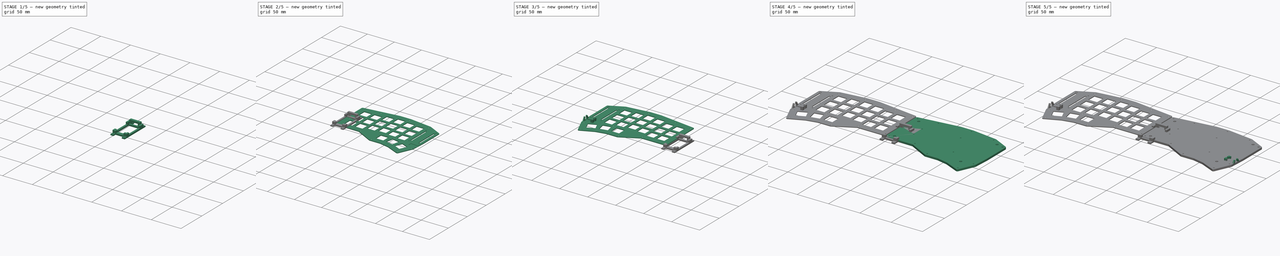
[diagram: build sequence overview — one tinted view per stage of 5, left to right]
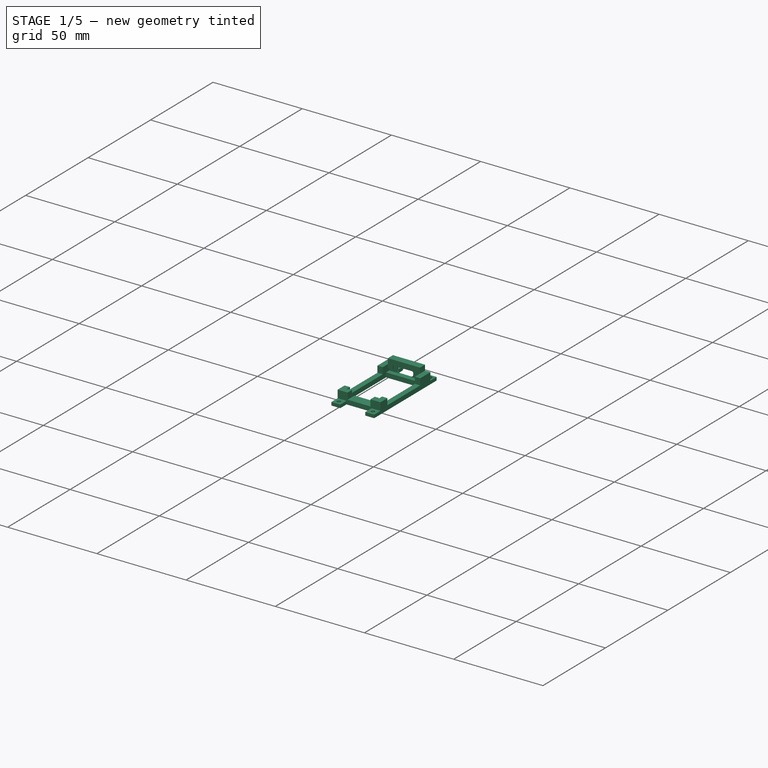
[diagram: stage 1 of 5 — iso view after this stage's code; geometry added in this stage tinted green]
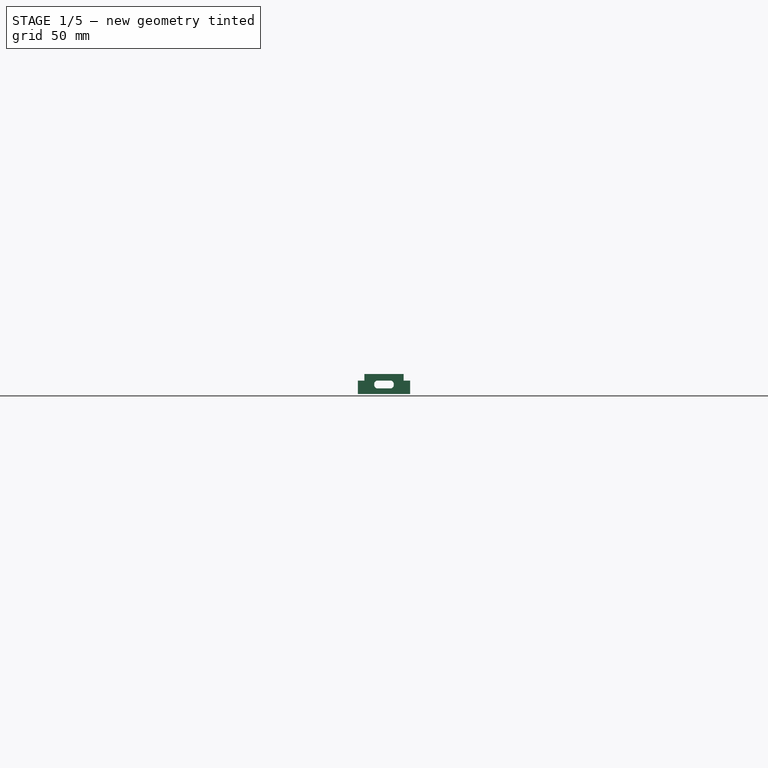
[diagram: stage 1 of 5 — front view after this stage's code; geometry added in this stage tinted green]
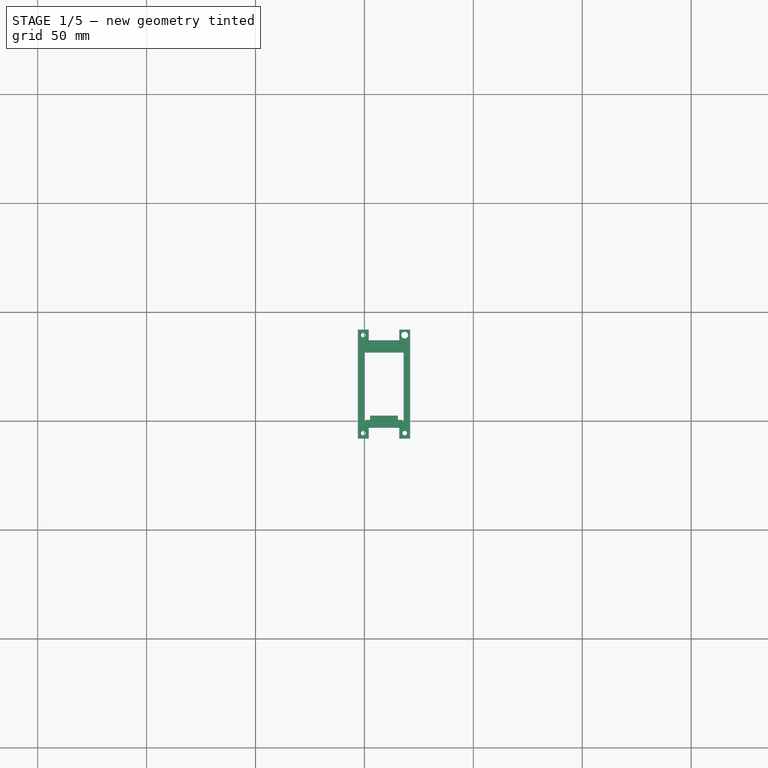
[diagram: stage 1 of 5 — top view after this stage's code; geometry added in this stage tinted green]
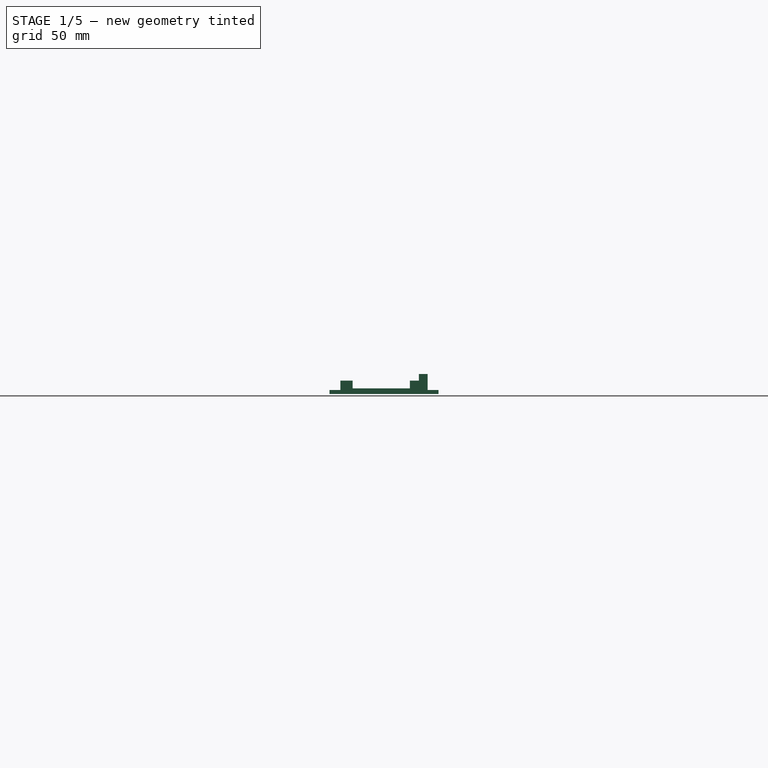
[diagram: stage 1 of 5 — right view after this stage's code; geometry added in this stage tinted green]
FCSTD DOCUMENT  (FreeCAD 1.0R39109 (Git))
Label: corne_clone
License: All rights reserved
LicenseURL: https://en.wikipedia.org/wiki/All_rights_reserved
objects: Sketcher::SketchObject×30, PartDesign::Pad×16, PartDesign::Pocket×14, PartDesign::Fillet×9, PartDesign::Body×6, PartDesign::Chamfer×4, App::VarSet×2, Part::Mirroring×1
note: 196 computed .brp shape members not serialized (recipe doc carries the construction recipe); baked Part::Feature solids carry a one-line shape summary decoded from their .brp

FEATURE [Sketcher::SketchObject] Sketch003
  ArcFitTolerance = 1e-06
  AttachmentSupport = -> [XY_Plane070]
  FullyConstrained = true
  MakeInternals = false
  MapMode = 5
  sketch-geometry (20):
    g0: LineSegment [constr] StartX=0 StartY=0 StartZ=0 EndX=18 EndY=0 EndZ=0
    g1: LineSegment [constr] StartX=18 StartY=0 StartZ=0 EndX=18 EndY=34 EndZ=0
    g2: LineSegment [constr] StartX=18 StartY=34 StartZ=0 EndX=0 EndY=34 EndZ=0
    g3: LineSegment [constr] StartX=0 StartY=34 StartZ=0 EndX=0 EndY=0 EndZ=0
    g4: LineSegment StartX=0 StartY=0 StartZ=0 EndX=2.6 EndY=0 EndZ=0
    g5: LineSegment StartX=2.6 StartY=0 StartZ=0 EndX=2.6 EndY=2.54 EndZ=0
    g6: LineSegment StartX=2.6 StartY=2.54 StartZ=0 EndX=15.4 EndY=2.54 EndZ=0
    g7: LineSegment StartX=15.4 StartY=2.54 StartZ=0 EndX=15.4 EndY=0 EndZ=0
    g8: LineSegment StartX=15.4 StartY=0 StartZ=0 EndX=18 EndY=0 EndZ=0
    g9: LineSegment StartX=18 StartY=31.46 StartZ=0 EndX=18 EndY=0 EndZ=0
    g10: LineSegment StartX=0 StartY=0 StartZ=0 EndX=0 EndY=31.46 EndZ=0
    g11: LineSegment StartX=-3 StartY=-3 StartZ=0 EndX=21 EndY=-3 EndZ=0
    g12: LineSegment StartX=21 StartY=-3 StartZ=0 EndX=21 EndY=37 EndZ=0
    g13: LineSegment StartX=-3 StartY=37 StartZ=0 EndX=-3 EndY=-3 EndZ=0
    g14: LineSegment StartX=-3 StartY=37 StartZ=0 EndX=4.5 EndY=37 EndZ=0
    g15: LineSegment StartX=4.5 StartY=37 StartZ=0 EndX=4.5 EndY=34.5 EndZ=0
    g16: LineSegment StartX=4.5 StartY=34.5 StartZ=0 EndX=13.5 EndY=34.5 EndZ=0
    g17: LineSegment StartX=13.5 StartY=34.5 StartZ=0 EndX=13.5 EndY=37 EndZ=0
    g18: LineSegment StartX=13.5 StartY=37 StartZ=0 EndX=21 EndY=37 EndZ=0
    g19: LineSegment StartX=0 StartY=31.46 StartZ=0 EndX=18 EndY=31.46 EndZ=0
  constraints (57):
    c: Coincident(g0,g1)
    c: Coincident(g1,g2)
    c: Coincident(g2,g3)
    c: Coincident(g3,g0)
    c: Horizontal(g0)
    c: Horizontal(g2)
    c: Vertical(g1)
    c: Vertical(g3)
    c: Coincident(g0,g-1)
    c: DistanceX(g0,g0) = 18
    c: DistanceY(g1,g1) = 34
    c: Coincident(g4,g0)
    c: PointOnObject(g4,g0)
    c: Coincident(g5,g4)
    c: Vertical(g5)
    c: Coincident(g6,g5)
    c: Horizontal(g6)
    c: Coincident(g7,g6)
    c: PointOnObject(g7,g0)
    c: Vertical(g7)
    c: Coincident(g8,g7)
    c: Coincident(g8,g0)
    c: PointOnObject(g10,g3)
    c: PointOnObject(g9,g1)
    c: Coincident(g9,g0)
    c: Coincident(g10,g0)
    c: Coincident(g11,g12)
    c: Coincident(g13,g11)
    c: Horizontal(g11)
    c: Vertical(g12)
    c: Vertical(g13)
    c: DistanceY(g5,g5) = 2.54
    c: DistanceX(g4,g4) = 2.6
    c: Equal(g4,g8)
    c: DistanceY(g10,g2) = 2.54
    c: Distance(g13,g10) = 3
    c: Distance(g12,g9) = 3
    c: Distance(g11,g8) = 3
    c: Coincident(g14,g13)
    c: Horizontal(g14)
    c: Coincident(g15,g14)
    c: Vertical(g15)
    c: Coincident(g16,g15)
    c: Horizontal(g16)
    c: Coincident(g17,g16)
    c: Vertical(g17)
    c: Coincident(g18,g17)
    c: Coincident(g18,g12)
    c: Horizontal(g18)
    c: Equal(g15,g17)
    c: Equal(g18,g14)
    c: DistanceX(g16,g16) = 9
    c: Distance(g2,g14) = 3
    c: Distance(g2,g16) = 0.5
    c: Coincident(g19,g10)
    c: Coincident(g19,g9)
    c: Horizontal(g19)
FEATURE [PartDesign::Pad] Pad002
  Direction = (0,0,1)
  Length = 2.54
  Length2 = 10
  Profile = -> Sketch003
  ReferenceAxis = -> Sketch003 [N_Axis]
  Refine = true
  Suppressed = false
  Type = 0
FEATURE [Sketcher::SketchObject] Sketch004
  ArcFitTolerance = 1e-06
  AttachmentSupport = -> [Pad002]
  ExternalGeometry = -> [Pad002]
  FullyConstrained = true
  MakeInternals = false
  MapMode = 5
  Placement = pos=(0,0,2.54) rot=(0,0,1;0rad)
  sketch-geometry (32):
    g0: LineSegment StartX=0 StartY=28.86 StartZ=0 EndX=-3 EndY=28.86 EndZ=0
    g1: LineSegment StartX=-3 StartY=37 StartZ=0 EndX=2.9 EndY=37 EndZ=0
    g2: LineSegment StartX=0 StartY=31.46 StartZ=0 EndX=0 EndY=28.86 EndZ=0
    g3: LineSegment StartX=-3 StartY=28.86 StartZ=0 EndX=-3 EndY=37 EndZ=0
    g4: LineSegment StartX=15.1 StartY=37 StartZ=0 EndX=21 EndY=37 EndZ=0
    g5: LineSegment StartX=18 StartY=28.86 StartZ=0 EndX=21 EndY=28.86 EndZ=0
    g6: LineSegment StartX=21 StartY=28.86 StartZ=0 EndX=21 EndY=37 EndZ=0
    g7: LineSegment StartX=18 StartY=28.86 StartZ=0 EndX=18 EndY=31.46 EndZ=0
    g8: LineSegment StartX=0 StartY=0 StartZ=0 EndX=2.6 EndY=0 EndZ=0
    g9: LineSegment StartX=2.6 StartY=0 StartZ=0 EndX=2.6 EndY=-3 EndZ=0
    g10: LineSegment StartX=0 StartY=0 StartZ=0 EndX=0 EndY=2.6 EndZ=0
    g11: LineSegment StartX=0 StartY=2.6 StartZ=0 EndX=-3 EndY=2.6 EndZ=0
    g12: LineSegment StartX=-3 StartY=2.6 StartZ=0 EndX=-3 EndY=-3 EndZ=0
    g13: LineSegment StartX=-3 StartY=-3 StartZ=0 EndX=2.6 EndY=-3 EndZ=0
    g14: LineSegment StartX=15.4 StartY=0 StartZ=0 EndX=15.4 EndY=-3 EndZ=0
    g15: LineSegment StartX=15.4 StartY=-3 StartZ=0 EndX=21 EndY=-3 EndZ=0
    g16: LineSegment StartX=21 StartY=-3 StartZ=0 EndX=21 EndY=2.6 EndZ=0
    g17: LineSegment StartX=21 StartY=2.6 StartZ=0 EndX=18 EndY=2.6 EndZ=0
    g18: LineSegment StartX=18 StartY=2.6 StartZ=0 EndX=18 EndY=0 EndZ=0
    g19: LineSegment StartX=18 StartY=0 StartZ=0 EndX=15.4 EndY=0 EndZ=0
    g20: LineSegment StartX=2.9 StartY=37 StartZ=0 EndX=2.9 EndY=34.5 EndZ=0
    g21: LineSegment StartX=2.9 StartY=34.5 StartZ=0 EndX=4.5 EndY=34.5 EndZ=0
    g22: LineSegment StartX=4.5 StartY=34.5 StartZ=0 EndX=4.5 EndY=34 EndZ=0
    g23: LineSegment StartX=15.1 StartY=37 StartZ=0 EndX=15.1 EndY=34.5 EndZ=0
    g24: LineSegment StartX=15.1 StartY=34.5 StartZ=0 EndX=13.5 EndY=34.5 EndZ=0
    g25: LineSegment StartX=13.5 StartY=34.5 StartZ=0 EndX=13.5 EndY=34 EndZ=0
    g26: LineSegment [constr] StartX=2.9 StartY=34.5 StartZ=0 EndX=2.9 EndY=31.46 EndZ=0
    g27: LineSegment [constr] StartX=15.1 StartY=34.5 StartZ=0 EndX=15.1 EndY=31.46 EndZ=0
    g28: LineSegment StartX=13.5 StartY=34 StartZ=0 EndX=18 EndY=34 EndZ=0
    g29: LineSegment StartX=18 StartY=34 StartZ=0 EndX=18 EndY=31.46 EndZ=0
    g30: LineSegment StartX=4.5 StartY=34 StartZ=0 EndX=0 EndY=34 EndZ=0
    g31: LineSegment StartX=0 StartY=34 StartZ=0 EndX=0 EndY=31.46 EndZ=0
  constraints (86):
    c: PointOnObject(g0,g-10)
    c: PointOnObject(g0,g-3)
    c: Horizontal(g0)
    c: PointOnObject(g1,g-3)
    c: Horizontal(g1)
    c: PointOnObject(g26,g-6)
    c: Coincident(g2,g0)
    c: Coincident(g3,g0)
    c: Coincident(g3,g1)
    c: PointOnObject(g27,g-6)
    c: PointOnObject(g4,g-5)
    c: Horizontal(g4)
    c: PointOnObject(g5,g-7)
    c: PointOnObject(g5,g-5)
    c: Horizontal(g5)
    c: Coincident(g6,g5)
    c: Coincident(g6,g4)
    c: Coincident(g7,g5)
    c: Coincident(g7,g-7)
    c: Coincident(g8,g-1)
    c: Coincident(g8,g-9)
    c: Coincident(g9,g8)
    c: PointOnObject(g9,g-4)
    c: Vertical(g9)
    c: Coincident(g10,g8)
    c: PointOnObject(g10,g-10)
    c: Coincident(g11,g10)
    c: PointOnObject(g11,g-3)
    c: Horizontal(g11)
    c: Coincident(g12,g11)
    c: Coincident(g12,g-4)
    c: Coincident(g13,g12)
    c: Coincident(g13,g9)
    c: Coincident(g14,g-8)
    c: PointOnObject(g14,g-4)
    c: Vertical(g14)
    c: Coincident(g15,g14)
    c: Coincident(g15,g-5)
    c: Coincident(g16,g15)
    c: PointOnObject(g16,g-5)
    c: Coincident(g17,g16)
    c: PointOnObject(g17,g-7)
    c: Horizontal(g17)
    c: Coincident(g18,g17)
    c: Coincident(g18,g-7)
    c: Coincident(g19,g18)
    c: Coincident(g19,g14)
    c: Equal(g8,g10)
    c: Equal(g10,g2)
    c: Equal(g19,g18)
    c: Equal(g18,g7)
    c: PointOnObject(g1,g-11)
    c: PointOnObject(g4,g-12)
    c: Coincident(g20,g1)
    c: Vertical(g20)
    c: Coincident(g21,g20)
    c: Coincident(g21,g-13)
    c: Coincident(g22,g21)
    c: Vertical(g22)
    c: Coincident(g23,g4)
    c: Vertical(g23)
    c: Coincident(g24,g23)
    c: Coincident(g24,g-13)
    c: Coincident(g25,g24)
    c: Vertical(g25)
    c: Horizontal(g21)
    c: Horizontal(g24)
    c: Coincident(g26,g20)
    c: Vertical(g26)
    c: Coincident(g27,g23)
    c: Vertical(g27)
    c: DistanceY(g22,g22) = 0.5
    c: DistanceY(g25,g24) = 0.5
    c: Coincident(g28,g25)
    c: Horizontal(g28)
    c: Coincident(g29,g28)
    c: Coincident(g29,g7)
    c: Vertical(g29)
    c: Coincident(g30,g22)
    c: PointOnObject(g30,g-2)
    c: Horizontal(g30)
    c: Coincident(g31,g30)
    c: Coincident(g31,g2)
    c: Coincident(g2,g-10)
    c: DistanceX(g24,g24) = 1.6
    c: DistanceX(g21,g21) = 1.6
FEATURE [PartDesign::Pad] Pad003
  BaseFeature = -> Pad002
  Direction = (0,0,1)
  Length = 1.6
  Length2 = 10
  Profile = -> Sketch004
  ReferenceAxis = -> Sketch004 [N_Axis]
  Refine = true
  Suppressed = false
  Type = 0
FEATURE [Sketcher::SketchObject] Sketch005
  ArcFitTolerance = 1e-06
  AttachmentSupport = -> [Pad003]
  ExternalGeometry = -> [Pad003]
  FullyConstrained = true
  MakeInternals = false
  MapMode = 5
  Placement = pos=(0,37,0) rot=(0,0.707107,0.707107;3.14159rad)
  sketch-geometry (4):
    g0: LineSegment StartX=-13.5 StartY=0.94 StartZ=0 EndX=-4.5 EndY=0.94 EndZ=0
    g1: ArcOfCircle CenterX=-13.5 CenterY=2.54 CenterZ=0 NormalX=0 NormalY=0 NormalZ=1 AngleXU=0 Radius=1.6 StartAngle=3.14159 EndAngle=4.71239
    g2: ArcOfCircle CenterX=-4.5 CenterY=2.54 CenterZ=0 NormalX=0 NormalY=0 NormalZ=1 AngleXU=0 Radius=1.6 StartAngle=4.71239 EndAngle=6.28319
    g3: LineSegment StartX=-15.1 StartY=2.54 StartZ=0 EndX=-2.9 EndY=2.54 EndZ=0
  constraints (10):
    c: PointOnObject(g0,g-4)
    c: PointOnObject(g0,g-6)
    c: Coincident(g1,g0)
    c: Coincident(g2,g0)
    c: Coincident(g3,g1)
    c: Coincident(g3,g2)
    c: Coincident(g1,g-3)
    c: Coincident(g2,g-5)
    c: Coincident(g1,g-4)
    c: Coincident(g2,g-6)
FEATURE [PartDesign::Pocket] Pocket001
  BaseFeature = -> Pad003
  Direction = (0,-1,2e-16)
  Length = 1.5
  Length2 = 5
  Profile = -> Sketch005
  ReferenceAxis = -> Sketch005 [N_Axis]
  Refine = true
  Suppressed = false
  Type = 2
  UpToShape = -> [Pad003]
FEATURE [Sketcher::SketchObject] Sketch006
  ArcFitTolerance = 1e-06
  AttachmentSupport = -> [Pocket001]
  ExternalGeometry = -> [Pocket001]
  FullyConstrained = true
  MakeInternals = false
  MapMode = 5
  Placement = pos=(0,0,4.14) rot=(0,0,1;0rad)
  sketch-geometry (39):
    g0: LineSegment StartX=-3 StartY=2.6 StartZ=0 EndX=-3 EndY=-3 EndZ=0
    g1: LineSegment StartX=-3 StartY=-3 StartZ=0 EndX=2.6 EndY=-3 EndZ=0
    g2: LineSegment StartX=2.6 StartY=-3 StartZ=0 EndX=2.6 EndY=0 EndZ=0
    g3: LineSegment StartX=-3 StartY=2.6 StartZ=0 EndX=0 EndY=2.6 EndZ=0
    g4: LineSegment StartX=15.4 StartY=0 StartZ=0 EndX=15.4 EndY=-3 EndZ=0
    g5: LineSegment StartX=15.4 StartY=-3 StartZ=0 EndX=21 EndY=-3 EndZ=0
    g6: LineSegment StartX=21 StartY=-3 StartZ=0 EndX=21 EndY=2.6 EndZ=0
    g7: LineSegment StartX=21 StartY=2.6 StartZ=0 EndX=18 EndY=2.6 EndZ=0
    g8: LineSegment StartX=-3 StartY=37 StartZ=0 EndX=-3 EndY=28.86 EndZ=0
    g9: LineSegment StartX=21 StartY=28.86 StartZ=0 EndX=21 EndY=37 EndZ=0
    g10: LineSegment StartX=18 StartY=28.86 StartZ=0 EndX=21 EndY=28.86 EndZ=0
    g11: LineSegment StartX=0 StartY=28.86 StartZ=0 EndX=-3 EndY=28.86 EndZ=0
    g12: LineSegment [constr] StartX=0 StartY=28.86 StartZ=0 EndX=18 EndY=28.86 EndZ=0
    g13: LineSegment StartX=0 StartY=2.6 StartZ=0 EndX=0 EndY=0 EndZ=0
    g14: LineSegment StartX=0 StartY=0 StartZ=0 EndX=0.5 EndY=0 EndZ=0
    g15: LineSegment StartX=0.5 StartY=0 StartZ=0 EndX=0.5 EndY=0.5 EndZ=0
    g16: LineSegment StartX=0.5 StartY=0.5 StartZ=0 EndX=2.6 EndY=0.5 EndZ=0
    g17: LineSegment StartX=2.6 StartY=0.5 StartZ=0 EndX=2.6 EndY=0 EndZ=0
    g18: LineSegment StartX=15.4 StartY=0 StartZ=0 EndX=15.4 EndY=0.5 EndZ=0
    g19: LineSegment StartX=15.4 StartY=0.5 StartZ=0 EndX=17.5 EndY=0.5 EndZ=0
    g20: LineSegment StartX=17.5 StartY=0.5 StartZ=0 EndX=17.5 EndY=0 EndZ=0
    g21: LineSegment StartX=17.5 StartY=0 StartZ=0 EndX=18 EndY=0 EndZ=0
    g22: LineSegment StartX=18 StartY=0 StartZ=0 EndX=18 EndY=2.6 EndZ=0
    g23: LineSegment StartX=0 StartY=28.86 StartZ=0 EndX=0 EndY=33 EndZ=0
    g24: LineSegment StartX=0 StartY=33 StartZ=0 EndX=2.54 EndY=33 EndZ=0
    g25: LineSegment StartX=2.54 StartY=33 StartZ=0 EndX=2.54 EndY=34 EndZ=0
    g26: LineSegment StartX=15.46 StartY=34 StartZ=0 EndX=15.46 EndY=33 EndZ=0
    g27: LineSegment StartX=15.46 StartY=33 StartZ=0 EndX=18 EndY=33 EndZ=0
    g28: LineSegment StartX=18 StartY=33 StartZ=0 EndX=18 EndY=28.86 EndZ=0
    g29: LineSegment StartX=-3 StartY=37 StartZ=0 EndX=2.9 EndY=37 EndZ=0
    g30: LineSegment StartX=2.9 StartY=37 StartZ=0 EndX=2.9 EndY=34.5 EndZ=0
    g31: LineSegment StartX=15.1 StartY=34.5 StartZ=0 EndX=15.1 EndY=37 EndZ=0
    g32: LineSegment StartX=15.1 StartY=37 StartZ=0 EndX=21 EndY=37 EndZ=0
    g33: LineSegment StartX=2.54 StartY=34 StartZ=0 EndX=4.5 EndY=34 EndZ=0
    g34: LineSegment StartX=4.5 StartY=34 StartZ=0 EndX=4.5 EndY=34.5 EndZ=0
    g35: LineSegment StartX=4.5 StartY=34.5 StartZ=0 EndX=2.9 EndY=34.5 EndZ=0
    g36: LineSegment StartX=15.46 StartY=34 StartZ=0 EndX=13.5 EndY=34 EndZ=0
    g37: LineSegment StartX=13.5 StartY=34 StartZ=0 EndX=13.5 EndY=34.5 EndZ=0
    g38: LineSegment StartX=13.5 StartY=34.5 StartZ=0 EndX=15.1 EndY=34.5 EndZ=0
  constraints (96):
    c: Coincident(g0,g-3)
    c: Coincident(g0,g-5)
    c: Coincident(g1,g0)
    c: Coincident(g1,g-4)
    c: Coincident(g2,g1)
    c: Coincident(g2,g-4)
    c: Coincident(g3,g0)
    c: Horizontal(g3)
    c: Coincident(g4,g-7)
    c: Coincident(g5,g4)
    c: Coincident(g5,g-6)
    c: Coincident(g6,g5)
    c: Coincident(g6,g-8)
    c: Coincident(g7,g6)
    c: Vertical(g8)
    c: Vertical(g9)
    c: Coincident(g8,g-12)
    c: Coincident(g10,g-9)
    c: Coincident(g10,g9)
    c: Horizontal(g10)
    c: Coincident(g11,g-11)
    c: Coincident(g11,g8)
    c: Horizontal(g11)
    c: Coincident(g12,g11)
    c: Coincident(g12,g10)
    c: Coincident(g9,g-10)
    c: Coincident(g13,g3)
    c: Coincident(g13,g-1)
    c: Vertical(g13)
    c: Coincident(g14,g13)
    c: Horizontal(g14)
    c: Coincident(g15,g14)
    c: Vertical(g15)
    c: Coincident(g16,g15)
    c: Horizontal(g16)
    c: Coincident(g17,g16)
    c: Coincident(g17,g2)
    c: Vertical(g17)
    c: Equal(g15,g14)
    c: DistanceY(g17,g17) = 0.5
    c: Coincident(g18,g4)
    c: Vertical(g18)
    c: Coincident(g19,g18)
    c: Horizontal(g19)
    c: Coincident(g20,g19)
    c: PointOnObject(g20,g-1)
    c: Vertical(g20)
    c: Coincident(g21,g20)
    c: PointOnObject(g21,g-1)
    c: Coincident(g22,g21)
    c: Coincident(g22,g7)
    c: Vertical(g22)
    c: Coincident(g7,g-8)
    c: Equal(g20,g21)
    c: DistanceY(g18,g18) = 0.5
    c: Coincident(g4,g-7)
    c: Coincident(g23,g11)
    c: PointOnObject(g23,g-2)
    c: Coincident(g24,g23)
    c: Horizontal(g24)
    c: Coincident(g25,g24)
    c: Vertical(g26)
    c: Coincident(g27,g26)
    c: Horizontal(g27)
    c: Coincident(g28,g27)
    c: Coincident(g28,g10)
    c: Vertical(g28)
    c: Vertical(g25)
    c: Equal(g25,g26)
    c: DistanceY(g25,g25) = 1
    c: Coincident(g29,g8)
    c: Coincident(g29,g-17)
    c: Coincident(g30,g29)
    c: Coincident(g30,g-19)
    c: Coincident(g31,g-18)
    c: Coincident(g32,g31)
    c: Coincident(g32,g9)
    c: Coincident(g33,g25)
    c: Coincident(g33,g-15)
    c: Horizontal(g33)
    c: Coincident(g34,g33)
    c: Vertical(g34)
    c: Coincident(g35,g34)
    c: Coincident(g35,g30)
    c: Horizontal(g35)
    c: Coincident(g36,g26)
    c: Coincident(g36,g-16)
    c: Horizontal(g36)
    c: Coincident(g37,g36)
    c: Vertical(g37)
    c: Coincident(g38,g37)
    c: Coincident(g38,g31)
    c: Horizontal(g38)
    c: Coincident(g31,g-20)
    c: DistanceX(g24,g24) = 2.54
    c: Equal(g24,g27)
FEATURE [PartDesign::Pad] Pad004
  BaseFeature = -> Pocket001
  Direction = (0,0,1)
  Length = 2
  Length2 = 10
  Profile = -> Sketch006
  ReferenceAxis = -> Sketch006 [N_Axis]
  Refine = true
  Suppressed = false
  Type = 0
FEATURE [PartDesign::Fillet] Fillet002
  Base = -> Pad004 [Edge28,Edge105]
  BaseFeature = -> Pad004
  Radius = 0.4
  Refine = true
  SupportTransform = false
  Suppressed = false
  UseAllEdges = false
FEATURE [Sketcher::SketchObject] Sketch007
  ArcFitTolerance = 1e-06
  AttachmentSupport = -> [Fillet002]
  ExternalGeometry = -> [Fillet002]
  FullyConstrained = true
  MakeInternals = false
  MapMode = 5
  Placement = pos=(0,0,6.14) rot=(0,0,1;0rad)
  sketch-geometry (4):
    g0: LineSegment StartX=0 StartY=37 StartZ=0 EndX=0 EndY=33 EndZ=0
    g1: LineSegment StartX=18 StartY=33 StartZ=0 EndX=18 EndY=37 EndZ=0
    g2: LineSegment StartX=18 StartY=37 StartZ=0 EndX=0 EndY=37 EndZ=0
    g3: LineSegment StartX=0 StartY=33 StartZ=0 EndX=18 EndY=33 EndZ=0
  constraints (12):
    c: Coincident(g1,g2)
    c: Coincident(g2,g0)
    c: Vertical(g0)
    c: Vertical(g1)
    c: Horizontal(g2)
    c: PointOnObject(g0,g-6)
    c: PointOnObject(g-3,g0)
    c: PointOnObject(g-4,g1)
    c: PointOnObject(g0,g-3)
    c: PointOnObject(g1,g-4)
    c: Coincident(g3,g0)
    c: Coincident(g3,g1)
FEATURE [PartDesign::Pad] Pad005
  BaseFeature = -> Fillet002
  Direction = (0,0,1)
  Length = 3
  Length2 = 10
  Profile = -> Sketch007
  ReferenceAxis = -> Sketch007 [N_Axis]
  Refine = true
  Suppressed = false
  Type = 0
FEATURE [Sketcher::SketchObject] Sketch008
  ArcFitTolerance = 1e-06
  AttachmentSupport = -> [Pad005]
  ExternalGeometry = -> [Pad005]
  FullyConstrained = true
  MakeInternals = false
  MapMode = 5
  Placement = pos=(0,37,0) rot=(0,0.707107,0.707107;3.14159rad)
  sketch-geometry (5):
    g0: ArcOfCircle CenterX=-13.5 CenterY=6.14 CenterZ=0 NormalX=0 NormalY=0 NormalZ=1 AngleXU=0 Radius=1.6 StartAngle=1.5708 EndAngle=3.14159
    g1: ArcOfCircle CenterX=-4.5 CenterY=6.14 CenterZ=0 NormalX=0 NormalY=0 NormalZ=1 AngleXU=0 Radius=1.6 StartAngle=2.8e-15 EndAngle=1.5708
    g2: LineSegment StartX=-13.5 StartY=7.74 StartZ=0 EndX=-4.5 EndY=7.74 EndZ=0
    g3: LineSegment StartX=-15.1 StartY=6.14 StartZ=0 EndX=-2.9 EndY=6.14 EndZ=0
    g4: LineSegment [constr] StartX=-13.5 StartY=7.74 StartZ=0 EndX=-13.5 EndY=6.14 EndZ=0
  constraints (12):
    c: Coincident(g0,g-3)
    c: Coincident(g1,g-3)
    c: Coincident(g2,g0)
    c: Coincident(g2,g1)
    c: Coincident(g3,g0)
    c: Coincident(g3,g1)
    c: Horizontal(g2)
    c: Coincident(g1,g-5)
    c: Coincident(g0,g-4)
    c: Coincident(g4,g0)
    c: Coincident(g4,g0)
    c: Vertical(g4)
FEATURE [PartDesign::Pocket] Pocket002
  BaseFeature = -> Pad005
  Direction = (0,-1,2e-16)
  Length = 0
  Length2 = 5
  Profile = -> Sketch008
  ReferenceAxis = -> Sketch008 [N_Axis]
  Refine = true
  Suppressed = false
  Type = 3
  UpToFace = -> Pad005 [Face25]
FEATURE [PartDesign::Fillet] Fillet003
  Base = -> Pocket002 [Edge68,Edge136,Edge138,Edge70]
  BaseFeature = -> Pocket002
  Radius = 1.58
  Refine = true
  SupportTransform = false
  Suppressed = false
  UseAllEdges = false
FEATURE [Sketcher::SketchObject] Sketch009
  ArcFitTolerance = 1e-06
  AttachmentSupport = -> [Fillet003]
  ExternalGeometry = -> [Fillet003]
  FullyConstrained = true
  MakeInternals = false
  MapMode = 5
  Placement = pos=(0,0,0) rot=(1,0,0;3.14159rad)
  sketch-geometry (28):
    g0: LineSegment StartX=-3 StartY=3 StartZ=0 EndX=-3 EndY=8 EndZ=0
    g1: LineSegment StartX=-3 StartY=8 StartZ=0 EndX=2 EndY=8 EndZ=0
    g2: LineSegment StartX=2 StartY=8 StartZ=0 EndX=2 EndY=3 EndZ=0
    g3: LineSegment StartX=2 StartY=3 StartZ=0 EndX=-3 EndY=3 EndZ=0
    g4: LineSegment StartX=21 StartY=3 StartZ=0 EndX=21 EndY=8 EndZ=0
    g5: LineSegment StartX=21 StartY=8 StartZ=0 EndX=16 EndY=8 EndZ=0
    g6: LineSegment StartX=16 StartY=8 StartZ=0 EndX=16 EndY=3 EndZ=0
    g7: LineSegment StartX=16 StartY=3 StartZ=0 EndX=21 EndY=3 EndZ=0
    g8: LineSegment StartX=-3 StartY=-37 StartZ=0 EndX=-3 EndY=-42 EndZ=0
    g9: LineSegment StartX=-3 StartY=-42 StartZ=0 EndX=2 EndY=-42 EndZ=0
    g10: LineSegment StartX=2 StartY=-42 StartZ=0 EndX=2 EndY=-37 EndZ=0
    g11: LineSegment StartX=2 StartY=-37 StartZ=0 EndX=-3 EndY=-37 EndZ=0
    g12: LineSegment StartX=21 StartY=-37 StartZ=0 EndX=16 EndY=-37 EndZ=0
    g13: LineSegment StartX=16 StartY=-37 StartZ=0 EndX=16 EndY=-42 EndZ=0
    g14: LineSegment StartX=16 StartY=-42 StartZ=0 EndX=21 EndY=-42 EndZ=0
    g15: LineSegment StartX=21 StartY=-42 StartZ=0 EndX=21 EndY=-37 EndZ=0
    g16: LineSegment [constr] StartX=-3 StartY=8 StartZ=0 EndX=2 EndY=3 EndZ=0
    g17: LineSegment [constr] StartX=2 StartY=8 StartZ=0 EndX=-3 EndY=3 EndZ=0
    g18: LineSegment [constr] StartX=16 StartY=8 StartZ=0 EndX=21 EndY=3 EndZ=0
    g19: LineSegment [constr] StartX=16 StartY=3 StartZ=0 EndX=21 EndY=8 EndZ=0
    g20: LineSegment [constr] StartX=-3 StartY=-37 StartZ=0 EndX=2 EndY=-42 EndZ=0
    g21: LineSegment [constr] StartX=-3 StartY=-42 StartZ=0 EndX=2 EndY=-37 EndZ=0
    g22: LineSegment [constr] StartX=16 StartY=-37 StartZ=0 EndX=21 EndY=-42 EndZ=0
    g23: LineSegment [constr] StartX=16 StartY=-42 StartZ=0 EndX=21 EndY=-37 EndZ=0
    g24: Circle CenterX=-0.5 CenterY=5.5 CenterZ=0 NormalX=0 NormalY=0 NormalZ=1 AngleXU=0 Radius=1.05
    g25: Circle CenterX=18.5 CenterY=5.5 CenterZ=0 NormalX=0 NormalY=0 NormalZ=1 AngleXU=0 Radius=1.05
    g26: Circle CenterX=18.5 CenterY=-39.5 CenterZ=0 NormalX=0 NormalY=0 NormalZ=1 AngleXU=0 Radius=1.55
    g27: Circle CenterX=-0.5 CenterY=-39.5 CenterZ=0 NormalX=0 NormalY=0 NormalZ=1 AngleXU=0 Radius=1.05
  constraints (72):
    c: Coincident(g0,g-3)
    c: Vertical(g0)
    c: Coincident(g1,g0)
    c: Horizontal(g1)
    c: Coincident(g2,g1)
    c: Vertical(g2)
    c: Coincident(g3,g2)
    c: Coincident(g3,g0)
    c: Horizontal(g3)
    c: Coincident(g4,g5)
    c: Coincident(g5,g6)
    c: Coincident(g6,g7)
    c: Coincident(g7,g4)
    c: Vertical(g4)
    c: Vertical(g6)
    c: Horizontal(g5)
    c: Horizontal(g7)
    c: Coincident(g4,g-4)
    c: Coincident(g8,g9)
    c: Coincident(g9,g10)
    c: Coincident(g10,g11)
    c: Coincident(g11,g8)
    c: Vertical(g8)
    c: Vertical(g10)
    c: Horizontal(g9)
    c: Horizontal(g11)
    c: Coincident(g8,g-3)
    c: Coincident(g12,g13)
    c: Coincident(g13,g14)
    c: Coincident(g14,g15)
    c: Coincident(g15,g12)
    c: Horizontal(g12)
    c: Horizontal(g14)
    c: Vertical(g13)
    c: Vertical(g15)
    c: Coincident(g12,g-4)
    c: Equal(g8,g9)
    c: Equal(g11,g3)
    c: Equal(g3,g2)
    c: Equal(g0,g6)
    c: Equal(g6,g5)
    c: Equal(g5,g15)
    c: Equal(g15,g14)
    c: Coincident(g16,g0)
    c: Coincident(g16,g2)
    c: Coincident(g17,g1)
    c: Coincident(g17,g0)
    c: Coincident(g18,g5)
    c: Coincident(g18,g4)
    c: Coincident(g19,g6)
    c: Coincident(g19,g4)
    c: Coincident(g20,g8)
    c: Coincident(g20,g9)
    c: Coincident(g21,g8)
    c: Coincident(g21,g10)
    c: Coincident(g22,g12)
    c: Coincident(g22,g14)
    c: Coincident(g23,g13)
    c: Coincident(g23,g12)
    c: PointOnObject(g24,g16)
    c: PointOnObject(g25,g18)
    c: PointOnObject(g26,g22)
    c: PointOnObject(g27,g20)
    c: PointOnObject(g27,g21)
    c: PointOnObject(g26,g23)
    c: PointOnObject(g25,g19)
    c: PointOnObject(g24,g17)
    c: Equal(g24,g25)
    c: Diameter(g24) = 2.1
    c: DistanceY(g2,g2) = 5
    c: Equal(g27,g24)
    c: Diameter(g26) = 3.1
FEATURE [PartDesign::Pad] Pad006
  BaseFeature = -> Fillet003
  Direction = (0,0,-1)
  Length = 1.8
  Length2 = 10
  Profile = -> Sketch009
  ReferenceAxis = -> Sketch009 [N_Axis]
  Refine = true
  Reversed = true
  Suppressed = false
  Type = 0
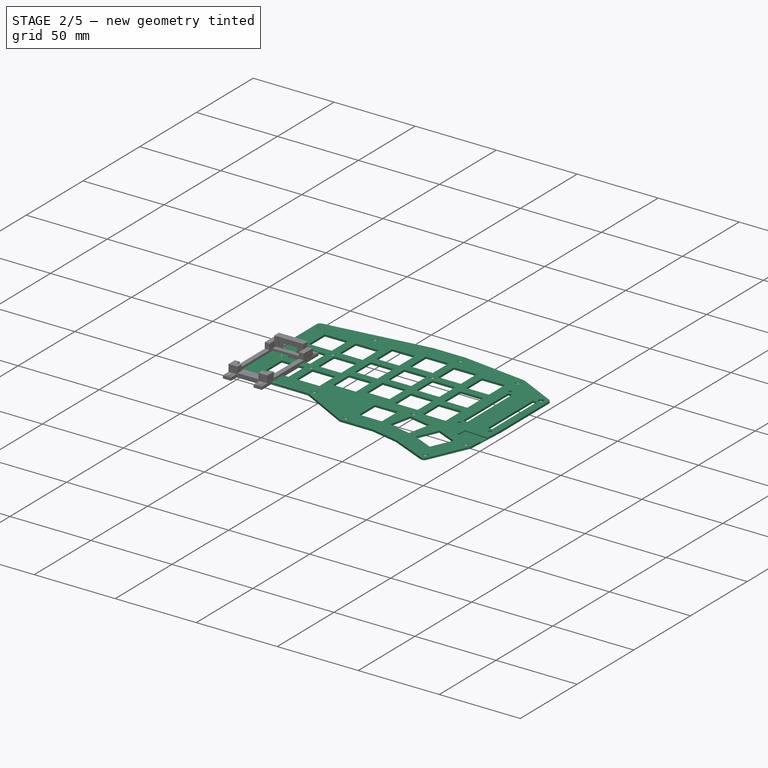
[diagram: stage 2 of 5 — iso view after this stage's code; geometry added in this stage tinted green]
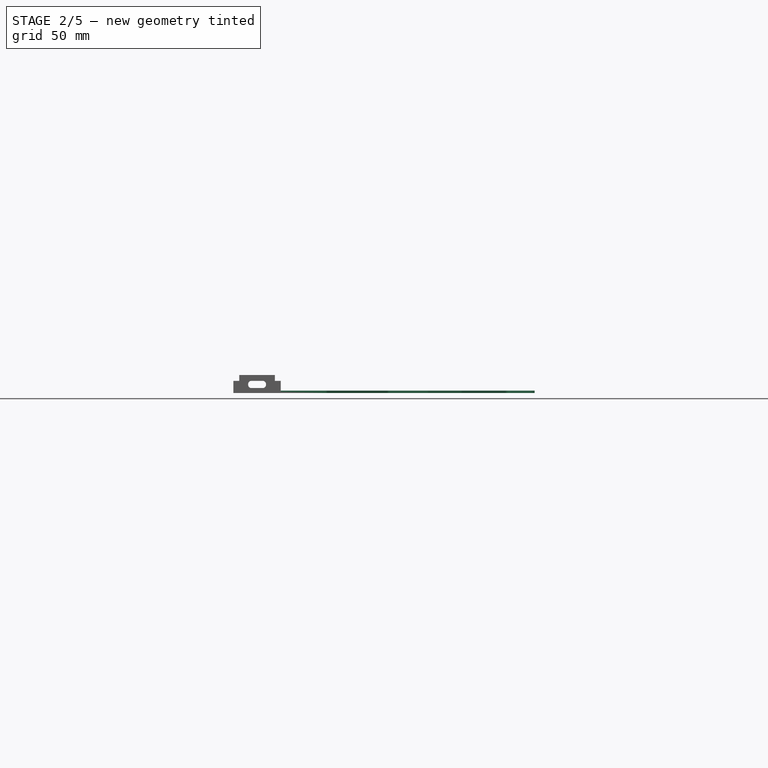
[diagram: stage 2 of 5 — front view after this stage's code; geometry added in this stage tinted green]
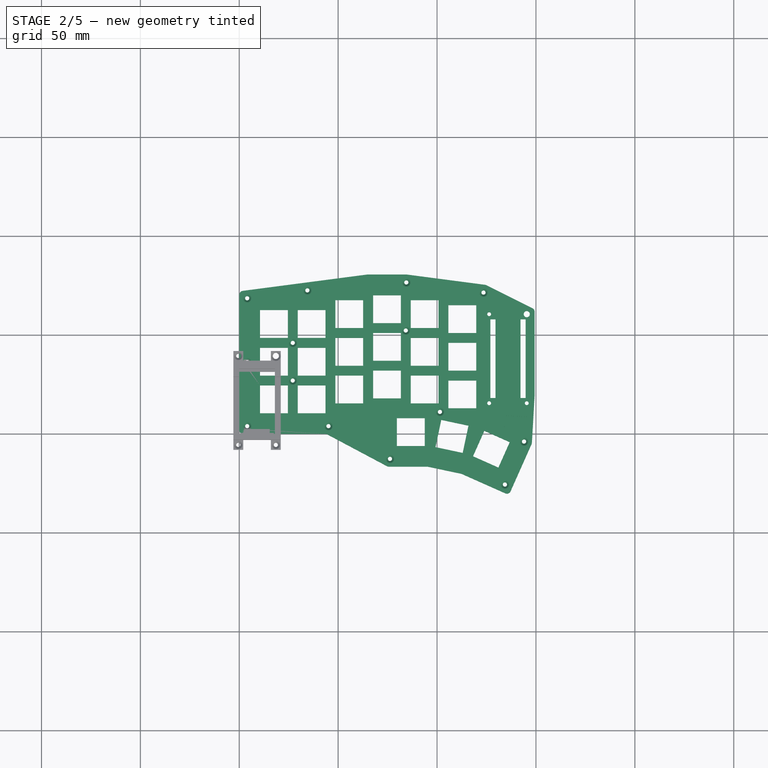
[diagram: stage 2 of 5 — top view after this stage's code; geometry added in this stage tinted green]
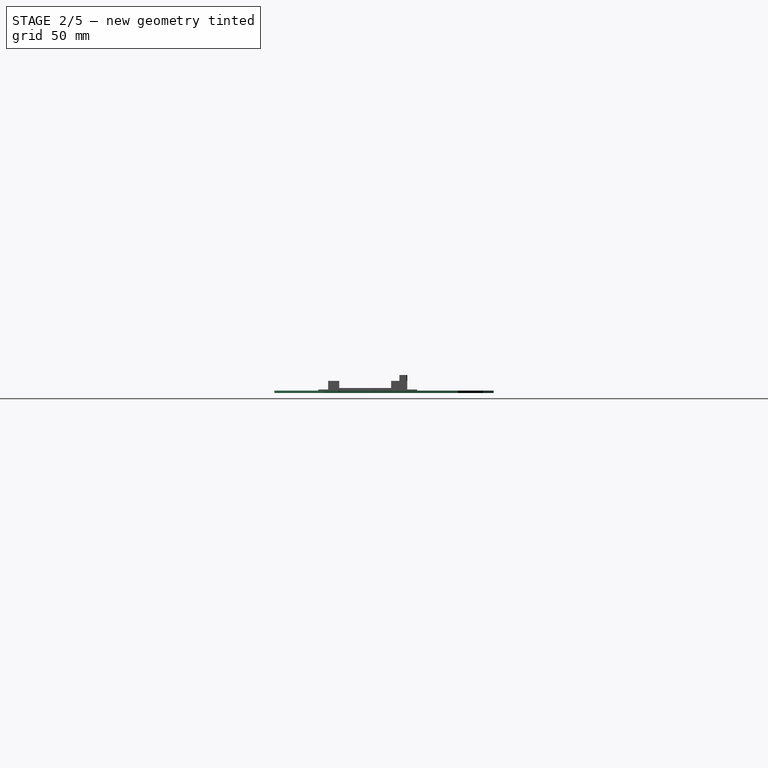
[diagram: stage 2 of 5 — right view after this stage's code; geometry added in this stage tinted green]
FEATURE [PartDesign::Chamfer] Chamfer001
  Angle = 45
  Base = -> Pad006 [Edge218,Edge196,Edge202]
  BaseFeature = -> Pad006
  ChamferType = 0
  FlipDirection = false
  Refine = true
  Size = 1
  Size2 = 1
  SupportTransform = false
  Suppressed = false
  UseAllEdges = false
FEATURE [PartDesign::Body] Body  label="LeftPlate"
  AllowCompound = false
  Group = -> [Sketch,Pad,Fillet,Sketch002,Pocket,Chamfer,Sketch010,Pocket003,Sketch011,Pocket004,Sketch012,Pocket005,Sketch013,Pad007,Fillet004,Fillet005,Sketch014,Pad008,Sketch015,Pad009]
  Origin = -> Origin
  Placement = pos=(0,0,3) rot=(0,0,1;0rad)
  Tip = -> Pad009
FEATURE [PartDesign::Chamfer] Chamfer002
  Angle = 45
  Base = -> Chamfer001 [Edge174]
  BaseFeature = -> Chamfer001
  ChamferType = 0
  FlipDirection = false
  Refine = true
  Size = 0.95
  Size2 = 1
  SupportTransform = false
  Suppressed = false
  UseAllEdges = false
FEATURE [PartDesign::Body] Body004  label="3mmWasher"
  AllowCompound = false
  Group = -> [Sketch020,Pad011]
  Origin = -> Origin072
  Tip = -> Pad011
FEATURE [Sketcher::SketchObject] Sketch021
  ArcFitTolerance = 1e-06
  AttachmentSupport = -> [XY_Plane073]
  FullyConstrained = true
  MakeInternals = false
  MapMode = 5
  expr: Constraints[25] = VarSet001.Kerf
  expr: Constraints[26] = VarSet001.HoleWidth
  expr: Constraints[52] = VarSet001.Kerf
  expr: Constraints[53] = VarSet001.HoleWidth
  expr: Constraints[551] = VarSet001.BigStagger
  expr: Constraints[552] = VarSet001.SmallStagger
  expr: Constraints[553] = VarSet001.SmallStagger
  expr: Constraints[554] = VarSet001.SmallStagger
  expr: Constraints[674] = VarSet001.ThumbAngle
  expr: Constraints[675] = VarSet001.ThumbAngle
  expr: Constraints[678] = VarSet001.Padding
  expr: Constraints[688] = VarSet001.Padding
  expr: Constraints[691] = VarSet001.Padding
  expr: Constraints[700] = VarSet001.Padding
  expr: Constraints[701] = VarSet001.Padding
  expr: Constraints[719] = VarSet001.Padding
  expr: Constraints[720] = VarSet001.Padding
  expr: Constraints[721] = VarSet001.Padding
  expr: Constraints[722] = VarSet001.Padding
  expr: Constraints[723] = VarSet001.Padding
  expr: Constraints[724] = VarSet001.Padding
  expr: Constraints[725] = VarSet001.Padding
  expr: Constraints[726] = VarSet001.Padding
  expr: Constraints[727] = VarSet001.ThumbOffset
  sketch-geometry (273):
    g0: LineSegment [constr] StartX=114.884 StartY=-12.5107 StartZ=0 EndX=122.632 EndY=4.89232 EndZ=0
    g1: LineSegment [constr] StartX=122.632 StartY=4.89232 StartZ=0 EndX=140.035 EndY=-2.85601 EndZ=0
    g2: LineSegment [constr] StartX=140.035 StartY=-2.85601 StartZ=0 EndX=132.287 EndY=-20.2591 EndZ=0
    g3: LineSegment [constr] StartX=132.287 StartY=-20.2591 StartZ=0 EndX=114.884 EndY=-12.5107 EndZ=0
    g4: LineSegment StartX=118.184 StartY=-11.2437 StartZ=0 EndX=123.899 EndY=1.59162 EndZ=0
    g5: LineSegment StartX=123.899 StartY=1.59162 StartZ=0 EndX=136.734 EndY=-4.12303 EndZ=0
    g6: LineSegment StartX=136.734 StartY=-4.12303 StartZ=0 EndX=131.02 EndY=-16.9583 EndZ=0
    g7: LineSegment StartX=131.02 StartY=-16.9583 StartZ=0 EndX=118.184 EndY=-11.2437 EndZ=0
    g8: LineSegment [constr] StartX=122.632 StartY=4.89232 StartZ=0 EndX=132.287 EndY=-20.2591 EndZ=0
    g9: LineSegment [constr] StartX=114.884 StartY=-12.5107 StartZ=0 EndX=140.035 EndY=-2.85601 EndZ=0
    g10: GeomPoint [constr] X=127.459 Y=-7.68336 Z=0
    g11: LineSegment [constr] StartX=8 StartY=8 StartZ=0 EndX=8 EndY=27.05 EndZ=0
    g12: LineSegment [constr] StartX=8 StartY=27.05 StartZ=0 EndX=27.05 EndY=27.05 EndZ=0
    g13: LineSegment [constr] StartX=27.05 StartY=27.05 StartZ=0 EndX=27.05 EndY=8 EndZ=0
    g14: LineSegment [constr] StartX=27.05 StartY=8 StartZ=0 EndX=8 EndY=8 EndZ=0
    g15: LineSegment StartX=10.5 StartY=10.5 StartZ=0 EndX=10.5 EndY=24.55 EndZ=0
    g16: LineSegment StartX=10.5 StartY=24.55 StartZ=0 EndX=24.55 EndY=24.55 EndZ=0
    g17: LineSegment StartX=24.55 StartY=24.55 StartZ=0 EndX=24.55 EndY=10.5 EndZ=0
    g18: LineSegment StartX=24.55 StartY=10.5 StartZ=0 EndX=10.5 EndY=10.5 EndZ=0
    g19: LineSegment [constr] StartX=8 StartY=27.05 StartZ=0 EndX=27.05 EndY=8 EndZ=0
    g20: LineSegment [constr] StartX=8 StartY=8 StartZ=0 EndX=27.05 EndY=27.05 EndZ=0
    g21: GeomPoint [constr] X=17.525 Y=17.525 Z=0
    g22: LineSegment [constr] StartX=27.05 StartY=8 StartZ=0 EndX=27.05 EndY=27.05 EndZ=0
    g23: LineSegment [constr] StartX=27.05 StartY=27.05 StartZ=0 EndX=46.1 EndY=27.05 EndZ=0
    g24: LineSegment [constr] StartX=46.1 StartY=27.05 StartZ=0 EndX=46.1 EndY=8 EndZ=0
    g25: LineSegment [constr] StartX=46.1 StartY=8 StartZ=0 EndX=27.05 EndY=8 EndZ=0
    g26: LineSegment StartX=29.55 StartY=10.5 StartZ=0 EndX=29.55 EndY=24.55 EndZ=0
    g27: LineSegment StartX=29.55 StartY=24.55 StartZ=0 EndX=43.6 EndY=24.55 EndZ=0
    g28: LineSegment StartX=43.6 StartY=24.55 StartZ=0 EndX=43.6 EndY=10.5 EndZ=0
    g29: LineSegment StartX=43.6 StartY=10.5 StartZ=0 EndX=29.55 EndY=10.5 EndZ=0
    g30: LineSegment [constr] StartX=27.05 StartY=27.05 StartZ=0 EndX=46.1 EndY=8 EndZ=0
    g31: LineSegment [constr] StartX=27.05 StartY=8 StartZ=0 EndX=46.1 EndY=27.05 EndZ=0
    g32: GeomPoint [constr] X=36.575 Y=17.525 Z=0
    g33: LineSegment [constr] StartX=46.1 StartY=13 StartZ=0 EndX=46.1 EndY=32.05 EndZ=0
    g34: LineSegment [constr] StartX=46.1 StartY=32.05 StartZ=0 EndX=65.15 EndY=32.05 EndZ=0
    g35: LineSegment [constr] StartX=65.15 StartY=32.05 StartZ=0 EndX=65.15 EndY=13 EndZ=0
    g36: LineSegment [constr] StartX=65.15 StartY=13 StartZ=0 EndX=46.1 EndY=13 EndZ=0
    g37: LineSegment StartX=48.6 StartY=15.5 StartZ=0 EndX=48.6 EndY=29.55 EndZ=0
    g38: LineSegment StartX=48.6 StartY=29.55 StartZ=0 EndX=62.65 EndY=29.55 EndZ=0
    g39: LineSegment StartX=62.65 StartY=29.55 StartZ=0 EndX=62.65 EndY=15.5 EndZ=0
    g40: LineSegment StartX=62.65 StartY=15.5 StartZ=0 EndX=48.6 EndY=15.5 EndZ=0
    g41: LineSegment [constr] StartX=46.1 StartY=32.05 StartZ=0 EndX=65.15 EndY=13 EndZ=0
    g42: LineSegment [constr] StartX=46.1 StartY=13 StartZ=0 EndX=65.15 EndY=32.05 EndZ=0
    g43: GeomPoint [constr] X=55.625 Y=22.525 Z=0
    g44: LineSegment [constr] StartX=65.15 StartY=15.5 StartZ=0 EndX=65.15 EndY=34.55 EndZ=0
    g45: LineSegment [constr] StartX=65.15 StartY=34.55 StartZ=0 EndX=84.2 EndY=34.55 EndZ=0
    g46: LineSegment [constr] StartX=84.2 StartY=34.55 StartZ=0 EndX=84.2 EndY=15.5 EndZ=0
    g47: LineSegment [constr] StartX=84.2 StartY=15.5 StartZ=0 EndX=65.15 EndY=15.5 EndZ=0
    g48: LineSegment StartX=67.65 StartY=18 StartZ=0 EndX=67.65 EndY=32.05 EndZ=0
    g49: LineSegment StartX=67.65 StartY=32.05 StartZ=0 EndX=81.7 EndY=32.05 EndZ=0
    g50: LineSegment StartX=81.7 StartY=32.05 StartZ=0 EndX=81.7 EndY=18 EndZ=0
    g51: LineSegment StartX=81.7 StartY=18 StartZ=0 EndX=67.65 EndY=18 EndZ=0
    g52: LineSegment [constr] StartX=65.15 StartY=34.55 StartZ=0 EndX=84.2 EndY=15.5 EndZ=0
    g53: LineSegment [constr] StartX=65.15 StartY=15.5 StartZ=0 EndX=84.2 EndY=34.55 EndZ=0
    g54: GeomPoint [constr] X=74.675 Y=25.025 Z=0
    g55: LineSegment [constr] StartX=84.2 StartY=13 StartZ=0 EndX=84.2 EndY=32.05 EndZ=0
    g56: LineSegment [constr] StartX=84.2 StartY=32.05 StartZ=0 EndX=103.25 EndY=32.05 EndZ=0
    g57: LineSegment [constr] StartX=103.25 StartY=32.05 StartZ=0 EndX=103.25 EndY=13 EndZ=0
    g58: LineSegment [constr] StartX=103.25 StartY=13 StartZ=0 EndX=84.2 EndY=13 EndZ=0
    g59: LineSegment StartX=86.7 StartY=15.5 StartZ=0 EndX=86.7 EndY=29.55 EndZ=0
    g60: LineSegment StartX=86.7 StartY=29.55 StartZ=0 EndX=100.75 EndY=29.55 EndZ=0
    g61: LineSegment StartX=100.75 StartY=29.55 StartZ=0 EndX=100.75 EndY=15.5 EndZ=0
    g62: LineSegment StartX=100.75 StartY=15.5 StartZ=0 EndX=86.7 EndY=15.5 EndZ=0
    g63: LineSegment [constr] StartX=84.2 StartY=32.05 StartZ=0 EndX=103.25 EndY=13 EndZ=0
    g64: LineSegment [constr] StartX=84.2 StartY=13 StartZ=0 EndX=103.25 EndY=32.05 EndZ=0
    g65: GeomPoint [constr] X=93.725 Y=22.525 Z=0
    g66: LineSegment [constr] StartX=103.25 StartY=10.5 StartZ=0 EndX=103.25 EndY=29.55 EndZ=0
    g67: LineSegment [constr] StartX=103.25 StartY=29.55 StartZ=0 EndX=122.3 EndY=29.55 EndZ=0
    g68: LineSegment [constr] StartX=122.3 StartY=29.55 StartZ=0 EndX=122.3 EndY=10.5 EndZ=0
    g69: LineSegment [constr] StartX=122.3 StartY=10.5 StartZ=0 EndX=103.25 EndY=10.5 EndZ=0
    g70: LineSegment StartX=105.75 StartY=13 StartZ=0 EndX=105.75 EndY=27.05 EndZ=0
    g71: LineSegment StartX=105.75 StartY=27.05 StartZ=0 EndX=119.8 EndY=27.05 EndZ=0
    g72: LineSegment StartX=119.8 StartY=27.05 StartZ=0 EndX=119.8 EndY=13 EndZ=0
    g73: LineSegment StartX=119.8 StartY=13 StartZ=0 EndX=105.75 EndY=13 EndZ=0
    g74: LineSegment [constr] StartX=103.25 StartY=29.55 StartZ=0 EndX=122.3 EndY=10.5 EndZ=0
    g75: LineSegment [constr] StartX=103.25 StartY=10.5 StartZ=0 EndX=122.3 EndY=29.55 EndZ=0
    g76: GeomPoint [constr] X=112.775 Y=20.025 Z=0
    g77: LineSegment [constr] StartX=8 StartY=27.05 StartZ=0 EndX=8 EndY=46.1 EndZ=0
    g78: LineSegment [constr] StartX=8 StartY=46.1 StartZ=0 EndX=27.05 EndY=46.1 EndZ=0
    g79: LineSegment [constr] StartX=27.05 StartY=46.1 StartZ=0 EndX=27.05 EndY=27.05 EndZ=0
    g80: LineSegment [constr] StartX=27.05 StartY=27.05 StartZ=0 EndX=8 EndY=27.05 EndZ=0
    g81: LineSegment StartX=10.5 StartY=29.55 StartZ=0 EndX=10.5 EndY=43.6 EndZ=0
    g82: LineSegment StartX=10.5 StartY=43.6 StartZ=0 EndX=24.55 EndY=43.6 EndZ=0
    g83: LineSegment StartX=24.55 StartY=43.6 StartZ=0 EndX=24.55 EndY=29.55 EndZ=0
    g84: LineSegment StartX=24.55 StartY=29.55 StartZ=0 EndX=10.5 EndY=29.55 EndZ=0
    g85: LineSegment [constr] StartX=8 StartY=46.1 StartZ=0 EndX=27.05 EndY=27.05 EndZ=0
    g86: LineSegment [constr] StartX=8 StartY=27.05 StartZ=0 EndX=27.05 EndY=46.1 EndZ=0
    g87: GeomPoint [constr] X=17.525 Y=36.575 Z=0
    g88: LineSegment [constr] StartX=27.05 StartY=27.05 StartZ=0 EndX=27.05 EndY=46.1 EndZ=0
    g89: LineSegment [constr] StartX=27.05 StartY=46.1 StartZ=0 EndX=46.1 EndY=46.1 EndZ=0
    g90: LineSegment [constr] StartX=46.1 StartY=46.1 StartZ=0 EndX=46.1 EndY=27.05 EndZ=0
    g91: LineSegment [constr] StartX=46.1 StartY=27.05 StartZ=0 EndX=27.05 EndY=27.05 EndZ=0
    g92: LineSegment StartX=29.55 StartY=29.55 StartZ=0 EndX=29.55 EndY=43.6 EndZ=0
    g93: LineSegment StartX=29.55 StartY=43.6 StartZ=0 EndX=43.6 EndY=43.6 EndZ=0
    g94: LineSegment StartX=43.6 StartY=43.6 StartZ=0 EndX=43.6 EndY=29.55 EndZ=0
    g95: LineSegment StartX=43.6 StartY=29.55 StartZ=0 EndX=29.55 EndY=29.55 EndZ=0
    g96: LineSegment [constr] StartX=27.05 StartY=46.1 StartZ=0 EndX=46.1 EndY=27.05 EndZ=0
    g97: LineSegment [constr] StartX=27.05 StartY=27.05 StartZ=0 EndX=46.1 EndY=46.1 EndZ=0
    g98: GeomPoint [constr] X=36.575 Y=36.575 Z=0
    g99: LineSegment [constr] StartX=46.1 StartY=32.05 StartZ=0 EndX=46.1 EndY=51.1 EndZ=0
    g100: LineSegment [constr] StartX=46.1 StartY=51.1 StartZ=0 EndX=65.15 EndY=51.1 EndZ=0
    g101: LineSegment [constr] StartX=65.15 StartY=51.1 StartZ=0 EndX=65.15 EndY=32.05 EndZ=0
    g102: LineSegment [constr] StartX=65.15 StartY=32.05 StartZ=0 EndX=46.1 EndY=32.05 EndZ=0
    g103: LineSegment StartX=48.6 StartY=34.55 StartZ=0 EndX=48.6 EndY=48.6 EndZ=0
    g104: LineSegment StartX=48.6 StartY=48.6 StartZ=0 EndX=62.65 EndY=48.6 EndZ=0
    g105: LineSegment StartX=62.65 StartY=48.6 StartZ=0 EndX=62.65 EndY=34.55 EndZ=0
    g106: LineSegment StartX=62.65 StartY=34.55 StartZ=0 EndX=48.6 EndY=34.55 EndZ=0
    g107: LineSegment [constr] StartX=46.1 StartY=51.1 StartZ=0 EndX=65.15 EndY=32.05 EndZ=0
    g108: LineSegment [constr] StartX=46.1 StartY=32.05 StartZ=0 EndX=65.15 EndY=51.1 EndZ=0
    g109: GeomPoint [constr] X=55.625 Y=41.575 Z=0
    g110: LineSegment [constr] StartX=65.15 StartY=34.55 StartZ=0 EndX=65.15 EndY=53.6 EndZ=0
    g111: LineSegment [constr] StartX=65.15 StartY=53.6 StartZ=0 EndX=84.2 EndY=53.6 EndZ=0
    g112: LineSegment [constr] StartX=84.2 StartY=53.6 StartZ=0 EndX=84.2 EndY=34.55 EndZ=0
    g113: LineSegment [constr] StartX=84.2 StartY=34.55 StartZ=0 EndX=65.15 EndY=34.55 EndZ=0
    g114: LineSegment StartX=67.65 StartY=37.05 StartZ=0 EndX=67.65 EndY=51.1 EndZ=0
    g115: LineSegment StartX=67.65 StartY=51.1 StartZ=0 EndX=81.7 EndY=51.1 EndZ=0
    g116: LineSegment StartX=81.7 StartY=51.1 StartZ=0 EndX=81.7 EndY=37.05 EndZ=0
    g117: LineSegment StartX=81.7 StartY=37.05 StartZ=0 EndX=67.65 EndY=37.05 EndZ=0
    g118: LineSegment [constr] StartX=65.15 StartY=53.6 StartZ=0 EndX=84.2 EndY=34.55 EndZ=0
    g119: LineSegment [constr] StartX=65.15 StartY=34.55 StartZ=0 EndX=84.2 EndY=53.6 EndZ=0
    g120: GeomPoint [constr] X=74.675 Y=44.075 Z=0
    g121: LineSegment [constr] StartX=84.2 StartY=32.05 StartZ=0 EndX=84.2 EndY=51.1 EndZ=0
    g122: LineSegment [constr] StartX=84.2 StartY=51.1 StartZ=0 EndX=103.25 EndY=51.1 EndZ=0
    g123: LineSegment [constr] StartX=103.25 StartY=51.1 StartZ=0 EndX=103.25 EndY=32.05 EndZ=0
    g124: LineSegment [constr] StartX=103.25 StartY=32.05 StartZ=0 EndX=84.2 EndY=32.05 EndZ=0
    g125: LineSegment StartX=86.7 StartY=34.55 StartZ=0 EndX=86.7 EndY=48.6 EndZ=0
    g126: LineSegment StartX=86.7 StartY=48.6 StartZ=0 EndX=100.75 EndY=48.6 EndZ=0
    g127: LineSegment StartX=100.75 StartY=48.6 StartZ=0 EndX=100.75 EndY=34.55 EndZ=0
    g128: LineSegment StartX=100.75 StartY=34.55 StartZ=0 EndX=86.7 EndY=34.55 EndZ=0
    g129: LineSegment [constr] StartX=84.2 StartY=51.1 StartZ=0 EndX=103.25 EndY=32.05 EndZ=0
    g130: LineSegment [constr] StartX=84.2 StartY=32.05 StartZ=0 EndX=103.25 EndY=51.1 EndZ=0
    g131: GeomPoint [constr] X=93.725 Y=41.575 Z=0
    g132: LineSegment [constr] StartX=103.25 StartY=29.55 StartZ=0 EndX=103.25 EndY=48.6 EndZ=0
    g133: LineSegment [constr] StartX=103.25 StartY=48.6 StartZ=0 EndX=122.3 EndY=48.6 EndZ=0
    g134: LineSegment [constr] StartX=122.3 StartY=48.6 StartZ=0 EndX=122.3 EndY=29.55 EndZ=0
    g135: LineSegment [constr] StartX=122.3 StartY=29.55 StartZ=0 EndX=103.25 EndY=29.55 EndZ=0
    g136: LineSegment StartX=105.75 StartY=32.05 StartZ=0 EndX=105.75 EndY=46.1 EndZ=0
    g137: LineSegment StartX=105.75 StartY=46.1 StartZ=0 EndX=119.8 EndY=46.1 EndZ=0
    g138: LineSegment StartX=119.8 StartY=46.1 StartZ=0 EndX=119.8 EndY=32.05 EndZ=0
    g139: LineSegment StartX=119.8 StartY=32.05 StartZ=0 EndX=105.75 EndY=32.05 EndZ=0
    g140: LineSegment [constr] StartX=103.25 StartY=48.6 StartZ=0 EndX=122.3 EndY=29.55 EndZ=0
    g141: LineSegment [constr] StartX=103.25 StartY=29.55 StartZ=0 EndX=122.3 EndY=48.6 EndZ=0
    g142: GeomPoint [constr] X=112.775 Y=39.075 Z=0
    g143: LineSegment [constr] StartX=8 StartY=46.1 StartZ=0 EndX=8 EndY=65.15 EndZ=0
    g144: LineSegment [constr] StartX=8 StartY=65.15 StartZ=0 EndX=27.05 EndY=65.15 EndZ=0
    g145: LineSegment [constr] StartX=27.05 StartY=65.15 StartZ=0 EndX=27.05 EndY=46.1 EndZ=0
    g146: LineSegment [constr] StartX=27.05 StartY=46.1 StartZ=0 EndX=8 EndY=46.1 EndZ=0
    g147: LineSegment StartX=10.5 StartY=48.6 StartZ=0 EndX=10.5 EndY=62.65 EndZ=0
    g148: LineSegment StartX=10.5 StartY=62.65 StartZ=0 EndX=24.55 EndY=62.65 EndZ=0
    g149: LineSegment StartX=24.55 StartY=62.65 StartZ=0 EndX=24.55 EndY=48.6 EndZ=0
    g150: LineSegment StartX=24.55 StartY=48.6 StartZ=0 EndX=10.5 EndY=48.6 EndZ=0
    g151: LineSegment [constr] StartX=8 StartY=65.15 StartZ=0 EndX=27.05 EndY=46.1 EndZ=0
    g152: LineSegment [constr] StartX=8 StartY=46.1 StartZ=0 EndX=27.05 EndY=65.15 EndZ=0
    g153: GeomPoint [constr] X=17.525 Y=55.625 Z=0
    g154: LineSegment [constr] StartX=27.05 StartY=46.1 StartZ=0 EndX=27.05 EndY=65.15 EndZ=0
    g155: LineSegment [constr] StartX=27.05 StartY=65.15 StartZ=0 EndX=46.1 EndY=65.15 EndZ=0
    g156: LineSegment [constr] StartX=46.1 StartY=65.15 StartZ=0 EndX=46.1 EndY=46.1 EndZ=0
    g157: LineSegment [constr] StartX=46.1 StartY=46.1 StartZ=0 EndX=27.05 EndY=46.1 EndZ=0
    g158: LineSegment StartX=29.55 StartY=48.6 StartZ=0 EndX=29.55 EndY=62.65 EndZ=0
    g159: LineSegment StartX=29.55 StartY=62.65 StartZ=0 EndX=43.6 EndY=62.65 EndZ=0
    g160: LineSegment StartX=43.6 StartY=62.65 StartZ=0 EndX=43.6 EndY=48.6 EndZ=0
    g161: LineSegment StartX=43.6 StartY=48.6 StartZ=0 EndX=29.55 EndY=48.6 EndZ=0
    g162: LineSegment [constr] StartX=27.05 StartY=65.15 StartZ=0 EndX=46.1 EndY=46.1 EndZ=0
    g163: LineSegment [constr] StartX=27.05 StartY=46.1 StartZ=0 EndX=46.1 EndY=65.15 EndZ=0
    g164: GeomPoint [constr] X=36.575 Y=55.625 Z=0
    g165: LineSegment [constr] StartX=46.1 StartY=51.1 StartZ=0 EndX=46.1 EndY=70.15 EndZ=0
    g166: LineSegment [constr] StartX=46.1 StartY=70.15 StartZ=0 EndX=65.15 EndY=70.15 EndZ=0
    g167: LineSegment [constr] StartX=65.15 StartY=70.15 StartZ=0 EndX=65.15 EndY=51.1 EndZ=0
    g168: LineSegment [constr] StartX=65.15 StartY=51.1 StartZ=0 EndX=46.1 EndY=51.1 EndZ=0
    g169: LineSegment StartX=48.6 StartY=53.6 StartZ=0 EndX=48.6 EndY=67.65 EndZ=0
    g170: LineSegment StartX=48.6 StartY=67.65 StartZ=0 EndX=62.65 EndY=67.65 EndZ=0
    g171: LineSegment StartX=62.65 StartY=67.65 StartZ=0 EndX=62.65 EndY=53.6 EndZ=0
    g172: LineSegment StartX=62.65 StartY=53.6 StartZ=0 EndX=48.6 EndY=53.6 EndZ=0
    g173: LineSegment [constr] StartX=46.1 StartY=70.15 StartZ=0 EndX=65.15 EndY=51.1 EndZ=0
    g174: LineSegment [constr] StartX=46.1 StartY=51.1 StartZ=0 EndX=65.15 EndY=70.15 EndZ=0
    g175: GeomPoint [constr] X=55.625 Y=60.625 Z=0
    g176: LineSegment [constr] StartX=65.15 StartY=53.6 StartZ=0 EndX=65.15 EndY=72.65 EndZ=0
    g177: LineSegment [constr] StartX=65.15 StartY=72.65 StartZ=0 EndX=84.2 EndY=72.65 EndZ=0
    g178: LineSegment [constr] StartX=84.2 StartY=72.65 StartZ=0 EndX=84.2 EndY=53.6 EndZ=0
    g179: LineSegment [constr] StartX=84.2 StartY=53.6 StartZ=0 EndX=65.15 EndY=53.6 EndZ=0
    g180: LineSegment StartX=67.65 StartY=56.1 StartZ=0 EndX=67.65 EndY=70.15 EndZ=0
    g181: LineSegment StartX=67.65 StartY=70.15 StartZ=0 EndX=81.7 EndY=70.15 EndZ=0
    g182: LineSegment StartX=81.7 StartY=70.15 StartZ=0 EndX=81.7 EndY=56.1 EndZ=0
    g183: LineSegment StartX=81.7 StartY=56.1 StartZ=0 EndX=67.65 EndY=56.1 EndZ=0
    g184: LineSegment [constr] StartX=65.15 StartY=72.65 StartZ=0 EndX=84.2 EndY=53.6 EndZ=0
    g185: LineSegment [constr] StartX=65.15 StartY=53.6 StartZ=0 EndX=84.2 EndY=72.65 EndZ=0
    g186: GeomPoint [constr] X=74.675 Y=63.125 Z=0
    g187: LineSegment [constr] StartX=84.2 StartY=51.1 StartZ=0 EndX=84.2 EndY=70.15 EndZ=0
    g188: LineSegment [constr] StartX=84.2 StartY=70.15 StartZ=0 EndX=103.25 EndY=70.15 EndZ=0
    g189: LineSegment [constr] StartX=103.25 StartY=70.15 StartZ=0 EndX=103.25 EndY=51.1 EndZ=0
    g190: LineSegment [constr] StartX=103.25 StartY=51.1 StartZ=0 EndX=84.2 EndY=51.1 EndZ=0
    g191: LineSegment StartX=86.7 StartY=53.6 StartZ=0 EndX=86.7 EndY=67.65 EndZ=0
    g192: LineSegment StartX=86.7 StartY=67.65 StartZ=0 EndX=100.75 EndY=67.65 EndZ=0
    g193: LineSegment StartX=100.75 StartY=67.65 StartZ=0 EndX=100.75 EndY=53.6 EndZ=0
    g194: LineSegment StartX=100.75 StartY=53.6 StartZ=0 EndX=86.7 EndY=53.6 EndZ=0
    g195: LineSegment [constr] StartX=84.2 StartY=70.15 StartZ=0 EndX=103.25 EndY=51.1 EndZ=0
    g196: LineSegment [constr] StartX=84.2 StartY=51.1 StartZ=0 EndX=103.25 EndY=70.15 EndZ=0
    g197: GeomPoint [constr] X=93.725 Y=60.625 Z=0
    g198: LineSegment [constr] StartX=103.25 StartY=48.6 StartZ=0 EndX=103.25 EndY=67.65 EndZ=0
    g199: LineSegment [constr] StartX=103.25 StartY=67.65 StartZ=0 EndX=122.3 EndY=67.65 EndZ=0
    g200: LineSegment [constr] StartX=122.3 StartY=67.65 StartZ=0 EndX=122.3 EndY=48.6 EndZ=0
    g201: LineSegment [constr] StartX=122.3 StartY=48.6 StartZ=0 EndX=103.25 EndY=48.6 EndZ=0
    g202: LineSegment StartX=105.75 StartY=51.1 StartZ=0 EndX=105.75 EndY=65.15 EndZ=0
    g203: LineSegment StartX=105.75 StartY=65.15 StartZ=0 EndX=119.8 EndY=65.15 EndZ=0
    g204: LineSegment StartX=119.8 StartY=65.15 StartZ=0 EndX=119.8 EndY=51.1 EndZ=0
    g205: LineSegment StartX=119.8 StartY=51.1 StartZ=0 EndX=105.75 EndY=51.1 EndZ=0
    g206: LineSegment [constr] StartX=103.25 StartY=67.65 StartZ=0 EndX=122.3 EndY=48.6 EndZ=0
    g207: LineSegment [constr] StartX=103.25 StartY=48.6 StartZ=0 EndX=122.3 EndY=67.65 EndZ=0
    g208: GeomPoint [constr] X=112.775 Y=58.125 Z=0
    g209: LineSegment [constr] StartX=122.3 StartY=20.025 StartZ=0 EndX=122.3 EndY=39.075 EndZ=0
    g210: LineSegment [constr] StartX=122.3 StartY=39.075 StartZ=0 EndX=141.35 EndY=39.075 EndZ=0
    g211: LineSegment [constr] StartX=141.35 StartY=39.075 StartZ=0 EndX=141.35 EndY=20.025 EndZ=0
    g212: LineSegment [constr] StartX=141.35 StartY=20.025 StartZ=0 EndX=122.3 EndY=20.025 EndZ=0
    g213: LineSegment [constr] StartX=124.8 StartY=22.525 StartZ=0 EndX=124.8 EndY=36.575 EndZ=0
    g214: LineSegment [constr] StartX=124.8 StartY=36.575 StartZ=0 EndX=138.85 EndY=36.575 EndZ=0
    g215: LineSegment [constr] StartX=138.85 StartY=36.575 StartZ=0 EndX=138.85 EndY=22.525 EndZ=0
    g216: LineSegment [constr] StartX=138.85 StartY=22.525 StartZ=0 EndX=124.8 EndY=22.525 EndZ=0
    g217: LineSegment [constr] StartX=122.3 StartY=39.075 StartZ=0 EndX=141.35 EndY=20.025 EndZ=0
    g218: LineSegment [constr] StartX=122.3 StartY=20.025 StartZ=0 EndX=141.35 EndY=39.075 EndZ=0
    g219: GeomPoint [constr] X=131.825 Y=29.55 Z=0
    g220: LineSegment [constr] StartX=122.3 StartY=39.075 StartZ=0 EndX=122.3 EndY=58.125 EndZ=0
    g221: LineSegment [constr] StartX=122.3 StartY=58.125 StartZ=0 EndX=141.35 EndY=58.125 EndZ=0
    g222: LineSegment [constr] StartX=141.35 StartY=58.125 StartZ=0 EndX=141.35 EndY=39.075 EndZ=0
    g223: LineSegment [constr] StartX=141.35 StartY=39.075 StartZ=0 EndX=122.3 EndY=39.075 EndZ=0
    g224: LineSegment [constr] StartX=124.8 StartY=41.575 StartZ=0 EndX=124.8 EndY=55.625 EndZ=0
    g225: LineSegment [constr] StartX=124.8 StartY=55.625 StartZ=0 EndX=138.85 EndY=55.625 EndZ=0
    g226: LineSegment [constr] StartX=138.85 StartY=55.625 StartZ=0 EndX=138.85 EndY=41.575 EndZ=0
    g227: LineSegment [constr] StartX=138.85 StartY=41.575 StartZ=0 EndX=124.8 EndY=41.575 EndZ=0
    g228: LineSegment [constr] StartX=122.3 StartY=58.125 StartZ=0 EndX=141.35 EndY=39.075 EndZ=0
    g229: LineSegment [constr] StartX=122.3 StartY=39.075 StartZ=0 EndX=141.35 EndY=58.125 EndZ=0
    g230: GeomPoint [constr] X=131.825 Y=48.6 Z=0
    g231: LineSegment [constr] StartX=112.775 StartY=39.075 StartZ=0 EndX=122.3 EndY=39.075 EndZ=0
    g232: LineSegment [constr] StartX=77.2 StartY=-8.55 StartZ=0 EndX=77.2 EndY=10.5 EndZ=0
    g233: LineSegment [constr] StartX=77.2 StartY=10.5 StartZ=0 EndX=96.25 EndY=10.5 EndZ=0
    g234: LineSegment [constr] StartX=96.25 StartY=10.5 StartZ=0 EndX=96.25 EndY=-8.55 EndZ=0
    g235: LineSegment [constr] StartX=96.25 StartY=-8.55 StartZ=0 EndX=77.2 EndY=-8.55 EndZ=0
    g236: LineSegment StartX=79.7 StartY=-6.05 StartZ=0 EndX=79.7 EndY=8 EndZ=0
    g237: LineSegment StartX=79.7 StartY=8 StartZ=0 EndX=93.75 EndY=8 EndZ=0
    g238: LineSegment StartX=93.75 StartY=8 StartZ=0 EndX=93.75 EndY=-6.05 EndZ=0
    g239: LineSegment StartX=93.75 StartY=-6.05 StartZ=0 EndX=79.7 EndY=-6.05 EndZ=0
    g240: LineSegment [constr] StartX=77.2 StartY=10.5 StartZ=0 EndX=96.25 EndY=-8.55 EndZ=0
    g241: LineSegment [constr] StartX=77.2 StartY=-8.55 StartZ=0 EndX=96.25 EndY=10.5 EndZ=0
    g242: GeomPoint [constr] X=86.725 Y=0.975 Z=0
    g243: LineSegment [constr] StartX=96.25 StartY=-8.55 StartZ=0 EndX=100.211 EndY=10.0837 EndZ=0
    g244: LineSegment [constr] StartX=100.211 StartY=10.0837 StartZ=0 EndX=118.844 EndY=6.12299 EndZ=0
    g245: LineSegment [constr] StartX=118.844 StartY=6.12299 StartZ=0 EndX=114.884 EndY=-12.5107 EndZ=0
    g246: LineSegment [constr] StartX=114.884 StartY=-12.5107 StartZ=0 EndX=96.25 EndY=-8.55 EndZ=0
    g247: LineSegment StartX=99.2151 StartY=-6.62441 StartZ=0 EndX=102.136 EndY=7.11856 EndZ=0
    g248: LineSegment StartX=102.136 StartY=7.11856 StartZ=0 EndX=115.879 EndY=4.1974 EndZ=0
    g249: LineSegment StartX=115.879 StartY=4.1974 StartZ=0 EndX=112.958 EndY=-9.54557 EndZ=0
    g250: LineSegment StartX=112.958 StartY=-9.54557 StartZ=0 EndX=99.2151 EndY=-6.62441 EndZ=0
    g251: LineSegment [constr] StartX=100.211 StartY=10.0837 StartZ=0 EndX=114.884 EndY=-12.5107 EndZ=0
    g252: LineSegment [constr] StartX=96.25 StartY=-8.55 StartZ=0 EndX=118.844 EndY=6.12299 EndZ=0
    g253: GeomPoint [constr] X=107.547 Y=-1.2135 Z=0
    g254: LineSegment [constr] StartX=96.25 StartY=10.5 StartZ=0 EndX=103.25 EndY=10.5 EndZ=0
    g255: LineSegment StartX=0 StartY=72.1687 StartZ=0 EndX=0 EndY=0 EndZ=0
    g256: LineSegment StartX=149.35 StartY=63.0693 StartZ=0 EndX=124.675 EndY=75.407 EndZ=0
    g257: LineSegment [constr] StartX=84.2 StartY=72.65 StartZ=0 EndX=122.3 EndY=67.65 EndZ=0
    g258: LineSegment [constr] StartX=122.3 StartY=67.65 StartZ=0 EndX=141.35 EndY=58.125 EndZ=0
    g259: LineSegment [constr] StartX=141.35 StartY=20.025 StartZ=0 EndX=140.035 EndY=-2.85601 EndZ=0
    g260: LineSegment [constr] StartX=77.2 StartY=-8.55 StartZ=0 EndX=46.1 EndY=8 EndZ=0
    g261: LineSegment StartX=84.7227 StartY=80.65 StartZ=0 EndX=124.675 EndY=75.407 EndZ=0
    g262: LineSegment [constr] StartX=8 StartY=65.15 StartZ=0 EndX=65.15 EndY=72.65 EndZ=0
    g263: LineSegment StartX=0 StartY=72.1687 StartZ=0 EndX=64.6273 EndY=80.65 EndZ=0
    g264: LineSegment StartX=64.6273 StartY=80.65 StartZ=0 EndX=84.7227 EndY=80.65 EndZ=0
    g265: LineSegment StartX=0 StartY=0 StartZ=0 EndX=44.1039 EndY=0 EndZ=0
    g266: LineSegment StartX=44.1039 StartY=0 StartZ=0 EndX=75.2039 EndY=-16.55 EndZ=0
    g267: LineSegment StartX=75.2039 StartY=-16.55 StartZ=0 EndX=95.4092 EndY=-16.55 EndZ=0
    g268: LineSegment StartX=95.4092 StartY=-16.55 StartZ=0 EndX=112.398 EndY=-20.1611 EndZ=0
    g269: LineSegment StartX=112.398 StartY=-20.1611 StartZ=0 EndX=136.341 EndY=-30.8213 EndZ=0
    g270: LineSegment StartX=149.35 StartY=63.0693 StartZ=0 EndX=149.35 EndY=19.7953 EndZ=0
    g271: LineSegment StartX=149.35 StartY=19.7953 StartZ=0 EndX=147.938 EndY=-4.77444 EndZ=0
    g272: LineSegment StartX=147.938 StartY=-4.77444 StartZ=0 EndX=136.341 EndY=-30.8213 EndZ=0
  constraints (728):
    c: Coincident(g0,g1)
    c: Coincident(g1,g2)
    c: Coincident(g2,g3)
    c: Coincident(g3,g0)
    c: Perpendicular(g3,g0)
    c: Perpendicular(g2,g3)
    c: Perpendicular(g1,g2)
    c: Equal(g2,g3)
    c: Coincident(g4,g5)
    c: Coincident(g5,g6)
    c: Coincident(g6,g7)
    c: Coincident(g7,g4)
    c: Perpendicular(g7,g4)
    c: Perpendicular(g6,g7)
    c: Perpendicular(g5,g6)
    c: Equal(g6,g7)
    c: Coincident(g8,g0)
    c: Coincident(g8,g2)
    c: Coincident(g9,g0)
    c: Coincident(g9,g1)
    c: PointOnObject(g10,g9)
    c: PointOnObject(g10,g8)
    c: PointOnObject(g4,g8)
    c: PointOnObject(g5,g9)
    c: PointOnObject(g6,g8)
    c: Distance(g3,g3) = 19.05
    c: Distance(g7,g7) = 14.05
    c: Coincident(g11,g12)
    c: Coincident(g12,g13)
    c: Coincident(g13,g14)
    c: Coincident(g14,g11)
    c: Perpendicular(g14,g11)
    c: Perpendicular(g13,g14)
    c: Perpendicular(g12,g13)
    c: Equal(g13,g14)
    c: Coincident(g15,g16)
    c: Coincident(g16,g17)
    c: Coincident(g17,g18)
    c: Coincident(g18,g15)
    c: Perpendicular(g18,g15)
    c: Perpendicular(g17,g18)
    c: Perpendicular(g16,g17)
    c: Equal(g17,g18)
    c: Coincident(g19,g11)
    c: Coincident(g19,g13)
    c: Coincident(g20,g11)
    c: Coincident(g20,g12)
    c: PointOnObject(g21,g20)
    c: PointOnObject(g21,g19)
    c: PointOnObject(g15,g19)
    c: PointOnObject(g16,g20)
    c: PointOnObject(g17,g19)
    c: Distance(g14,g14) = 19.05
    c: Distance(g18,g18) = 14.05
    c: Horizontal(g14)
    c: Coincident(g22,g23)
    c: Coincident(g33,g34)
    c: Coincident(g44,g45)
    c: Coincident(g55,g56)
    c: Coincident(g66,g67)
    c: Coincident(g77,g78)
    c: Coincident(g88,g89)
    c: Coincident(g99,g100)
    c: Coincident(g110,g111)
    c: Coincident(g121,g122)
    c: Coincident(g132,g133)
    c: Coincident(g143,g144)
    c: Coincident(g154,g155)
    c: Coincident(g165,g166)
    c: Coincident(g176,g177)
    c: Coincident(g187,g188)
    c: Coincident(g198,g199)
    c: Coincident(g23,g24)
    c: Coincident(g34,g35)
    c: Coincident(g45,g46)
    c: Coincident(g56,g57)
    c: Coincident(g67,g68)
    c: Coincident(g78,g79)
    c: Coincident(g89,g90)
    c: Coincident(g100,g101)
    c: Coincident(g111,g112)
    c: Coincident(g122,g123)
    c: Coincident(g133,g134)
    c: Coincident(g144,g145)
    c: Coincident(g155,g156)
    c: Coincident(g166,g167)
    c: Coincident(g177,g178)
    c: Coincident(g188,g189)
    c: Coincident(g199,g200)
    c: Coincident(g24,g25)
    c: Coincident(g35,g36)
    c: Coincident(g46,g47)
    c: Coincident(g57,g58)
    c: Coincident(g68,g69)
    c: Coincident(g79,g80)
    c: Coincident(g90,g91)
    c: Coincident(g101,g102)
    c: Coincident(g112,g113)
    c: Coincident(g123,g124)
    c: Coincident(g134,g135)
    c: Coincident(g145,g146)
    c: Coincident(g156,g157)
    c: Coincident(g167,g168)
    c: Coincident(g178,g179)
    c: Coincident(g189,g190)
    c: Coincident(g200,g201)
    c: Coincident(g25,g22)
    c: Coincident(g36,g33)
    c: Coincident(g47,g44)
    c: Coincident(g58,g55)
    c: Coincident(g69,g66)
    c: Coincident(g80,g77)
    c: Coincident(g91,g88)
    c: Coincident(g102,g99)
    c: Coincident(g113,g110)
    c: Coincident(g124,g121)
    c: Coincident(g135,g132)
    c: Coincident(g146,g143)
    c: Coincident(g157,g154)
    c: Coincident(g168,g165)
    c: Coincident(g179,g176)
    c: Coincident(g190,g187)
    c: Coincident(g201,g198)
    c: Perpendicular(g25,g22)
    c: Perpendicular(g36,g33)
    c: Perpendicular(g47,g44)
    c: Perpendicular(g58,g55)
    c: Perpendicular(g69,g66)
    c: Perpendicular(g80,g77)
    c: Perpendicular(g91,g88)
    c: Perpendicular(g102,g99)
    c: Perpendicular(g113,g110)
    c: Perpendicular(g124,g121)
    c: Perpendicular(g135,g132)
    c: Perpendicular(g146,g143)
    c: Perpendicular(g157,g154)
    c: Perpendicular(g168,g165)
    c: Perpendicular(g179,g176)
    c: Perpendicular(g190,g187)
    c: Perpendicular(g201,g198)
    c: Perpendicular(g24,g25)
    c: Perpendicular(g35,g36)
    c: Perpendicular(g46,g47)
    c: Perpendicular(g57,g58)
    c: Perpendicular(g68,g69)
    c: Perpendicular(g79,g80)
    c: Perpendicular(g90,g91)
    c: Perpendicular(g101,g102)
    c: Perpendicular(g112,g113)
    c: Perpendicular(g123,g124)
    c: Perpendicular(g134,g135)
    c: Perpendicular(g145,g146)
    c: Perpendicular(g156,g157)
    c: Perpendicular(g167,g168)
    c: Perpendicular(g178,g179)
    c: Perpendicular(g189,g190)
    c: Perpendicular(g200,g201)
    c: Perpendicular(g23,g24)
    c: Perpendicular(g34,g35)
    c: Perpendicular(g45,g46)
    c: Perpendicular(g56,g57)
    c: Perpendicular(g67,g68)
    c: Perpendicular(g78,g79)
    c: Perpendicular(g89,g90)
    c: Perpendicular(g100,g101)
    c: Perpendicular(g111,g112)
    c: Perpendicular(g122,g123)
    c: Perpendicular(g133,g134)
    c: Perpendicular(g144,g145)
    c: Perpendicular(g155,g156)
    c: Perpendicular(g166,g167)
    c: Perpendicular(g177,g178)
    c: Perpendicular(g188,g189)
    c: Perpendicular(g199,g200)
    c: Equal(g24,g25)
    c: Equal(g35,g36)
    c: Equal(g46,g47)
    c: Equal(g57,g58)
    c: Equal(g68,g69)
    c: Equal(g79,g80)
    c: Equal(g90,g91)
    c: Equal(g101,g102)
    c: Equal(g112,g113)
    c: Equal(g123,g124)
    c: Equal(g134,g135)
    c: Equal(g145,g146)
    c: Equal(g156,g157)
    c: Equal(g167,g168)
    c: Equal(g178,g179)
    c: Equal(g189,g190)
    c: Equal(g200,g201)
    c: Coincident(g26,g27)
    c: Coincident(g37,g38)
    c: Coincident(g48,g49)
    c: Coincident(g59,g60)
    c: Coincident(g70,g71)
    c: Coincident(g81,g82)
    c: Coincident(g92,g93)
    c: Coincident(g103,g104)
    c: Coincident(g114,g115)
    c: Coincident(g125,g126)
    c: Coincident(g136,g137)
    c: Coincident(g147,g148)
    c: Coincident(g158,g159)
    c: Coincident(g169,g170)
    c: Coincident(g180,g181)
    c: Coincident(g191,g192)
    c: Coincident(g202,g203)
    c: Coincident(g27,g28)
    c: Coincident(g38,g39)
    c: Coincident(g49,g50)
    c: Coincident(g60,g61)
    c: Coincident(g71,g72)
    c: Coincident(g82,g83)
    c: Coincident(g93,g94)
    c: Coincident(g104,g105)
    c: Coincident(g115,g116)
    c: Coincident(g126,g127)
    c: Coincident(g137,g138)
    c: Coincident(g148,g149)
    c: Coincident(g159,g160)
    c: Coincident(g170,g171)
    c: Coincident(g181,g182)
    c: Coincident(g192,g193)
    c: Coincident(g203,g204)
    c: Coincident(g28,g29)
    c: Coincident(g39,g40)
    c: Coincident(g50,g51)
    c: Coincident(g61,g62)
    c: Coincident(g72,g73)
    c: Coincident(g83,g84)
    c: Coincident(g94,g95)
    c: Coincident(g105,g106)
    c: Coincident(g116,g117)
    c: Coincident(g127,g128)
    c: Coincident(g138,g139)
    c: Coincident(g149,g150)
    c: Coincident(g160,g161)
    c: Coincident(g171,g172)
    c: Coincident(g182,g183)
    c: Coincident(g193,g194)
    c: Coincident(g204,g205)
    c: Coincident(g29,g26)
    c: Coincident(g40,g37)
    c: Coincident(g51,g48)
    c: Coincident(g62,g59)
    c: Coincident(g73,g70)
    c: Coincident(g84,g81)
    c: Coincident(g95,g92)
    c: Coincident(g106,g103)
    c: Coincident(g117,g114)
    c: Coincident(g128,g125)
    c: Coincident(g139,g136)
    c: Coincident(g150,g147)
    c: Coincident(g161,g158)
    c: Coincident(g172,g169)
    c: Coincident(g183,g180)
    c: Coincident(g194,g191)
    c: Coincident(g205,g202)
    c: Perpendicular(g29,g26)
    c: Perpendicular(g40,g37)
    c: Perpendicular(g51,g48)
    c: Perpendicular(g62,g59)
    c: Perpendicular(g73,g70)
    c: Perpendicular(g84,g81)
    c: Perpendicular(g95,g92)
    c: Perpendicular(g106,g103)
    c: Perpendicular(g117,g114)
    c: Perpendicular(g128,g125)
    c: Perpendicular(g139,g136)
    c: Perpendicular(g150,g147)
    c: Perpendicular(g161,g158)
    c: Perpendicular(g172,g169)
    c: Perpendicular(g183,g180)
    c: Perpendicular(g194,g191)
    c: Perpendicular(g205,g202)
    c: Perpendicular(g28,g29)
    c: Perpendicular(g39,g40)
    c: Perpendicular(g50,g51)
    c: Perpendicular(g61,g62)
    c: Perpendicular(g72,g73)
    c: Perpendicular(g83,g84)
    c: Perpendicular(g94,g95)
    c: Perpendicular(g105,g106)
    c: Perpendicular(g116,g117)
    c: Perpendicular(g127,g128)
    c: Perpendicular(g138,g139)
    c: Perpendicular(g149,g150)
    c: Perpendicular(g160,g161)
    c: Perpendicular(g171,g172)
    c: Perpendicular(g182,g183)
    c: Perpendicular(g193,g194)
    c: Perpendicular(g204,g205)
    c: Perpendicular(g27,g28)
    c: Perpendicular(g38,g39)
    c: Perpendicular(g49,g50)
    c: Perpendicular(g60,g61)
    c: Perpendicular(g71,g72)
    c: Perpendicular(g82,g83)
    c: Perpendicular(g93,g94)
    c: Perpendicular(g104,g105)
    c: Perpendicular(g115,g116)
    c: Perpendicular(g126,g127)
    c: Perpendicular(g137,g138)
    c: Perpendicular(g148,g149)
    c: Perpendicular(g159,g160)
    c: Perpendicular(g170,g171)
    c: Perpendicular(g181,g182)
    c: Perpendicular(g192,g193)
    c: Perpendicular(g203,g204)
    c: Equal(g28,g29)
    c: Equal(g39,g40)
    c: Equal(g50,g51)
    c: Equal(g61,g62)
    c: Equal(g72,g73)
    c: Equal(g83,g84)
    c: Equal(g94,g95)
    c: Equal(g105,g106)
    c: Equal(g116,g117)
    c: Equal(g127,g128)
    c: Equal(g138,g139)
    c: Equal(g149,g150)
    c: Equal(g160,g161)
    c: Equal(g171,g172)
    c: Equal(g182,g183)
    c: Equal(g193,g194)
    c: Equal(g204,g205)
    c: Coincident(g30,g22)
    c: Coincident(g41,g33)
    c: Coincident(g52,g44)
    c: Coincident(g63,g55)
    c: Coincident(g74,g66)
    c: Coincident(g85,g77)
    c: Coincident(g96,g88)
    c: Coincident(g107,g99)
    c: Coincident(g118,g110)
    c: Coincident(g129,g121)
    c: Coincident(g140,g132)
    c: Coincident(g151,g143)
    c: Coincident(g162,g154)
    c: Coincident(g173,g165)
    c: Coincident(g184,g176)
    c: Coincident(g195,g187)
    c: Coincident(g206,g198)
    c: Coincident(g30,g24)
    c: Coincident(g41,g35)
    c: Coincident(g52,g46)
    c: Coincident(g63,g57)
    c: Coincident(g74,g68)
    c: Coincident(g85,g79)
    c: Coincident(g96,g90)
    c: Coincident(g107,g101)
    c: Coincident(g118,g112)
    c: Coincident(g129,g123)
    c: Coincident(g140,g134)
    c: Coincident(g151,g145)
    c: Coincident(g162,g156)
    c: Coincident(g173,g167)
    c: Coincident(g184,g178)
    c: Coincident(g195,g189)
    c: Coincident(g206,g200)
    c: Coincident(g31,g22)
    c: Coincident(g42,g33)
    c: Coincident(g53,g44)
    c: Coincident(g64,g55)
    c: Coincident(g75,g66)
    c: Coincident(g86,g77)
    c: Coincident(g97,g88)
    c: Coincident(g108,g99)
    c: Coincident(g119,g110)
    c: Coincident(g130,g121)
    c: Coincident(g141,g132)
    c: Coincident(g152,g143)
    c: Coincident(g163,g154)
    c: Coincident(g174,g165)
    c: Coincident(g185,g176)
    c: Coincident(g196,g187)
    c: Coincident(g207,g198)
    c: Coincident(g31,g23)
    c: Coincident(g42,g34)
    c: Coincident(g53,g45)
    c: Coincident(g64,g56)
    c: Coincident(g75,g67)
    c: Coincident(g86,g78)
    c: Coincident(g97,g89)
    c: Coincident(g108,g100)
    c: Coincident(g119,g111)
    c: Coincident(g130,g122)
    c: Coincident(g141,g133)
    c: Coincident(g152,g144)
    c: Coincident(g163,g155)
    c: Coincident(g174,g166)
    c: Coincident(g185,g177)
    c: Coincident(g196,g188)
    c: Coincident(g207,g199)
    c: PointOnObject(g32,g31)
    c: PointOnObject(g43,g42)
    c: PointOnObject(g54,g53)
    c: PointOnObject(g65,g64)
    c: PointOnObject(g76,g75)
    c: PointOnObject(g87,g86)
    c: PointOnObject(g98,g97)
    c: PointOnObject(g109,g108)
    c: PointOnObject(g120,g119)
    c: PointOnObject(g131,g130)
    c: PointOnObject(g142,g141)
    c: PointOnObject(g153,g152)
    c: PointOnObject(g164,g163)
    c: PointOnObject(g175,g174)
    c: PointOnObject(g186,g185)
    c: PointOnObject(g197,g196)
    c: PointOnObject(g208,g207)
    c: PointOnObject(g32,g30)
    c: PointOnObject(g43,g41)
    c: PointOnObject(g54,g52)
    c: PointOnObject(g65,g63)
    c: PointOnObject(g76,g74)
    c: PointOnObject(g87,g85)
    c: PointOnObject(g98,g96)
    c: PointOnObject(g109,g107)
    c: PointOnObject(g120,g118)
    c: PointOnObject(g131,g129)
    c: PointOnObject(g142,g140)
    c: PointOnObject(g153,g151)
    c: PointOnObject(g164,g162)
    c: PointOnObject(g175,g173)
    c: PointOnObject(g186,g184)
    c: PointOnObject(g197,g195)
    c: PointOnObject(g208,g206)
    c: PointOnObject(g26,g30)
    c: PointOnObject(g37,g41)
    c: PointOnObject(g48,g52)
    c: PointOnObject(g59,g63)
    c: PointOnObject(g70,g74)
    c: PointOnObject(g81,g85)
    c: PointOnObject(g92,g96)
    c: PointOnObject(g103,g107)
    c: PointOnObject(g114,g118)
    c: PointOnObject(g125,g129)
    c: PointOnObject(g136,g140)
    c: PointOnObject(g147,g151)
    c: PointOnObject(g158,g162)
    c: PointOnObject(g169,g173)
    c: PointOnObject(g180,g184)
    c: PointOnObject(g191,g195)
    c: PointOnObject(g202,g206)
    c: PointOnObject(g27,g31)
    c: PointOnObject(g38,g42)
    c: PointOnObject(g49,g53)
    c: PointOnObject(g60,g64)
    c: PointOnObject(g71,g75)
    c: PointOnObject(g82,g86)
    c: PointOnObject(g93,g97)
    c: PointOnObject(g104,g108)
    c: PointOnObject(g115,g119)
    c: PointOnObject(g126,g130)
    c: PointOnObject(g137,g141)
    c: PointOnObject(g148,g152)
    c: PointOnObject(g159,g163)
    c: PointOnObject(g170,g174)
    c: PointOnObject(g181,g185)
    c: PointOnObject(g192,g196)
    c: PointOnObject(g203,g207)
    c: PointOnObject(g28,g30)
    c: PointOnObject(g39,g41)
    c: PointOnObject(g50,g52)
    c: PointOnObject(g61,g63)
    c: PointOnObject(g72,g74)
    c: PointOnObject(g83,g85)
    c: PointOnObject(g94,g96)
    c: PointOnObject(g105,g107)
    c: PointOnObject(g116,g118)
    c: PointOnObject(g127,g129)
    c: PointOnObject(g138,g140)
    c: PointOnObject(g149,g151)
    c: PointOnObject(g160,g162)
    c: PointOnObject(g171,g173)
    c: PointOnObject(g182,g184)
    c: PointOnObject(g193,g195)
    c: PointOnObject(g204,g206)
    c: Equal(g14,g25)
    c: Equal(g14,g36)
    c: Equal(g14,g47)
    c: Equal(g14,g58)
    c: Equal(g14,g69)
    c: Equal(g14,g80)
    c: Equal(g14,g91)
    c: Equal(g14,g102)
    c: Equal(g14,g113)
    c: Equal(g14,g124)
    c: Equal(g14,g135)
    c: Equal(g14,g146)
    c: Equal(g14,g157)
    c: Equal(g14,g168)
    c: Equal(g14,g179)
    c: Equal(g14,g190)
    c: Equal(g14,g201)
    c: Equal(g18,g29)
    c: Equal(g18,g40)
    c: Equal(g18,g51)
    c: Equal(g18,g62)
    c: Equal(g18,g73)
    c: Equal(g18,g84)
    c: Equal(g18,g95)
    c: Equal(g18,g106)
    c: Equal(g18,g117)
    c: Equal(g18,g128)
    c: Equal(g18,g139)
    c: Equal(g18,g150)
    c: Equal(g18,g161)
    c: Equal(g18,g172)
    c: Equal(g18,g183)
    c: Equal(g18,g194)
    c: Equal(g18,g205)
    c: Horizontal(g25)
    c: Horizontal(g36)
    c: Horizontal(g47)
    c: Horizontal(g58)
    c: Horizontal(g69)
    c: Horizontal(g80)
    c: Horizontal(g91)
    c: Horizontal(g102)
    c: Horizontal(g113)
    c: Horizontal(g124)
    c: Horizontal(g135)
    c: Horizontal(g146)
    c: Horizontal(g157)
    c: Horizontal(g168)
    c: Horizontal(g179)
    c: Horizontal(g190)
    c: Horizontal(g201)
    c: PointOnObject(g77,g11)
    c: PointOnObject(g77,g12)
    c: PointOnObject(g143,g77)
    c: PointOnObject(g143,g78)
    c: PointOnObject(g154,g88)
    c: PointOnObject(g154,g89)
    c: Coincident(g88,g22)
    c: Coincident(g165,g99)
    c: Coincident(g99,g33)
    c: Coincident(g176,g110)
    c: Coincident(g110,g44)
    c: Coincident(g187,g121)
    c: Coincident(g121,g55)
    c: Coincident(g198,g132)
    c: Coincident(g132,g66)
    c: Coincident(g144,g154)
    c: PointOnObject(g155,g165)
    c: PointOnObject(g166,g176)
    c: PointOnObject(g177,g187)
    c: PointOnObject(g188,g198)
    c: DistanceY(g155,g165) = 5
    c: DistanceY(g166,g176) = 2.5
    c: Distance(g177,g187) = 2.5
    c: DistanceY(g198,g188) = 2.5
    c: Coincident(g209,g210)
    c: Coincident(g210,g211)
    c: Coincident(g211,g212)
    c: Coincident(g212,g209)
    c: Perpendicular(g212,g209)
    c: Perpendicular(g211,g212)
    c: Perpendicular(g210,g211)
    c: Equal(g211,g212)
    c: Coincident(g213,g214)
    c: Coincident(g214,g215)
    c: Coincident(g215,g216)
    c: Coincident(g216,g213)
    c: Perpendicular(g216,g213)
    c: Perpendicular(g215,g216)
    c: Perpendicular(g214,g215)
    c: Equal(g215,g216)
    c: Coincident(g217,g209)
    c: Coincident(g217,g211)
    c: Coincident(g218,g209)
    c: Coincident(g218,g210)
    c: PointOnObject(g219,g218)
    c: PointOnObject(g219,g217)
    c: PointOnObject(g213,g217)
    c: PointOnObject(g214,g218)
    c: PointOnObject(g215,g217)
    c: Equal(g212,g3)
    c: Equal(g216,g7)
    c: Coincident(g220,g221)
    c: Coincident(g221,g222)
    c: Coincident(g222,g223)
    c: Coincident(g223,g220)
    c: Perpendicular(g223,g220)
    c: Perpendicular(g222,g223)
    c: Perpendicular(g221,g222)
    c: Equal(g222,g223)
    c: Coincident(g224,g225)
    c: Coincident(g225,g226)
    c: Coincident(g226,g227)
    c: Coincident(g227,g224)
    c: Perpendicular(g227,g224)
    c: Perpendicular(g226,g227)
    c: Perpendicular(g225,g226)
    c: Equal(g226,g227)
    c: Coincident(g228,g220)
    c: Coincident(g228,g222)
    c: Coincident(g229,g220)
    c: Coincident(g229,g221)
    c: PointOnObject(g230,g229)
    c: PointOnObject(g230,g228)
    c: PointOnObject(g224,g228)
    c: PointOnObject(g225,g229)
    c: PointOnObject(g226,g228)
    c: Equal(g223,g212)
    c: Equal(g227,g216)
    c: Horizontal(g223)
    c: Horizontal(g212)
    c: Coincident(g220,g209)
    c: Coincident(g231,g142)
    c: Symmetric(g134,g134,g231)
    c: Coincident(g209,g231)
    c: Coincident(g232,g233)
    c: Coincident(g233,g234)
    c: Coincident(g234,g235)
    c: Coincident(g235,g232)
    c: Perpendicular(g235,g232)
    c: Perpendicular(g234,g235)
    c: Perpendicular(g233,g234)
    c: Equal(g234,g235)
    c: Coincident(g236,g237)
    c: Coincident(g237,g238)
    c: Coincident(g238,g239)
    c: Coincident(g239,g236)
    c: Perpendicular(g239,g236)
    c: Perpendicular(g238,g239)
    c: Perpendicular(g237,g238)
    c: Equal(g238,g239)
    c: Coincident(g240,g232)
    c: Coincident(g240,g234)
    c: Coincident(g241,g232)
    c: Coincident(g241,g233)
    c: PointOnObject(g242,g241)
    c: PointOnObject(g242,g240)
    c: PointOnObject(g236,g240)
    c: PointOnObject(g237,g241)
    c: PointOnObject(g238,g240)
    c: Equal(g239,g7)
    c: Equal(g235,g3)
    c: Coincident(g243,g244)
    c: Coincident(g244,g245)
    c: Coincident(g245,g246)
    c: Coincident(g246,g243)
    c: Perpendicular(g246,g243)
    c: Perpendicular(g245,g246)
    c: Perpendicular(g244,g245)
    c: Equal(g245,g246)
    c: Coincident(g247,g248)
    c: Coincident(g248,g249)
    c: Coincident(g249,g250)
    c: Coincident(g250,g247)
    c: Perpendicular(g250,g247)
    c: Perpendicular(g249,g250)
    c: Perpendicular(g248,g249)
    c: Equal(g249,g250)
    c: Coincident(g251,g243)
    c: Coincident(g251,g245)
    c: Coincident(g252,g243)
    c: Coincident(g252,g244)
    c: PointOnObject(g253,g252)
    c: PointOnObject(g253,g251)
    c: PointOnObject(g247,g251)
    c: PointOnObject(g248,g252)
    c: PointOnObject(g249,g251)
    c: Equal(g250,g239)
    c: Equal(g246,g235)
    c: Horizontal(g233)
    c: Coincident(g254,g233)
    c: Coincident(g254,g66)
    c: Horizontal(g254)
    c: Coincident(g243,g234)
    c: Angle(g243,g234) = 0.20944
    c: Angle(g0,g245) = 0.20944
    c: Coincident(g245,g0)
    c: Vertical(g255)
    c: Distance(g143,g255) = 8
    c: Coincident(g257,g177)
    c: Coincident(g257,g199)
    c: Coincident(g258,g199)
    c: Coincident(g258,g221)
    c: Coincident(g259,g211)
    c: Coincident(g259,g1)
    c: Coincident(g260,g232)
    c: Coincident(g260,g24)
    c: Parallel(g256,g258)
    c: Distance(g256,g258) = 8
    c: Coincident(g261,g256)
    c: Parallel(g261,g257)
    c: Distance(g257,g261) = 8
    c: Coincident(g255,g-1)
    c: Coincident(g262,g143)
    c: Coincident(g262,g176)
    c: Coincident(g263,g255)
    c: Coincident(g264,g263)
    c: Coincident(g264,g261)
    c: Horizontal(g264)
    c: Parallel(g263,g262)
    c: Distance(g177,g264) = 8
    c: Distance(g262,g263) = 8
    c: Coincident(g265,g255)
    c: PointOnObject(g265,g-1)
    c: Coincident(g266,g265)
    c: Coincident(g267,g266)
    c: Horizontal(g267)
    c: Coincident(g268,g267)
    c: Coincident(g269,g268)
    c: Coincident(g270,g256)
    c: Vertical(g270)
    c: Coincident(g271,g270)
    c: Coincident(g272,g271)
    c: Coincident(g272,g269)
    c: Parallel(g266,g260)
    c: Parallel(g268,g246)
    c: Parallel(g269,g3)
    c: Parallel(g272,g2)
    c: Parallel(g271,g259)
    c: Distance(g25,g265) = 8
    c: Distance(g260,g266) = 8
    c: Distance(g235,g267) = 8
    c: Distance(g210,g270) = 8
    c: Distance(g259,g271) = 8
    c: Distance(g2,g272) = 8
    c: Distance(g3,g269) = 8
    c: Distance(g246,g268) = 8
    c: DistanceX(g232,g55) = 7
FEATURE [PartDesign::Pad] Pad012
  Direction = (0,0,1)
  Length = 1.2
  Length2 = 10
  Profile = -> Sketch021
  ReferenceAxis = -> Sketch021 [N_Axis]
  Refine = true
  Suppressed = false
  Type = 0
FEATURE [PartDesign::Fillet] Fillet006
  Base = -> Pad012 [Edge5,Edge8,Edge11,Edge14,Edge17,Edge20,Edge23,Edge29,Edge32,Edge35,Edge2,Edge1]
  BaseFeature = -> Pad012
  Radius = 2
  Refine = true
  SupportTransform = false
  Suppressed = false
  UseAllEdges = false
FEATURE [Sketcher::SketchObject] Sketch022
  ArcFitTolerance = 1e-06
  AttachmentSupport = -> [Fillet006]
  ExternalGeometry = -> [Fillet006]
  FullyConstrained = true
  MakeInternals = false
  MapMode = 5
  Placement = pos=(0,0,1.2) rot=(0,0,1;0rad)
  sketch-geometry (38):
    g0: Circle CenterX=4 CenterY=68.6594 CenterZ=0 NormalX=0 NormalY=0 NormalZ=1 AngleXU=0 Radius=1.05
    g1: Circle CenterX=4 CenterY=4 CenterZ=0 NormalX=0 NormalY=0 NormalZ=1 AngleXU=0 Radius=1.05
    g2: Circle CenterX=45.102 CenterY=4 CenterZ=0 NormalX=0 NormalY=0 NormalZ=1 AngleXU=0 Radius=1.05
    g3: Circle CenterX=76.202 CenterY=-12.55 CenterZ=0 NormalX=0 NormalY=0 NormalZ=1 AngleXU=0 Radius=1.05
    g4: Circle CenterX=134.314 CenterY=-25.5402 CenterZ=0 NormalX=0 NormalY=0 NormalZ=1 AngleXU=0 Radius=1.05
    g5: Circle CenterX=123.487 CenterY=71.5285 CenterZ=0 NormalX=0 NormalY=0 NormalZ=1 AngleXU=0 Radius=1.05
    g6: Circle CenterX=143.987 CenterY=-3.81522 CenterZ=0 NormalX=0 NormalY=0 NormalZ=1 AngleXU=0 Radius=1.05
    g7: Circle CenterX=4 CenterY=36.3297 CenterZ=0 NormalX=0 NormalY=0 NormalZ=1 AngleXU=0 Radius=1.05
    g8: Circle CenterX=34.4443 CenterY=72.6547 CenterZ=0 NormalX=0 NormalY=0 NormalZ=1 AngleXU=0 Radius=1.05
    g9: LineSegment [constr] StartX=4 StartY=4 StartZ=0 EndX=4 EndY=36.3297 EndZ=0
    g10: LineSegment [constr] StartX=4 StartY=36.3297 StartZ=0 EndX=4 EndY=68.6594 EndZ=0
    g11: LineSegment [constr] StartX=4 StartY=68.6594 StartZ=0 EndX=34.4443 EndY=72.6547 EndZ=0
    g12: LineSegment [constr] StartX=34.4443 StartY=72.6547 StartZ=0 EndX=64.8887 EndY=76.65 EndZ=0
    g13: LineSegment [constr] StartX=64.8887 StartY=76.65 StartZ=0 EndX=84.4613 EndY=76.65 EndZ=0
    g14: LineSegment [constr] StartX=84.4613 StartY=76.65 StartZ=0 EndX=123.487 EndY=71.5285 EndZ=0
    g15: LineSegment [constr] StartX=123.487 StartY=71.5285 StartZ=0 EndX=145.35 EndY=60.5971 EndZ=0
    g16: LineSegment [constr] StartX=145.35 StartY=60.5971 StartZ=0 EndX=145.35 EndY=19.9102 EndZ=0
    g17: LineSegment [constr] StartX=145.35 StartY=19.9102 StartZ=0 EndX=143.987 EndY=-3.81522 EndZ=0
    g18: LineSegment [constr] StartX=143.987 StartY=-3.81522 StartZ=0 EndX=134.314 EndY=-25.5402 EndZ=0
    g19: LineSegment [constr] StartX=113.641 StartY=-16.3359 StartZ=0 EndX=134.314 EndY=-25.5402 EndZ=0
    g20: LineSegment [constr] StartX=113.641 StartY=-16.3359 StartZ=0 EndX=95.8296 EndY=-12.55 EndZ=0
    g21: LineSegment [constr] StartX=95.8296 StartY=-12.55 StartZ=0 EndX=76.202 EndY=-12.55 EndZ=0
    g22: LineSegment [constr] StartX=76.202 StartY=-12.55 StartZ=0 EndX=45.102 EndY=4 EndZ=0
    g23: LineSegment [constr] StartX=45.102 StartY=4 StartZ=0 EndX=4 EndY=4 EndZ=0
    g24: LineSegment [constr] StartX=24.55 StartY=48.6 StartZ=0 EndX=29.55 EndY=43.6 EndZ=0
    g25: LineSegment [constr] StartX=24.55 StartY=43.6 StartZ=0 EndX=29.55 EndY=48.6 EndZ=0
    g26: LineSegment [constr] StartX=24.55 StartY=24.55 StartZ=0 EndX=29.55 EndY=29.55 EndZ=0
    g27: LineSegment [constr] StartX=24.55 StartY=29.55 StartZ=0 EndX=29.55 EndY=24.55 EndZ=0
    g28: Circle CenterX=27.05 CenterY=46.1 CenterZ=0 NormalX=0 NormalY=0 NormalZ=1 AngleXU=0 Radius=1.05
    g29: Circle CenterX=27.05 CenterY=27.05 CenterZ=0 NormalX=0 NormalY=0 NormalZ=1 AngleXU=0 Radius=1.05
    g30: Circle CenterX=145.35 CenterY=60.5971 CenterZ=0 NormalX=0 NormalY=0 NormalZ=1 AngleXU=0 Radius=1.55
    g31: LineSegment [constr] StartX=93.75 StartY=8 StartZ=0 EndX=105.75 EndY=13 EndZ=0
    g32: LineSegment [constr] StartX=100.75 StartY=15.5 StartZ=0 EndX=102.136 EndY=7.11856 EndZ=0
    g33: Circle CenterX=101.459 CenterY=11.2122 CenterZ=0 NormalX=0 NormalY=0 NormalZ=1 AngleXU=0 Radius=1.05
    g34: LineSegment [constr] StartX=81.7 StartY=56.1 StartZ=0 EndX=86.7 EndY=48.6 EndZ=0
    g35: LineSegment [constr] StartX=81.7 StartY=51.1 StartZ=0 EndX=86.7 EndY=53.6 EndZ=0
    g36: Circle CenterX=84.2 CenterY=52.35 CenterZ=0 NormalX=0 NormalY=0 NormalZ=1 AngleXU=0 Radius=1.05
    g37: Circle CenterX=84.4613 CenterY=76.65 CenterZ=0 NormalX=0 NormalY=0 NormalZ=1 AngleXU=0 Radius=1.05
  constraints (95):
    c: Diameter(g0) = 2.1
    c: Equal(g0,g8)
    c: Equal(g6,g4)
    c: Equal(g4,g3)
    c: Equal(g3,g2)
    c: Equal(g2,g1)
    c: Equal(g1,g7)
    c: Coincident(g9,g1)
    c: Coincident(g9,g7)
    c: Vertical(g9)
    c: Coincident(g10,g7)
    c: Coincident(g10,g0)
    c: Coincident(g11,g0)
    c: Coincident(g11,g8)
    c: Coincident(g12,g8)
    c: Horizontal(g13)
    c: Coincident(g14,g5)
    c: Coincident(g15,g5)
    c: Coincident(g17,g6)
    c: Coincident(g18,g17)
    c: Coincident(g18,g4)
    c: Coincident(g19,g4)
    c: Coincident(g21,g3)
    c: Horizontal(g21)
    c: Coincident(g22,g3)
    c: Coincident(g22,g2)
    c: Coincident(g23,g2)
    c: Coincident(g23,g1)
    c: Horizontal(g23)
    c: Vertical(g10)
    c: Parallel(g22,g-12)
    c: Parallel(g20,g-10)
    c: Parallel(g19,g-9)
    c: Parallel(g18,g-8)
    c: Parallel(g17,g-7)
    c: Parallel(g15,g-6)
    c: Parallel(g14,g-5)
    c: Parallel(g12,g-3)
    c: Parallel(g11,g-3)
    c: Vertical(g16)
    c: Distance(g-1,g23) = 4
    c: Distance(g-2,g9) = 4
    c: Distance(g-3,g11) = 4
    c: Equal(g10,g9)
    c: Equal(g12,g11)
    c: Distance(g13,g-4) = 4
    c: Distance(g-5,g14) = 4
    c: Distance(g-6,g15) = 4
    c: Distance(g-13,g16) = 4
    c: Distance(g-7,g17) = 4
    c: Distance(g-8,g18) = 4
    c: Distance(g-9,g19) = 4
    c: Distance(g-10,g20) = 4
    c: Distance(g-11,g21) = 4
    c: Distance(g-12,g22) = 4
    c: Coincident(g20,g21)
    c: Coincident(g20,g19)
    c: Coincident(g16,g17)
    c: Coincident(g15,g16)
    c: Equal(g7,g0)
    c: Coincident(g12,g13)
    c: Coincident(g13,g14)
    c: Equal(g8,g5)
    c: Coincident(g24,g-14)
    c: Coincident(g24,g-16)
    c: Coincident(g25,g-17)
    c: Coincident(g25,g-15)
    c: Coincident(g26,g-21)
    c: Coincident(g26,g-19)
    c: Coincident(g27,g-18)
    c: Coincident(g27,g-20)
    c: PointOnObject(g28,g24)
    c: Diameter(g29) = 2.1
    c: PointOnObject(g29,g27)
    c: Diameter(g28) = 2.1
    c: PointOnObject(g28,g25)
    c: PointOnObject(g29,g26)
    c: Diameter(g30) = 3.1
    c: Coincident(g30,g15)
    c: Coincident(g31,g-25)
    c: Coincident(g31,g-23)
    c: Coincident(g32,g-22)
    c: Coincident(g32,g-24)
    c: PointOnObject(g33,g31)
    c: PointOnObject(g33,g32)
    c: Diameter(g33) = 2.1
    c: Coincident(g34,g-26)
    c: Coincident(g34,g-27)
    c: Coincident(g35,g-28)
    c: Coincident(g35,g-29)
    c: Diameter(g36) = 2.1
    c: PointOnObject(g36,g35)
    c: PointOnObject(g36,g34)
    c: Coincident(g37,g13)
    c: Equal(g37,g8)
FEATURE [PartDesign::Pocket] Pocket009
  BaseFeature = -> Fillet006
  Direction = (0,0,-1)
  Length = 1.2
  Length2 = 5
  Profile = -> Sketch022
  ReferenceAxis = -> Sketch022 [N_Axis]
  Refine = true
  Suppressed = false
  Type = 0
FEATURE [PartDesign::Chamfer] Chamfer003
  Angle = 45
  Base = -> Pocket009 [Edge223,Edge224,Edge246,Edge252,Edge241,Edge206,Edge196,Edge201,Edge154,Edge163,Edge172,Edge187,Edge182,Edge177]
  BaseFeature = -> Pocket009
  ChamferType = 0
  FlipDirection = false
  Refine = true
  Size = 1
  Size2 = 1
  SupportTransform = false
  Suppressed = false
  UseAllEdges = false
FEATURE [Sketcher::SketchObject] Sketch023
  ArcFitTolerance = 1e-06
  AttachmentSupport = -> [Chamfer003]
  ExternalGeometry = -> [Chamfer003]
  FullyConstrained = true
  MakeInternals = false
  MapMode = 5
  Placement = pos=(0,0,1.2) rot=(0,0,1;0rad)
  sketch-geometry (22):
    g0: LineSegment [constr] StartX=126.35 StartY=60.5971 StartZ=0 EndX=126.35 EndY=15.5971 EndZ=0
    g1: LineSegment [constr] StartX=126.35 StartY=15.5971 StartZ=0 EndX=145.35 EndY=15.5971 EndZ=0
    g2: LineSegment [constr] StartX=145.35 StartY=15.5971 StartZ=0 EndX=145.35 EndY=60.5971 EndZ=0
    g3: LineSegment [constr] StartX=145.35 StartY=60.5971 StartZ=0 EndX=126.35 EndY=60.5971 EndZ=0
    g4: Circle CenterX=126.35 CenterY=60.5971 CenterZ=0 NormalX=0 NormalY=0 NormalZ=1 AngleXU=0 Radius=0.975
    g5: Circle [constr] CenterX=145.35 CenterY=60.5971 CenterZ=0 NormalX=0 NormalY=0 NormalZ=1 AngleXU=0 Radius=0.975
    g6: Circle CenterX=145.35 CenterY=15.5971 CenterZ=0 NormalX=0 NormalY=0 NormalZ=1 AngleXU=0 Radius=0.975
    g7: Circle CenterX=126.35 CenterY=15.5971 CenterZ=0 NormalX=0 NormalY=0 NormalZ=1 AngleXU=0 Radius=0.975
    g8: LineSegment [constr] StartX=128.23 StartY=60.5971 StartZ=0 EndX=128.23 EndY=15.5971 EndZ=0
    g9: LineSegment [constr] StartX=143.47 StartY=15.5971 StartZ=0 EndX=143.47 EndY=60.5971 EndZ=0
    g10: LineSegment [constr] StartX=135.85 StartY=60.5971 StartZ=0 EndX=135.85 EndY=15.5971 EndZ=0
    g11: GeomPoint [constr] X=135.85 Y=60.5971 Z=0
    g12: LineSegment StartX=126.93 StartY=18.1971 StartZ=0 EndX=129.53 EndY=18.1971 EndZ=0
    g13: LineSegment StartX=129.53 StartY=18.1971 StartZ=0 EndX=129.53 EndY=57.9971 EndZ=0
    g14: LineSegment StartX=129.53 StartY=57.9971 StartZ=0 EndX=126.93 EndY=57.9971 EndZ=0
    g15: LineSegment StartX=126.93 StartY=57.9971 StartZ=0 EndX=126.93 EndY=18.1971 EndZ=0
    g16: GeomPoint [constr] X=128.23 Y=38.0971 Z=0
    g17: LineSegment StartX=144.77 StartY=18.1971 StartZ=0 EndX=144.77 EndY=57.9971 EndZ=0
    g18: LineSegment StartX=144.77 StartY=57.9971 StartZ=0 EndX=142.17 EndY=57.9971 EndZ=0
    g19: LineSegment StartX=142.17 StartY=57.9971 StartZ=0 EndX=142.17 EndY=18.1971 EndZ=0
    g20: LineSegment StartX=142.17 StartY=18.1971 StartZ=0 EndX=144.77 EndY=18.1971 EndZ=0
    g21: GeomPoint [constr] X=143.47 Y=38.0971 Z=0
  constraints (55):
    c: Coincident(g0,g1)
    c: Coincident(g1,g2)
    c: Coincident(g2,g3)
    c: Coincident(g3,g0)
    c: Vertical(g0)
    c: Vertical(g2)
    c: Horizontal(g1)
    c: Horizontal(g3)
    c: DistanceX(g3,g3) = 19
    c: DistanceY(g2,g2) = 45
    c: Coincident(g4,g0)
    c: Coincident(g5,g2)
    c: Coincident(g6,g1)
    c: Coincident(g7,g0)
    c: Diameter(g4) = 1.95
    c: Equal(g5,g4)
    c: Equal(g5,g6)
    c: Equal(g6,g7)
    c: Vertical(g8)
    c: Vertical(g9)
    c: DistanceX(g8,g9) = 15.24
    c: Symmetric(g3,g3,g10)
    c: Symmetric(g1,g1,g10)
    c: PointOnObject(g11,g10)
    c: Symmetric(g9,g8,g11)
    c: PointOnObject(g8,g3)
    c: PointOnObject(g9,g3)
    c: PointOnObject(g8,g1)
    c: PointOnObject(g9,g1)
    c: Coincident(g12,g13)
    c: Coincident(g13,g14)
    c: Coincident(g14,g15)
    c: Coincident(g15,g12)
    c: Horizontal(g12)
    c: Horizontal(g14)
    c: Vertical(g13)
    c: Vertical(g15)
    c: Symmetric(g14,g12,g16)
    c: PointOnObject(g16,g8)
    c: DistanceX(g12,g12) = 2.6
    c: DistanceY(g14,g0) = 2.6
    c: DistanceY(g0,g12) = 2.6
    c: Coincident(g17,g18)
    c: Coincident(g18,g19)
    c: Coincident(g19,g20)
    c: Coincident(g20,g17)
    c: Vertical(g17)
    c: Vertical(g19)
    c: Horizontal(g18)
    c: Horizontal(g20)
    c: Symmetric(g19,g17,g21)
    c: Symmetric(g9,g9,g21)
    c: Distance(g18,g18) = 2.6
    c: DistanceY(g18,g2) = 2.6
    c: Coincident(g2,g-5)
FEATURE [PartDesign::Pocket] Pocket010
  BaseFeature = -> Chamfer003
  Direction = (0,0,-1)
  Length = 5
  Length2 = 5
  Profile = -> Sketch023
  ReferenceAxis = -> Sketch023 [N_Axis]
  Refine = true
  Suppressed = false
  Type = 0
FEATURE [Sketcher::SketchObject] Sketch024
  ArcFitTolerance = 1e-06
  AttachmentSupport = -> [Pocket010]
  ExternalGeometry = -> [Pocket010]
  FullyConstrained = false
  MakeInternals = false
  MapMode = 5
  Placement = pos=(0,0,1.2) rot=(0,0,1;0rad)
  sketch-geometry (4):
    g0: LineSegment StartX=148.701 StartY=8.49936 StartZ=0 EndX=134.325 EndY=9.32553 EndZ=0
    g1: LineSegment StartX=134.325 StartY=9.32553 StartZ=0 EndX=133.966 EndY=3.08582 EndZ=0
    g2: LineSegment StartX=133.966 StartY=3.08582 StartZ=0 EndX=148.342 EndY=2.25965 EndZ=0
    g3: LineSegment StartX=148.701 StartY=8.49936 StartZ=0 EndX=148.342 EndY=2.25965 EndZ=0
  constraints (11):
    c: Coincident(g1,g0)
    c: Coincident(g2,g1)
    c: PointOnObject(g2,g-3)
    c: Parallel(g0,g2)
    c: Perpendicular(g0,g1)
    c: Parallel(g1,g-3)
    c: Distance(g0,g0) = 14.4
    c: Distance(g1,g1) = 6.25
    c: PointOnObject(g0,g-3)
    c: Coincident(g3,g0)
    c: Coincident(g3,g2)
FEATURE [PartDesign::Pocket] Pocket011
  BaseFeature = -> Pocket010
  Direction = (0,0,-1)
  Length = 0.6
  Length2 = 5
  Profile = -> Sketch024
  ReferenceAxis = -> Sketch024 [N_Axis]
  Refine = true
  Suppressed = false
  Type = 0
FEATURE [Sketcher::SketchObject] Sketch029
  ArcFitTolerance = 1e-06
  AttachmentSupport = -> [Chamfer002]
  ExternalGeometry = -> [Chamfer002]
  FullyConstrained = true
  MakeInternals = false
  MapMode = 5
  Placement = pos=(0,0,9.14) rot=(0,0,1;0rad)
  sketch-geometry (2):
    g0: ArcOfCircle CenterX=18.5 CenterY=39.5 CenterZ=0 NormalX=0 NormalY=0 NormalZ=1 AngleXU=0 Radius=3 StartAngle=4.1267 EndAngle=5.29807
    g1: LineSegment StartX=16.8417 StartY=37 StartZ=0 EndX=20.1583 EndY=37 EndZ=0
  constraints (6):
    c: Coincident(g0,g-3)
    c: PointOnObject(g0,g-5)
    c: PointOnObject(g0,g-4)
    c: Coincident(g1,g0)
    c: Coincident(g1,g0)
    c: Radius(g0) = 3
FEATURE [PartDesign::Pocket] Pocket013
  BaseFeature = -> Chamfer002
  Direction = (0,0,-1)
  Length = 0
  Length2 = 5
  Offset = 0.001
  Profile = -> Sketch029
  ReferenceAxis = -> Sketch029 [N_Axis]
  Refine = true
  Suppressed = false
  Type = 3
  UpToFace = -> Chamfer002 [Face4]
FEATURE [PartDesign::Body] Body002  label="ProMicroMount"
  AllowCompound = false
  Group = -> [Sketch003,Pad002,Sketch004,Pad003,Sketch005,Pocket001,Sketch006,Pad004,Fillet002,Sketch007,Pad005,Sketch008,Pocket002,Fillet003,Sketch009,Pad006,Chamfer001,Chamfer002,Sketch029,Pocket013]
  Origin = -> Origin070
  Tip = -> Pocket013
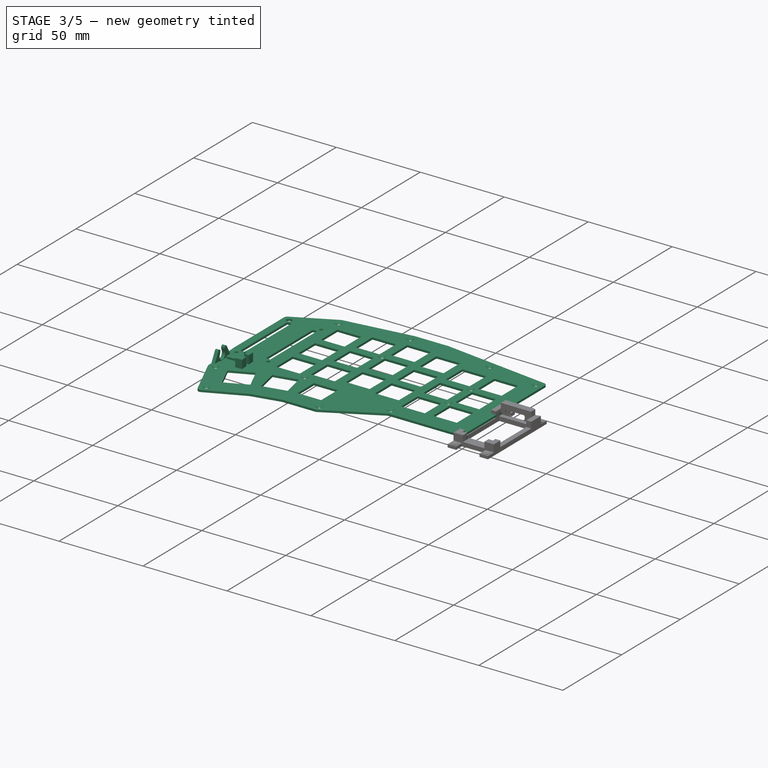
[diagram: stage 3 of 5 — iso view after this stage's code; geometry added in this stage tinted green]
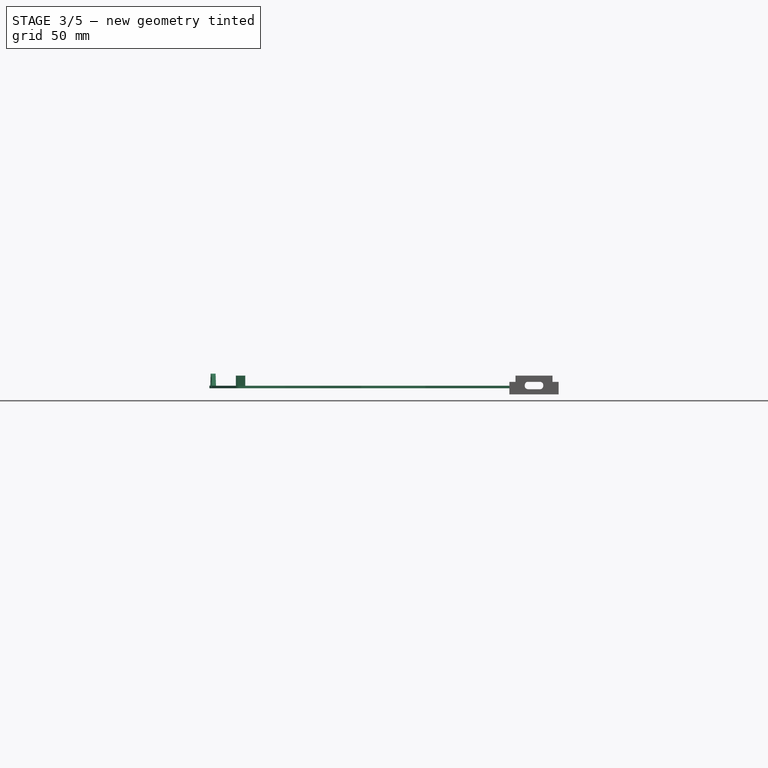
[diagram: stage 3 of 5 — front view after this stage's code; geometry added in this stage tinted green]
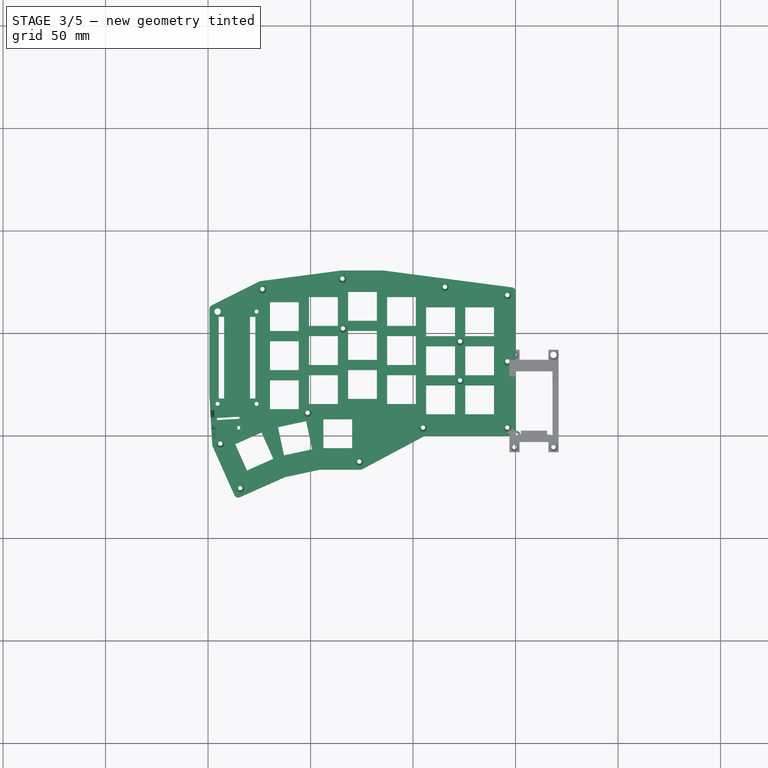
[diagram: stage 3 of 5 — top view after this stage's code; geometry added in this stage tinted green]
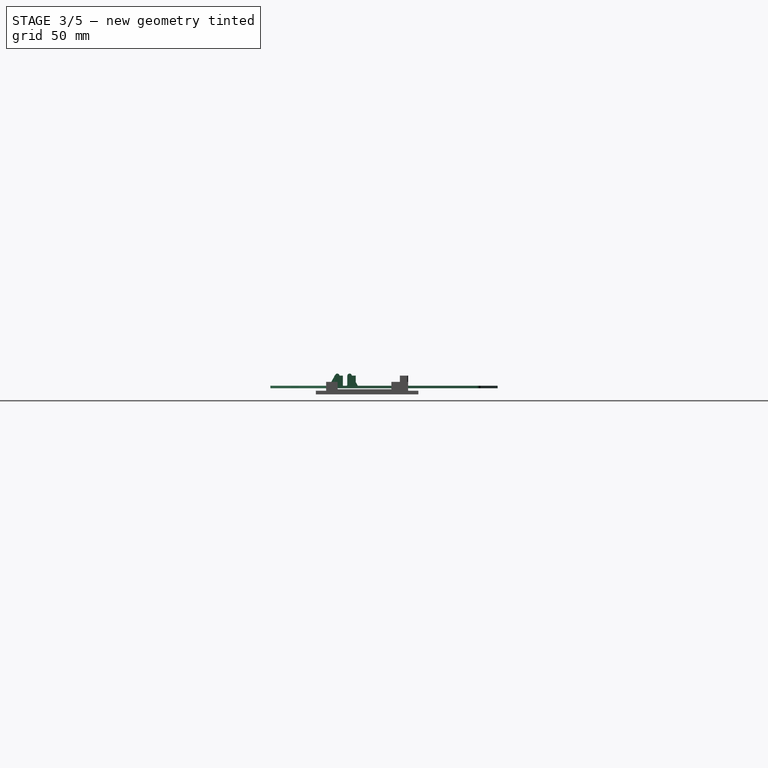
[diagram: stage 3 of 5 — right view after this stage's code; geometry added in this stage tinted green]
FEATURE [PartDesign::Body] Body003  label="2mmWasher"
  AllowCompound = false
  Group = -> [Sketch019,Pad010]
  Origin = -> Origin071
  Tip = -> Pad010
FEATURE [Sketcher::SketchObject] Sketch020
  ArcFitTolerance = 1e-06
  AttachmentSupport = -> [XY_Plane072]
  FullyConstrained = true
  MakeInternals = false
  MapMode = 5
  sketch-geometry (2):
    g0: Circle CenterX=0 CenterY=0 CenterZ=0 NormalX=0 NormalY=0 NormalZ=1 AngleXU=0 Radius=1.55
    g1: Circle CenterX=0 CenterY=0 CenterZ=0 NormalX=0 NormalY=0 NormalZ=1 AngleXU=0 Radius=2.5
  constraints (4):
    c: Coincident(g0,g-1)
    c: Coincident(g1,g0)
    c: Diameter(g0) = 3.1
    c: Diameter(g1) = 5
FEATURE [PartDesign::Pad] Pad011
  Direction = (0,0,1)
  Length = 4.55
  Length2 = 10
  Profile = -> Sketch020
  ReferenceAxis = -> Sketch020 [N_Axis]
  Refine = true
  Suppressed = false
  Type = 0
FEATURE [Sketcher::SketchObject] Sketch025
  ArcFitTolerance = 1e-06
  AttachmentSupport = -> [Pocket011]
  ExternalGeometry = -> [Pocket011]
  FullyConstrained = true
  MakeInternals = false
  MapMode = 5
  Placement = pos=(0,0,0.6) rot=(0,0,1;0rad)
  sketch-geometry (8):
    g0: LineSegment StartX=134.325 StartY=9.32553 StartZ=0 EndX=145.706 EndY=8.67148 EndZ=0
    g1: LineSegment StartX=145.706 StartY=8.67148 StartZ=0 EndX=145.648 EndY=7.67312 EndZ=0
    g2: LineSegment StartX=145.648 StartY=7.67312 StartZ=0 EndX=134.267 EndY=8.32717 EndZ=0
    g3: LineSegment StartX=134.267 StartY=8.32717 StartZ=0 EndX=134.325 EndY=9.32553 EndZ=0
    g4: LineSegment StartX=133.966 StartY=3.08582 StartZ=0 EndX=135.663 EndY=2.98829 EndZ=0
    g5: LineSegment StartX=135.663 StartY=2.98829 StartZ=0 EndX=135.761 EndY=4.68549 EndZ=0
    g6: LineSegment StartX=135.761 StartY=4.68549 StartZ=0 EndX=134.064 EndY=4.78302 EndZ=0
    g7: LineSegment StartX=134.064 StartY=4.78302 StartZ=0 EndX=133.966 EndY=3.08582 EndZ=0
  constraints (23):
    c: Coincident(g0,g-4)
    c: PointOnObject(g0,g-3)
    c: Coincident(g1,g0)
    c: Coincident(g2,g1)
    c: PointOnObject(g2,g-4)
    c: Coincident(g3,g2)
    c: Coincident(g3,g0)
    c: Parallel(g2,g0)
    c: Coincident(g5,g4)
    c: Coincident(g6,g5)
    c: Coincident(g7,g6)
    c: Coincident(g7,g4)
    c: Parallel(g7,g5)
    c: Parallel(g4,g6)
    c: Distance(g5,g5) = 1.7
    c: Parallel(g4,g-6)
    c: Parallel(g5,g-5)
    c: PointOnObject(g4,g-6)
    c: Distance(g4,g-6) = 12.7
    c: PointOnObject(g6,g-4)
    c: Distance(g1,g-5) = 3
    c: Perpendicular(g2,g1)
    c: Distance(g1,g1) = 1
FEATURE [PartDesign::Pocket] Pocket012
  BaseFeature = -> Pocket011
  Direction = (0,0,-1)
  Length = 5
  Length2 = 5
  Profile = -> Sketch025
  ReferenceAxis = -> Sketch025 [N_Axis]
  Refine = true
  Suppressed = false
  Type = 0
FEATURE [Sketcher::SketchObject] Sketch026
  ArcFitTolerance = 1e-06
  AttachmentSupport = -> [Pocket012]
  ExternalGeometry = -> [Pocket012]
  FullyConstrained = true
  MakeInternals = false
  MapMode = 5
  Placement = pos=(147.725,-8.48936,0) rot=(0.599441,0.565982,0.565982;2.06158rad)
  sketch-geometry (14):
    g0: ArcOfCircle CenterX=13.8917 CenterY=3.35 CenterZ=0 NormalX=0 NormalY=0 NormalZ=1 AngleXU=0 Radius=2.65 StartAngle=2.0944 EndAngle=7.33038
    g1: LineSegment StartX=16.7785 StartY=8.35 StartZ=0 EndX=20.9066 EndY=1.2 EndZ=0
    g2: LineSegment StartX=11.005 StartY=8.35 StartZ=0 EndX=6.87694 EndY=1.2 EndZ=0
    g3: LineSegment [constr] StartX=11.005 StartY=8.35 StartZ=0 EndX=13.8917 EndY=3.35 EndZ=0
    g4: LineSegment [constr] StartX=13.8917 StartY=3.35 StartZ=0 EndX=16.7785 EndY=8.35 EndZ=0
    g5: LineSegment [constr] StartX=13.8917 StartY=8.35 StartZ=0 EndX=13.8917 EndY=3.35 EndZ=0
    g6: LineSegment [constr] StartX=13.8917 StartY=3.35 StartZ=0 EndX=13.8917 EndY=0.6 EndZ=0
    g7: LineSegment StartX=6.87694 StartY=1.2 StartZ=0 EndX=6.87694 EndY=0 EndZ=0
    g8: LineSegment StartX=6.87694 StartY=0 StartZ=0 EndX=20.9066 EndY=0 EndZ=0
    g9: LineSegment StartX=20.9066 StartY=0 StartZ=0 EndX=20.9066 EndY=1.2 EndZ=0
    g10: LineSegment StartX=11.005 StartY=8.35 StartZ=0 EndX=12.5667 EndY=5.64497 EndZ=0
    g11: LineSegment StartX=16.7785 StartY=8.35 StartZ=0 EndX=15.2167 EndY=5.64497 EndZ=0
    g12: LineSegment [constr] StartX=11.005 StartY=8.35 StartZ=0 EndX=16.7785 EndY=8.35 EndZ=0
    g13: GeomPoint X=13.8917 Y=0.7 Z=0
  constraints (38):
    c: Diameter(g0) = 5.3
    c: PointOnObject(g2,g-4)
    c: PointOnObject(g1,g-5)
    c: Angle(g2,g1) = 1.0472
    c: Coincident(g3,g0)
    c: Coincident(g4,g3)
    c: Angle(g4,g3) = 1.0472
    c: Symmetric(g2,g1,g5)
    c: Coincident(g5,g0)
    c: Vertical(g5)
    c: Coincident(g6,g0)
    c: Vertical(g6)
    c: Symmetric(g-3,g-3,g6)
    c: DistanceY(g5,g5) = 5
    c: Parallel(g2,g4)
    c: Coincident(g7,g2)
    c: PointOnObject(g7,g-1)
    c: Vertical(g7)
    c: Coincident(g8,g7)
    c: PointOnObject(g8,g-1)
    c: Coincident(g9,g8)
    c: Coincident(g9,g1)
    c: Vertical(g9)
    c: Coincident(g10,g2)
    c: Coincident(g11,g1)
    c: PointOnObject(g11,g0)
    c: Parallel(g10,g3)
    c: Parallel(g11,g4)
    c: PointOnObject(g0,g4)
    c: Coincident(g0,g10)
    c: Coincident(g2,g3)
    c: Coincident(g4,g1)
    c: Coincident(g12,g2)
    c: Coincident(g12,g1)
    c: Horizontal(g12)
    c: PointOnObject(g13,g0)
    c: PointOnObject(g13,g6)
    c: DistanceY(g6,g13) = 0.1
FEATURE [PartDesign::Pad] Pad013
  BaseFeature = -> Pocket012
  Direction = (0.998353,-0.0573728,0)
  Length = 2
  Length2 = 10
  Profile = -> Sketch026
  ReferenceAxis = -> Sketch026 [N_Axis]
  Refine = true
  Reversed = true
  Suppressed = false
  Type = 0
FEATURE [PartDesign::Fillet] Fillet007
  Base = -> Pad013 [Edge438,Edge440]
  BaseFeature = -> Pad013
  Radius = 3
  Refine = true
  SupportTransform = false
  Suppressed = false
  UseAllEdges = false
FEATURE [PartDesign::Fillet] Fillet008
  Base = -> Fillet007 [Edge15,Edge169]
  BaseFeature = -> Fillet007
  Radius = 1
  Refine = true
  SupportTransform = false
  Suppressed = false
  UseAllEdges = false
FEATURE [Sketcher::SketchObject] Sketch027
  ArcFitTolerance = 1e-06
  AttachmentSupport = -> [Fillet008]
  ExternalGeometry = -> [Fillet008]
  FullyConstrained = true
  MakeInternals = false
  MapMode = 5
  Placement = pos=(0,0,1.2) rot=(0,0,1;0rad)
  sketch-geometry (12):
    g0: LineSegment StartX=134.325 StartY=9.32553 StartZ=0 EndX=136.325 EndY=9.21059 EndZ=0
    g1: LineSegment StartX=136.325 StartY=9.21059 StartZ=0 EndX=136.44 EndY=11.2106 EndZ=0
    g2: LineSegment StartX=136.44 StartY=11.2106 StartZ=0 EndX=132.44 EndY=11.4405 EndZ=0
    g3: LineSegment StartX=132.44 StartY=11.4405 StartZ=0 EndX=132.21 EndY=7.44046 EndZ=0
    g4: LineSegment StartX=132.21 StartY=7.44046 StartZ=0 EndX=134.21 EndY=7.32553 EndZ=0
    g5: LineSegment StartX=134.21 StartY=7.32553 StartZ=0 EndX=134.325 EndY=9.32553 EndZ=0
    g6: LineSegment StartX=133.966 StartY=3.08582 StartZ=0 EndX=134.081 EndY=5.08582 EndZ=0
    g7: LineSegment StartX=134.081 StartY=5.08582 StartZ=0 EndX=132.081 EndY=5.20076 EndZ=0
    g8: LineSegment StartX=132.081 StartY=5.20076 StartZ=0 EndX=131.851 EndY=1.20076 EndZ=0
    g9: LineSegment StartX=131.851 StartY=1.20076 StartZ=0 EndX=135.851 EndY=0.970885 EndZ=0
    g10: LineSegment StartX=135.851 StartY=0.970885 StartZ=0 EndX=135.966 EndY=2.97089 EndZ=0
    g11: LineSegment StartX=135.966 StartY=2.97089 StartZ=0 EndX=133.966 EndY=3.08582 EndZ=0
  constraints (34):
    c: Coincident(g0,g-5)
    c: PointOnObject(g0,g-3)
    c: Coincident(g1,g0)
    c: Coincident(g2,g1)
    c: Coincident(g3,g2)
    c: Coincident(g4,g3)
    c: PointOnObject(g4,g-5)
    c: Coincident(g5,g4)
    c: Coincident(g5,g0)
    c: Coincident(g6,g-5)
    c: PointOnObject(g6,g-5)
    c: Coincident(g7,g6)
    c: Coincident(g8,g7)
    c: Coincident(g9,g8)
    c: Coincident(g10,g9)
    c: PointOnObject(g10,g-4)
    c: Coincident(g11,g10)
    c: Coincident(g11,g6)
    c: Parallel(g6,g8)
    c: Parallel(g11,g9)
    c: Parallel(g10,g8)
    c: Parallel(g7,g9)
    c: Parallel(g4,g2)
    c: Parallel(g0,g2)
    c: Parallel(g1,g3)
    c: Parallel(g5,g3)
    c: DistanceX(g4,g4) = 2
    c: Equal(g4,g5)
    c: Equal(g5,g0)
    c: Equal(g0,g1)
    c: Equal(g7,g4)
    c: Equal(g7,g6)
    c: Equal(g6,g11)
    c: Equal(g11,g10)
FEATURE [PartDesign::Pad] Pad014
  BaseFeature = -> Fillet008
  Direction = (0,0,1)
  Length = 4.45
  Length2 = 10
  Profile = -> Sketch027
  ReferenceAxis = -> Sketch027 [N_Axis]
  Refine = true
  Suppressed = false
  Type = 0
FEATURE [Sketcher::SketchObject] Sketch028
  ArcFitTolerance = 1e-06
  AttachmentSupport = -> [Pad014]
  ExternalGeometry = -> [Pad014]
  FullyConstrained = true
  MakeInternals = false
  MapMode = 5
  Placement = pos=(0,0,5.65) rot=(0,0,1;0rad)
  sketch-geometry (12):
    g0: LineSegment StartX=132.081 StartY=5.20076 StartZ=0 EndX=131.851 EndY=1.20076 EndZ=0
    g1: LineSegment StartX=131.851 StartY=1.20076 StartZ=0 EndX=135.851 EndY=0.970885 EndZ=0
    g2: LineSegment StartX=135.851 StartY=0.970885 StartZ=0 EndX=135.966 EndY=2.97089 EndZ=0
    g3: LineSegment StartX=132.081 StartY=5.20076 StartZ=0 EndX=134.477 EndY=5.06306 EndZ=0
    g4: LineSegment StartX=134.477 StartY=5.06306 StartZ=0 EndX=134.362 EndY=3.06306 EndZ=0
    g5: LineSegment StartX=134.362 StartY=3.06306 StartZ=0 EndX=135.966 EndY=2.97089 EndZ=0
    g6: LineSegment StartX=132.21 StartY=7.44046 StartZ=0 EndX=134.606 EndY=7.30277 EndZ=0
    g7: LineSegment StartX=134.606 StartY=7.30277 StartZ=0 EndX=134.721 EndY=9.30277 EndZ=0
    g8: LineSegment StartX=134.721 StartY=9.30277 StartZ=0 EndX=136.325 EndY=9.21059 EndZ=0
    g9: LineSegment StartX=136.325 StartY=9.21059 StartZ=0 EndX=136.44 EndY=11.2106 EndZ=0
    g10: LineSegment StartX=136.44 StartY=11.2106 StartZ=0 EndX=132.44 EndY=11.4405 EndZ=0
    g11: LineSegment StartX=132.44 StartY=11.4405 StartZ=0 EndX=132.21 EndY=7.44046 EndZ=0
  constraints (28):
    c: Coincident(g0,g-9)
    c: Coincident(g0,g-10)
    c: Coincident(g1,g-10)
    c: Coincident(g1,g-10)
    c: Coincident(g2,g-10)
    c: Coincident(g2,g-3)
    c: Coincident(g3,g0)
    c: Coincident(g4,g3)
    c: PointOnObject(g4,g-3)
    c: Coincident(g5,g4)
    c: Coincident(g5,g2)
    c: PointOnObject(g-4,g3)
    c: Parallel(g4,g-4)
    c: Coincident(g6,g-7)
    c: Coincident(g7,g6)
    c: PointOnObject(g7,g-6)
    c: Coincident(g8,g7)
    c: Coincident(g8,g-6)
    c: Coincident(g9,g8)
    c: Coincident(g9,g-8)
    c: Coincident(g10,g9)
    c: Coincident(g10,g-8)
    c: Coincident(g11,g10)
    c: Coincident(g11,g6)
    c: Parallel(g7,g-5)
    c: PointOnObject(g-5,g6)
    c: Equal(g6,g3)
    c: Distance(g3,g3) = 2.4
FEATURE [PartDesign::Pad] Pad015
  BaseFeature = -> Pad014
  Direction = (0,0,1)
  Length = 0.5
  Length2 = 10
  Profile = -> Sketch028
  ReferenceAxis = -> Sketch028 [N_Axis]
  Refine = true
  Suppressed = false
  Type = 0
FEATURE [PartDesign::Body] Body005  label="RightPlate"
  AllowCompound = false
  Group = -> [Sketch021,Pad012,Fillet006,Sketch022,Pocket009,Chamfer003,Sketch023,Pocket010,Sketch024,Pocket011,Sketch025,Pocket012,Sketch026,Pad013,Fillet007,Fillet008,Sketch027,Pad014,Sketch028,Pad015]
  Origin = -> Origin073
  Placement = pos=(0,0,3) rot=(0,0,1;0rad)
  Tip = -> Pad015
FEATURE [App::VarSet] VarSet001
  BigStagger = 5
  HoleWidth = 14.05
  Kerf = 19.05
  Padding = 8
  SmallStagger = 2.5
  ThumbAngle = 12
  ThumbOffset = 7
FEATURE [Part::Mirroring] Part__Mirroring  label="RightPlate (Mirror #1)"
  Base = (-4e-16,70.414,0)
  MirrorPlane = -> Pad015 [Face35]
  Normal = (1,0,0)
  Source = -> Body005
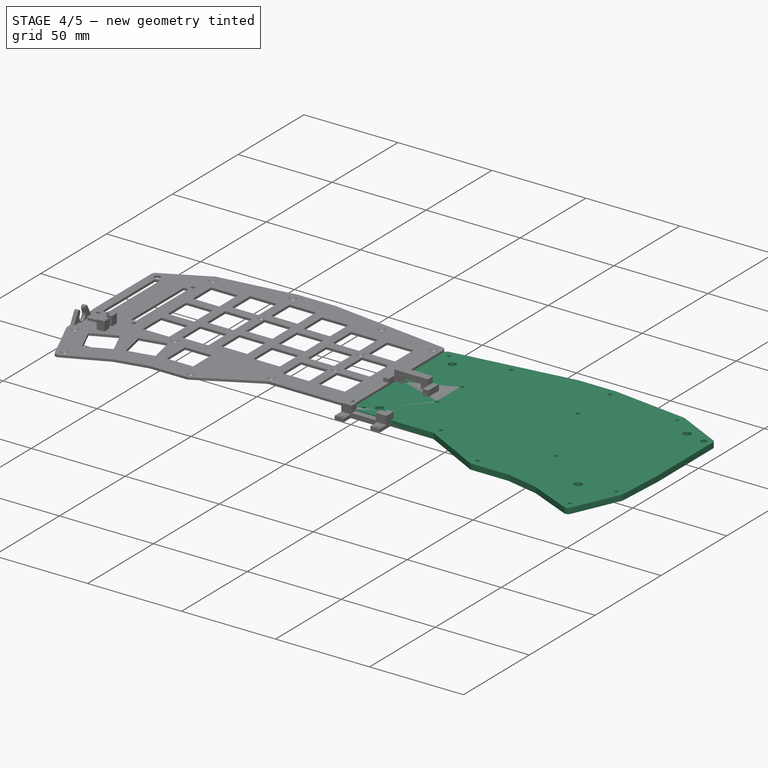
[diagram: stage 4 of 5 — iso view after this stage's code; geometry added in this stage tinted green]
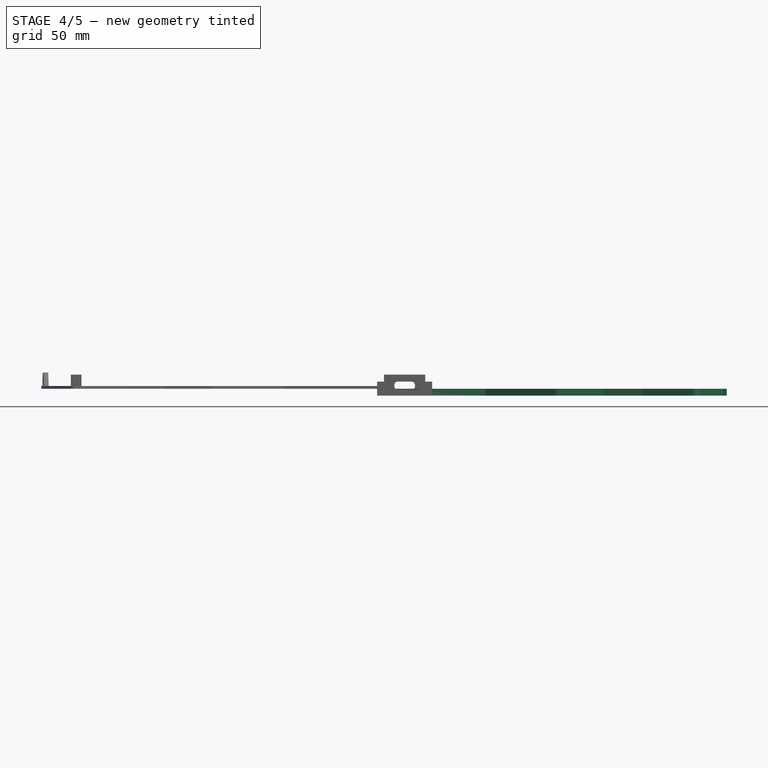
[diagram: stage 4 of 5 — front view after this stage's code; geometry added in this stage tinted green]
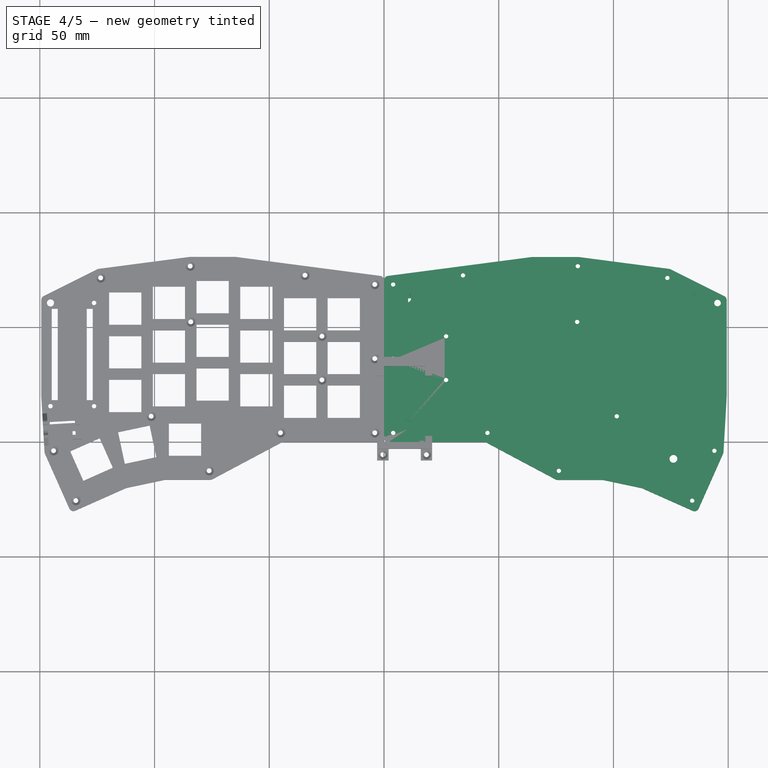
[diagram: stage 4 of 5 — top view after this stage's code; geometry added in this stage tinted green]
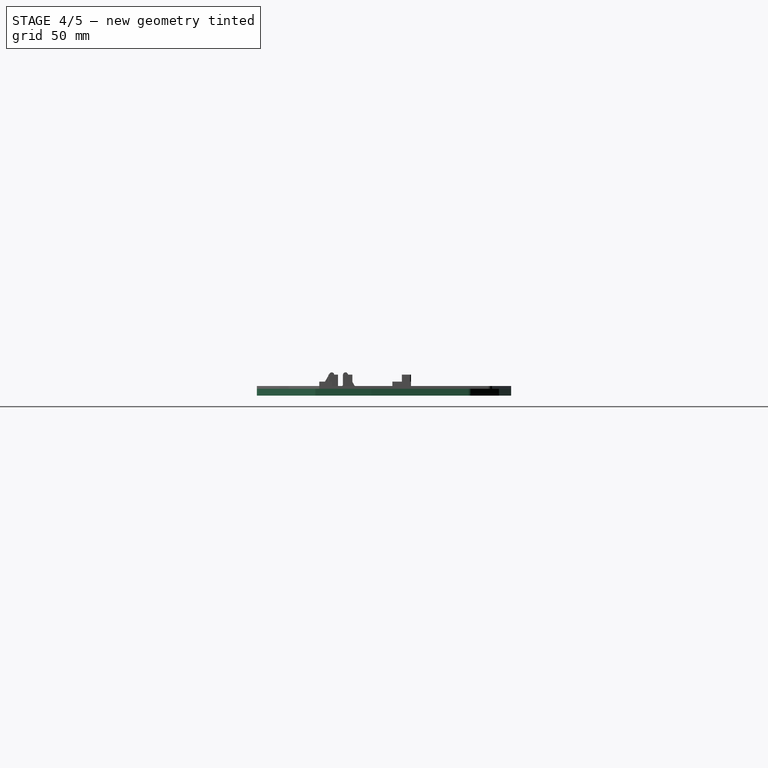
[diagram: stage 4 of 5 — right view after this stage's code; geometry added in this stage tinted green]
FEATURE [App::VarSet] VarSet
  BigStagger = 5
  HoleWidth = 14.05
  Kerf = 19.05
  Padding = 8
  SmallStagger = 2.5
  ThumbAngle = 12
  ThumbOffset = 7
FEATURE [Sketcher::SketchObject] Sketch001
  ArcFitTolerance = 1e-06
  AttachmentSupport = -> [XY_Plane069]
  FullyConstrained = true
  MakeInternals = false
  MapMode = 5
  expr: Constraints[127] = VarSet.Padding
  expr: Constraints[128] = VarSet.Padding
  expr: Constraints[129] = VarSet.Padding
  expr: Constraints[130] = VarSet.Padding
  expr: Constraints[131] = VarSet.Padding
  expr: Constraints[132] = VarSet.Padding
  expr: Constraints[133] = VarSet.Padding
  expr: Constraints[134] = VarSet.Padding
  expr: Constraints[135] = VarSet.Padding
  expr: Constraints[136] = VarSet.Padding
  expr: Constraints[138] = VarSet.Padding
  expr: Constraints[139] = VarSet.Padding
  expr: Constraints[140] = VarSet.Padding
  expr: Constraints[44] = 3 * VarSet.Kerf
  expr: Constraints[45] = 2 * VarSet.Kerf
  expr: Constraints[46] = VarSet.Kerf
  expr: Constraints[61] = VarSet.BigStagger
  expr: Constraints[62] = VarSet.SmallStagger
  expr: Constraints[63] = VarSet.SmallStagger
  expr: Constraints[64] = VarSet.SmallStagger
  expr: Constraints[65] = VarSet.Kerf / 2
  expr: Constraints[76] = VarSet.ThumbOffset
  expr: Constraints[91] = VarSet.ThumbAngle
  expr: Constraints[92] = 2 * VarSet.ThumbAngle
  sketch-geometry (49):
    g0: LineSegment [constr] StartX=8 StartY=8 StartZ=0 EndX=8 EndY=65.15 EndZ=0
    g1: LineSegment [constr] StartX=8 StartY=65.15 StartZ=0 EndX=46.1 EndY=65.15 EndZ=0
    g2: LineSegment [constr] StartX=46.1 StartY=65.15 StartZ=0 EndX=46.1 EndY=70.15 EndZ=0
    g3: LineSegment [constr] StartX=46.1 StartY=70.15 StartZ=0 EndX=65.15 EndY=70.15 EndZ=0
    g4: LineSegment [constr] StartX=65.15 StartY=70.15 StartZ=0 EndX=65.15 EndY=72.65 EndZ=0
    g5: LineSegment [constr] StartX=65.15 StartY=72.65 StartZ=0 EndX=84.2 EndY=72.65 EndZ=0
    g6: LineSegment [constr] StartX=84.2 StartY=72.65 StartZ=0 EndX=84.2 EndY=70.15 EndZ=0
    g7: LineSegment [constr] StartX=84.2 StartY=70.15 StartZ=0 EndX=103.25 EndY=70.15 EndZ=0
    g8: LineSegment [constr] StartX=103.25 StartY=70.15 StartZ=0 EndX=103.25 EndY=67.65 EndZ=0
    g9: LineSegment [constr] StartX=103.25 StartY=67.65 StartZ=0 EndX=122.3 EndY=67.65 EndZ=0
    g10: LineSegment [constr] StartX=122.3 StartY=67.65 StartZ=0 EndX=122.3 EndY=58.125 EndZ=0
    g11: LineSegment [constr] StartX=122.3 StartY=58.125 StartZ=0 EndX=141.35 EndY=58.125 EndZ=0
    g12: LineSegment [constr] StartX=141.35 StartY=58.125 StartZ=0 EndX=141.35 EndY=20.025 EndZ=0
    g13: LineSegment [constr] StartX=141.35 StartY=20.025 StartZ=0 EndX=122.3 EndY=20.025 EndZ=0
    g14: LineSegment [constr] StartX=122.3 StartY=20.025 StartZ=0 EndX=122.3 EndY=10.5 EndZ=0
    g15: LineSegment [constr] StartX=122.3 StartY=10.5 StartZ=0 EndX=103.25 EndY=10.5 EndZ=0
    g16: LineSegment [constr] StartX=103.25 StartY=10.5 StartZ=0 EndX=103.25 EndY=13 EndZ=0
    g17: LineSegment [constr] StartX=103.25 StartY=13 StartZ=0 EndX=84.2 EndY=13 EndZ=0
    g18: LineSegment [constr] StartX=84.2 StartY=13 StartZ=0 EndX=84.2 EndY=15.5 EndZ=0
    g19: LineSegment [constr] StartX=84.2 StartY=15.5 StartZ=0 EndX=65.15 EndY=15.5 EndZ=0
    g20: LineSegment [constr] StartX=65.15 StartY=15.5 StartZ=0 EndX=65.15 EndY=13 EndZ=0
    g21: LineSegment [constr] StartX=65.15 StartY=13 StartZ=0 EndX=46.1 EndY=13 EndZ=0
    g22: LineSegment [constr] StartX=46.1 StartY=13 StartZ=0 EndX=46.1 EndY=8 EndZ=0
    g23: LineSegment [constr] StartX=46.1 StartY=8 StartZ=0 EndX=8 EndY=8 EndZ=0
    g24: LineSegment [constr] StartX=103.25 StartY=10.5 StartZ=0 EndX=77.2 EndY=10.5 EndZ=0
    g25: LineSegment [constr] StartX=77.2 StartY=10.5 StartZ=0 EndX=77.2 EndY=-8.55 EndZ=0
    g26: LineSegment [constr] StartX=77.2 StartY=-8.55 StartZ=0 EndX=96.25 EndY=-8.55 EndZ=0
    g27: LineSegment [constr] StartX=96.25 StartY=-8.55 StartZ=0 EndX=114.884 EndY=-12.5107 EndZ=0
    g28: LineSegment [constr] StartX=114.884 StartY=-12.5107 StartZ=0 EndX=132.287 EndY=-20.2591 EndZ=0
    g29: LineSegment [constr] StartX=132.287 StartY=-20.2591 StartZ=0 EndX=140.035 EndY=-2.85601 EndZ=0
    g30: LineSegment [constr] StartX=140.035 StartY=-2.85601 StartZ=0 EndX=141.35 EndY=20.025 EndZ=0
    g31: LineSegment [constr] StartX=46.1 StartY=8 StartZ=0 EndX=77.2 EndY=-8.55 EndZ=0
    g32: LineSegment [constr] StartX=96.25 StartY=-8.55 StartZ=0 EndX=137.5 EndY=-8.55 EndZ=0
    g33: LineSegment [constr] StartX=122.3 StartY=67.65 StartZ=0 EndX=84.2 EndY=72.65 EndZ=0
    g34: LineSegment [constr] StartX=65.15 StartY=72.65 StartZ=0 EndX=8 EndY=65.15 EndZ=0
    g35: LineSegment StartX=0 StartY=0 StartZ=0 EndX=0 EndY=72.1687 EndZ=0
    g36: LineSegment StartX=0 StartY=72.1687 StartZ=0 EndX=64.6273 EndY=80.65 EndZ=0
    g37: LineSegment StartX=64.6273 StartY=80.65 StartZ=0 EndX=84.7227 EndY=80.65 EndZ=0
    g38: LineSegment StartX=84.7227 StartY=80.65 StartZ=0 EndX=124.675 EndY=75.407 EndZ=0
    g39: LineSegment StartX=0 StartY=0 StartZ=0 EndX=44.1039 EndY=0 EndZ=0
    g40: LineSegment StartX=44.1039 StartY=0 StartZ=0 EndX=75.2039 EndY=-16.55 EndZ=0
    g41: LineSegment StartX=75.2039 StartY=-16.55 StartZ=0 EndX=95.4092 EndY=-16.55 EndZ=0
    g42: LineSegment StartX=95.4092 StartY=-16.55 StartZ=0 EndX=112.398 EndY=-20.1611 EndZ=0
    g43: LineSegment StartX=112.398 StartY=-20.1611 StartZ=0 EndX=136.341 EndY=-30.8213 EndZ=0
    g44: LineSegment StartX=136.341 StartY=-30.8213 StartZ=0 EndX=147.938 EndY=-4.77444 EndZ=0
    g45: LineSegment StartX=147.938 StartY=-4.77444 StartZ=0 EndX=149.35 EndY=19.7953 EndZ=0
    g46: LineSegment StartX=149.35 StartY=19.7953 StartZ=0 EndX=149.35 EndY=63.0693 EndZ=0
    g47: LineSegment StartX=149.35 StartY=63.0693 StartZ=0 EndX=124.675 EndY=75.407 EndZ=0
    g48: LineSegment [constr] StartX=122.3 StartY=67.65 StartZ=0 EndX=141.35 EndY=58.125 EndZ=0
  constraints (141):
    c: Coincident(g1,g0)
    c: Horizontal(g1)
    c: Coincident(g2,g1)
    c: Vertical(g2)
    c: Coincident(g3,g2)
    c: Horizontal(g3)
    c: Coincident(g4,g3)
    c: Vertical(g4)
    c: Coincident(g5,g4)
    c: Horizontal(g5)
    c: Coincident(g6,g5)
    c: Coincident(g7,g6)
    c: Horizontal(g7)
    c: Coincident(g8,g7)
    c: Vertical(g8)
    c: Coincident(g9,g8)
    c: Horizontal(g9)
    c: Coincident(g10,g9)
    c: Vertical(g10)
    c: Coincident(g11,g10)
    c: Horizontal(g11)
    c: Coincident(g12,g11)
    c: Vertical(g12)
    c: Coincident(g13,g12)
    c: Horizontal(g13)
    c: Coincident(g14,g13)
    c: Vertical(g14)
    c: Coincident(g15,g14)
    c: Horizontal(g15)
    c: Coincident(g16,g15)
    c: Coincident(g17,g16)
    c: Horizontal(g17)
    c: Coincident(g19,g18)
    c: Horizontal(g19)
    c: Coincident(g20,g19)
    c: Vertical(g20)
    c: Coincident(g21,g20)
    c: Horizontal(g21)
    c: Coincident(g22,g21)
    c: Vertical(g22)
    c: Coincident(g23,g22)
    c: Horizontal(g23)
    c: Vertical(g16)
    c: Vertical(g18)
    c: DistanceY(g0,g0) = 57.15
    c: DistanceX(g1,g1) = 38.1
    c: DistanceX(g3,g3) = 19.05
    c: Vertical(g6)
    c: Coincident(g0,g23)
    c: Vertical(g0)
    c: Equal(g3,g5)
    c: Equal(g5,g9)
    c: Equal(g5,g7)
    c: Equal(g9,g11)
    c: Equal(g11,g13)
    c: Equal(g13,g15)
    c: Equal(g15,g17)
    c: Coincident(g18,g17)
    c: Equal(g17,g19)
    c: Equal(g19,g21)
    c: Equal(g12,g1)
    c: DistanceY(g2,g2) = 5
    c: DistanceY(g4,g4) = 2.5
    c: DistanceY(g6,g6) = 2.5
    c: DistanceY(g8,g8) = 2.5
    c: DistanceY(g10,g10) = 9.525
    c: Equal(g22,g2)
    c: Equal(g20,g4)
    c: Equal(g6,g18)
    c: Equal(g16,g8)
    c: Coincident(g24,g15)
    c: Horizontal(g24)
    c: Coincident(g25,g24)
    c: Vertical(g25)
    c: Coincident(g26,g25)
    c: Horizontal(g26)
    c: DistanceX(g24,g17) = 7
    c: Coincident(g27,g26)
    c: Coincident(g28,g27)
    c: Coincident(g29,g28)
    c: Coincident(g30,g29)
    c: Coincident(g30,g12)
    c: Equal(g26,g27)
    c: Equal(g27,g28)
    c: Equal(g28,g29)
    c: Equal(g25,g26)
    c: Coincident(g31,g22)
    c: Coincident(g31,g25)
    c: Coincident(g32,g26)
    c: PointOnObject(g32,g29)
    c: Horizontal(g32)
    c: Angle(g27,g32) = 0.20944
    c: Angle(g28,g32) = 0.418879
    c: Perpendicular(g29,g28)
    c: Equal(g25,g5)
    c: Coincident(g33,g9)
    c: Coincident(g33,g5)
    c: Coincident(g34,g4)
    c: Coincident(g34,g0)
    c: Vertical(g35)
    c: Coincident(g36,g35)
    c: Coincident(g37,g36)
    c: Horizontal(g37)
    c: Coincident(g38,g37)
    c: Coincident(g35,g39)
    c: Horizontal(g39)
    c: Coincident(g39,g40)
    c: Coincident(g40,g41)
    c: Horizontal(g41)
    c: Coincident(g41,g42)
    c: Coincident(g42,g43)
    c: Coincident(g43,g44)
    c: Coincident(g44,g45)
    c: Coincident(g45,g46)
    c: Vertical(g46)
    c: Coincident(g46,g47)
    c: Coincident(g47,g38)
    c: Parallel(g36,g34)
    c: Parallel(g31,g40)
    c: Parallel(g27,g42)
    c: Parallel(g43,g28)
    c: Parallel(g29,g44)
    c: Parallel(g45,g30)
    c: Coincident(g48,g9)
    c: Coincident(g48,g11)
    c: Parallel(g48,g47)
    c: Parallel(g33,g38)
    c: DistanceY(g35,g0) = 8
    c: Distance(g31,g40) = 8
    c: Distance(g28,g43) = 8
    c: Distance(g44,g29) = 8
    c: Distance(g45,g30) = 8
    c: Distance(g46,g12) = 8
    c: Distance(g35,g0) = 8
    c: Distance(g34,g36) = 8
    c: Distance(g5,g37) = 8
    c: Distance(g33,g38) = 8
    c: Coincident(g35,g-1)
    c: Distance(g48,g47) = 8
    c: Distance(g41,g26) = 8
    c: Distance(g27,g42) = 8
FEATURE [PartDesign::Pad] Pad001
  Direction = (0,0,1)
  Length = 3
  Length2 = 10
  Profile = -> Sketch001
  ReferenceAxis = -> Sketch001 [N_Axis]
  Refine = true
  Suppressed = false
  Type = 0
FEATURE [PartDesign::Fillet] Fillet001
  Base = -> Pad001 [Edge1,Edge35,Edge32,Edge29,Edge26,Edge23,Edge20,Edge17,Edge14,Edge11,Edge8,Edge5,Edge2]
  BaseFeature = -> Pad001
  Radius = 2
  Refine = true
  SupportTransform = false
  Suppressed = false
  UseAllEdges = false
FEATURE [Sketcher::SketchObject] Sketch
  ArcFitTolerance = 1e-06
  AttachmentSupport = -> [XY_Plane]
  FullyConstrained = true
  MakeInternals = false
  MapMode = 5
  expr: Constraints[25] = VarSet.Kerf
  expr: Constraints[26] = VarSet.HoleWidth
  expr: Constraints[52] = VarSet.Kerf
  expr: Constraints[53] = VarSet.HoleWidth
  expr: Constraints[551] = VarSet.BigStagger
  expr: Constraints[552] = VarSet.SmallStagger
  expr: Constraints[553] = VarSet.SmallStagger
  expr: Constraints[554] = VarSet.SmallStagger
  expr: Constraints[674] = VarSet.ThumbAngle
  expr: Constraints[675] = VarSet.ThumbAngle
  expr: Constraints[678] = VarSet.Padding
  expr: Constraints[688] = VarSet.Padding
  expr: Constraints[691] = VarSet.Padding
  expr: Constraints[700] = VarSet.Padding
  expr: Constraints[701] = VarSet.Padding
  expr: Constraints[719] = VarSet.Padding
  expr: Constraints[720] = VarSet.Padding
  expr: Constraints[721] = VarSet.Padding
  expr: Constraints[722] = VarSet.Padding
  expr: Constraints[723] = VarSet.Padding
  expr: Constraints[724] = VarSet.Padding
  expr: Constraints[725] = VarSet.Padding
  expr: Constraints[726] = VarSet.Padding
  expr: Constraints[727] = VarSet.ThumbOffset
  sketch-geometry (273):
    g0: LineSegment [constr] StartX=114.884 StartY=-12.5107 StartZ=0 EndX=122.632 EndY=4.89232 EndZ=0
    g1: LineSegment [constr] StartX=122.632 StartY=4.89232 StartZ=0 EndX=140.035 EndY=-2.85601 EndZ=0
    g2: LineSegment [constr] StartX=140.035 StartY=-2.85601 StartZ=0 EndX=132.287 EndY=-20.2591 EndZ=0
    g3: LineSegment [constr] StartX=132.287 StartY=-20.2591 StartZ=0 EndX=114.884 EndY=-12.5107 EndZ=0
    g4: LineSegment StartX=118.184 StartY=-11.2437 StartZ=0 EndX=123.899 EndY=1.59162 EndZ=0
    g5: LineSegment StartX=123.899 StartY=1.59162 StartZ=0 EndX=136.734 EndY=-4.12303 EndZ=0
    g6: LineSegment StartX=136.734 StartY=-4.12303 StartZ=0 EndX=131.02 EndY=-16.9583 EndZ=0
    g7: LineSegment StartX=131.02 StartY=-16.9583 StartZ=0 EndX=118.184 EndY=-11.2437 EndZ=0
    g8: LineSegment [constr] StartX=122.632 StartY=4.89232 StartZ=0 EndX=132.287 EndY=-20.2591 EndZ=0
    g9: LineSegment [constr] StartX=114.884 StartY=-12.5107 StartZ=0 EndX=140.035 EndY=-2.85601 EndZ=0
    g10: GeomPoint [constr] X=127.459 Y=-7.68336 Z=0
    g11: LineSegment [constr] StartX=8 StartY=8 StartZ=0 EndX=8 EndY=27.05 EndZ=0
    g12: LineSegment [constr] StartX=8 StartY=27.05 StartZ=0 EndX=27.05 EndY=27.05 EndZ=0
    g13: LineSegment [constr] StartX=27.05 StartY=27.05 StartZ=0 EndX=27.05 EndY=8 EndZ=0
    g14: LineSegment [constr] StartX=27.05 StartY=8 StartZ=0 EndX=8 EndY=8 EndZ=0
    g15: LineSegment StartX=10.5 StartY=10.5 StartZ=0 EndX=10.5 EndY=24.55 EndZ=0
    g16: LineSegment StartX=10.5 StartY=24.55 StartZ=0 EndX=24.55 EndY=24.55 EndZ=0
    g17: LineSegment StartX=24.55 StartY=24.55 StartZ=0 EndX=24.55 EndY=10.5 EndZ=0
    g18: LineSegment StartX=24.55 StartY=10.5 StartZ=0 EndX=10.5 EndY=10.5 EndZ=0
    g19: LineSegment [constr] StartX=8 StartY=27.05 StartZ=0 EndX=27.05 EndY=8 EndZ=0
    g20: LineSegment [constr] StartX=8 StartY=8 StartZ=0 EndX=27.05 EndY=27.05 EndZ=0
    g21: GeomPoint [constr] X=17.525 Y=17.525 Z=0
    g22: LineSegment [constr] StartX=27.05 StartY=8 StartZ=0 EndX=27.05 EndY=27.05 EndZ=0
    g23: LineSegment [constr] StartX=27.05 StartY=27.05 StartZ=0 EndX=46.1 EndY=27.05 EndZ=0
    g24: LineSegment [constr] StartX=46.1 StartY=27.05 StartZ=0 EndX=46.1 EndY=8 EndZ=0
    g25: LineSegment [constr] StartX=46.1 StartY=8 StartZ=0 EndX=27.05 EndY=8 EndZ=0
    g26: LineSegment StartX=29.55 StartY=10.5 StartZ=0 EndX=29.55 EndY=24.55 EndZ=0
    g27: LineSegment StartX=29.55 StartY=24.55 StartZ=0 EndX=43.6 EndY=24.55 EndZ=0
    g28: LineSegment StartX=43.6 StartY=24.55 StartZ=0 EndX=43.6 EndY=10.5 EndZ=0
    g29: LineSegment StartX=43.6 StartY=10.5 StartZ=0 EndX=29.55 EndY=10.5 EndZ=0
    g30: LineSegment [constr] StartX=27.05 StartY=27.05 StartZ=0 EndX=46.1 EndY=8 EndZ=0
    g31: LineSegment [constr] StartX=27.05 StartY=8 StartZ=0 EndX=46.1 EndY=27.05 EndZ=0
    g32: GeomPoint [constr] X=36.575 Y=17.525 Z=0
    g33: LineSegment [constr] StartX=46.1 StartY=13 StartZ=0 EndX=46.1 EndY=32.05 EndZ=0
    g34: LineSegment [constr] StartX=46.1 StartY=32.05 StartZ=0 EndX=65.15 EndY=32.05 EndZ=0
    g35: LineSegment [constr] StartX=65.15 StartY=32.05 StartZ=0 EndX=65.15 EndY=13 EndZ=0
    g36: LineSegment [constr] StartX=65.15 StartY=13 StartZ=0 EndX=46.1 EndY=13 EndZ=0
    g37: LineSegment StartX=48.6 StartY=15.5 StartZ=0 EndX=48.6 EndY=29.55 EndZ=0
    g38: LineSegment StartX=48.6 StartY=29.55 StartZ=0 EndX=62.65 EndY=29.55 EndZ=0
    g39: LineSegment StartX=62.65 StartY=29.55 StartZ=0 EndX=62.65 EndY=15.5 EndZ=0
    g40: LineSegment StartX=62.65 StartY=15.5 StartZ=0 EndX=48.6 EndY=15.5 EndZ=0
    g41: LineSegment [constr] StartX=46.1 StartY=32.05 StartZ=0 EndX=65.15 EndY=13 EndZ=0
    g42: LineSegment [constr] StartX=46.1 StartY=13 StartZ=0 EndX=65.15 EndY=32.05 EndZ=0
    g43: GeomPoint [constr] X=55.625 Y=22.525 Z=0
    g44: LineSegment [constr] StartX=65.15 StartY=15.5 StartZ=0 EndX=65.15 EndY=34.55 EndZ=0
    g45: LineSegment [constr] StartX=65.15 StartY=34.55 StartZ=0 EndX=84.2 EndY=34.55 EndZ=0
    g46: LineSegment [constr] StartX=84.2 StartY=34.55 StartZ=0 EndX=84.2 EndY=15.5 EndZ=0
    g47: LineSegment [constr] StartX=84.2 StartY=15.5 StartZ=0 EndX=65.15 EndY=15.5 EndZ=0
    g48: LineSegment StartX=67.65 StartY=18 StartZ=0 EndX=67.65 EndY=32.05 EndZ=0
    g49: LineSegment StartX=67.65 StartY=32.05 StartZ=0 EndX=81.7 EndY=32.05 EndZ=0
    g50: LineSegment StartX=81.7 StartY=32.05 StartZ=0 EndX=81.7 EndY=18 EndZ=0
    g51: LineSegment StartX=81.7 StartY=18 StartZ=0 EndX=67.65 EndY=18 EndZ=0
    g52: LineSegment [constr] StartX=65.15 StartY=34.55 StartZ=0 EndX=84.2 EndY=15.5 EndZ=0
    g53: LineSegment [constr] StartX=65.15 StartY=15.5 StartZ=0 EndX=84.2 EndY=34.55 EndZ=0
    g54: GeomPoint [constr] X=74.675 Y=25.025 Z=0
    g55: LineSegment [constr] StartX=84.2 StartY=13 StartZ=0 EndX=84.2 EndY=32.05 EndZ=0
    g56: LineSegment [constr] StartX=84.2 StartY=32.05 StartZ=0 EndX=103.25 EndY=32.05 EndZ=0
    g57: LineSegment [constr] StartX=103.25 StartY=32.05 StartZ=0 EndX=103.25 EndY=13 EndZ=0
    g58: LineSegment [constr] StartX=103.25 StartY=13 StartZ=0 EndX=84.2 EndY=13 EndZ=0
    g59: LineSegment StartX=86.7 StartY=15.5 StartZ=0 EndX=86.7 EndY=29.55 EndZ=0
    g60: LineSegment StartX=86.7 StartY=29.55 StartZ=0 EndX=100.75 EndY=29.55 EndZ=0
    g61: LineSegment StartX=100.75 StartY=29.55 StartZ=0 EndX=100.75 EndY=15.5 EndZ=0
    g62: LineSegment StartX=100.75 StartY=15.5 StartZ=0 EndX=86.7 EndY=15.5 EndZ=0
    g63: LineSegment [constr] StartX=84.2 StartY=32.05 StartZ=0 EndX=103.25 EndY=13 EndZ=0
    g64: LineSegment [constr] StartX=84.2 StartY=13 StartZ=0 EndX=103.25 EndY=32.05 EndZ=0
    g65: GeomPoint [constr] X=93.725 Y=22.525 Z=0
    g66: LineSegment [constr] StartX=103.25 StartY=10.5 StartZ=0 EndX=103.25 EndY=29.55 EndZ=0
    g67: LineSegment [constr] StartX=103.25 StartY=29.55 StartZ=0 EndX=122.3 EndY=29.55 EndZ=0
    g68: LineSegment [constr] StartX=122.3 StartY=29.55 StartZ=0 EndX=122.3 EndY=10.5 EndZ=0
    g69: LineSegment [constr] StartX=122.3 StartY=10.5 StartZ=0 EndX=103.25 EndY=10.5 EndZ=0
    g70: LineSegment StartX=105.75 StartY=13 StartZ=0 EndX=105.75 EndY=27.05 EndZ=0
    g71: LineSegment StartX=105.75 StartY=27.05 StartZ=0 EndX=119.8 EndY=27.05 EndZ=0
    g72: LineSegment StartX=119.8 StartY=27.05 StartZ=0 EndX=119.8 EndY=13 EndZ=0
    g73: LineSegment StartX=119.8 StartY=13 StartZ=0 EndX=105.75 EndY=13 EndZ=0
    g74: LineSegment [constr] StartX=103.25 StartY=29.55 StartZ=0 EndX=122.3 EndY=10.5 EndZ=0
    g75: LineSegment [constr] StartX=103.25 StartY=10.5 StartZ=0 EndX=122.3 EndY=29.55 EndZ=0
    g76: GeomPoint [constr] X=112.775 Y=20.025 Z=0
    g77: LineSegment [constr] StartX=8 StartY=27.05 StartZ=0 EndX=8 EndY=46.1 EndZ=0
    g78: LineSegment [constr] StartX=8 StartY=46.1 StartZ=0 EndX=27.05 EndY=46.1 EndZ=0
    g79: LineSegment [constr] StartX=27.05 StartY=46.1 StartZ=0 EndX=27.05 EndY=27.05 EndZ=0
    g80: LineSegment [constr] StartX=27.05 StartY=27.05 StartZ=0 EndX=8 EndY=27.05 EndZ=0
    g81: LineSegment StartX=10.5 StartY=29.55 StartZ=0 EndX=10.5 EndY=43.6 EndZ=0
    g82: LineSegment StartX=10.5 StartY=43.6 StartZ=0 EndX=24.55 EndY=43.6 EndZ=0
    g83: LineSegment StartX=24.55 StartY=43.6 StartZ=0 EndX=24.55 EndY=29.55 EndZ=0
    g84: LineSegment StartX=24.55 StartY=29.55 StartZ=0 EndX=10.5 EndY=29.55 EndZ=0
    g85: LineSegment [constr] StartX=8 StartY=46.1 StartZ=0 EndX=27.05 EndY=27.05 EndZ=0
    g86: LineSegment [constr] StartX=8 StartY=27.05 StartZ=0 EndX=27.05 EndY=46.1 EndZ=0
    g87: GeomPoint [constr] X=17.525 Y=36.575 Z=0
    g88: LineSegment [constr] StartX=27.05 StartY=27.05 StartZ=0 EndX=27.05 EndY=46.1 EndZ=0
    g89: LineSegment [constr] StartX=27.05 StartY=46.1 StartZ=0 EndX=46.1 EndY=46.1 EndZ=0
    g90: LineSegment [constr] StartX=46.1 StartY=46.1 StartZ=0 EndX=46.1 EndY=27.05 EndZ=0
    g91: LineSegment [constr] StartX=46.1 StartY=27.05 StartZ=0 EndX=27.05 EndY=27.05 EndZ=0
    g92: LineSegment StartX=29.55 StartY=29.55 StartZ=0 EndX=29.55 EndY=43.6 EndZ=0
    g93: LineSegment StartX=29.55 StartY=43.6 StartZ=0 EndX=43.6 EndY=43.6 EndZ=0
    g94: LineSegment StartX=43.6 StartY=43.6 StartZ=0 EndX=43.6 EndY=29.55 EndZ=0
    g95: LineSegment StartX=43.6 StartY=29.55 StartZ=0 EndX=29.55 EndY=29.55 EndZ=0
    g96: LineSegment [constr] StartX=27.05 StartY=46.1 StartZ=0 EndX=46.1 EndY=27.05 EndZ=0
    g97: LineSegment [constr] StartX=27.05 StartY=27.05 StartZ=0 EndX=46.1 EndY=46.1 EndZ=0
    g98: GeomPoint [constr] X=36.575 Y=36.575 Z=0
    g99: LineSegment [constr] StartX=46.1 StartY=32.05 StartZ=0 EndX=46.1 EndY=51.1 EndZ=0
    g100: LineSegment [constr] StartX=46.1 StartY=51.1 StartZ=0 EndX=65.15 EndY=51.1 EndZ=0
    g101: LineSegment [constr] StartX=65.15 StartY=51.1 StartZ=0 EndX=65.15 EndY=32.05 EndZ=0
    g102: LineSegment [constr] StartX=65.15 StartY=32.05 StartZ=0 EndX=46.1 EndY=32.05 EndZ=0
    g103: LineSegment StartX=48.6 StartY=34.55 StartZ=0 EndX=48.6 EndY=48.6 EndZ=0
    g104: LineSegment StartX=48.6 StartY=48.6 StartZ=0 EndX=62.65 EndY=48.6 EndZ=0
    g105: LineSegment StartX=62.65 StartY=48.6 StartZ=0 EndX=62.65 EndY=34.55 EndZ=0
    g106: LineSegment StartX=62.65 StartY=34.55 StartZ=0 EndX=48.6 EndY=34.55 EndZ=0
    g107: LineSegment [constr] StartX=46.1 StartY=51.1 StartZ=0 EndX=65.15 EndY=32.05 EndZ=0
    g108: LineSegment [constr] StartX=46.1 StartY=32.05 StartZ=0 EndX=65.15 EndY=51.1 EndZ=0
    g109: GeomPoint [constr] X=55.625 Y=41.575 Z=0
    g110: LineSegment [constr] StartX=65.15 StartY=34.55 StartZ=0 EndX=65.15 EndY=53.6 EndZ=0
    g111: LineSegment [constr] StartX=65.15 StartY=53.6 StartZ=0 EndX=84.2 EndY=53.6 EndZ=0
    g112: LineSegment [constr] StartX=84.2 StartY=53.6 StartZ=0 EndX=84.2 EndY=34.55 EndZ=0
    g113: LineSegment [constr] StartX=84.2 StartY=34.55 StartZ=0 EndX=65.15 EndY=34.55 EndZ=0
    g114: LineSegment StartX=67.65 StartY=37.05 StartZ=0 EndX=67.65 EndY=51.1 EndZ=0
    g115: LineSegment StartX=67.65 StartY=51.1 StartZ=0 EndX=81.7 EndY=51.1 EndZ=0
    g116: LineSegment StartX=81.7 StartY=51.1 StartZ=0 EndX=81.7 EndY=37.05 EndZ=0
    g117: LineSegment StartX=81.7 StartY=37.05 StartZ=0 EndX=67.65 EndY=37.05 EndZ=0
    g118: LineSegment [constr] StartX=65.15 StartY=53.6 StartZ=0 EndX=84.2 EndY=34.55 EndZ=0
    g119: LineSegment [constr] StartX=65.15 StartY=34.55 StartZ=0 EndX=84.2 EndY=53.6 EndZ=0
    g120: GeomPoint [constr] X=74.675 Y=44.075 Z=0
    g121: LineSegment [constr] StartX=84.2 StartY=32.05 StartZ=0 EndX=84.2 EndY=51.1 EndZ=0
    g122: LineSegment [constr] StartX=84.2 StartY=51.1 StartZ=0 EndX=103.25 EndY=51.1 EndZ=0
    g123: LineSegment [constr] StartX=103.25 StartY=51.1 StartZ=0 EndX=103.25 EndY=32.05 EndZ=0
    g124: LineSegment [constr] StartX=103.25 StartY=32.05 StartZ=0 EndX=84.2 EndY=32.05 EndZ=0
    g125: LineSegment StartX=86.7 StartY=34.55 StartZ=0 EndX=86.7 EndY=48.6 EndZ=0
    g126: LineSegment StartX=86.7 StartY=48.6 StartZ=0 EndX=100.75 EndY=48.6 EndZ=0
    g127: LineSegment StartX=100.75 StartY=48.6 StartZ=0 EndX=100.75 EndY=34.55 EndZ=0
    g128: LineSegment StartX=100.75 StartY=34.55 StartZ=0 EndX=86.7 EndY=34.55 EndZ=0
    g129: LineSegment [constr] StartX=84.2 StartY=51.1 StartZ=0 EndX=103.25 EndY=32.05 EndZ=0
    g130: LineSegment [constr] StartX=84.2 StartY=32.05 StartZ=0 EndX=103.25 EndY=51.1 EndZ=0
    g131: GeomPoint [constr] X=93.725 Y=41.575 Z=0
    g132: LineSegment [constr] StartX=103.25 StartY=29.55 StartZ=0 EndX=103.25 EndY=48.6 EndZ=0
    g133: LineSegment [constr] StartX=103.25 StartY=48.6 StartZ=0 EndX=122.3 EndY=48.6 EndZ=0
    g134: LineSegment [constr] StartX=122.3 StartY=48.6 StartZ=0 EndX=122.3 EndY=29.55 EndZ=0
    g135: LineSegment [constr] StartX=122.3 StartY=29.55 StartZ=0 EndX=103.25 EndY=29.55 EndZ=0
    g136: LineSegment StartX=105.75 StartY=32.05 StartZ=0 EndX=105.75 EndY=46.1 EndZ=0
    g137: LineSegment StartX=105.75 StartY=46.1 StartZ=0 EndX=119.8 EndY=46.1 EndZ=0
    g138: LineSegment StartX=119.8 StartY=46.1 StartZ=0 EndX=119.8 EndY=32.05 EndZ=0
    g139: LineSegment StartX=119.8 StartY=32.05 StartZ=0 EndX=105.75 EndY=32.05 EndZ=0
    g140: LineSegment [constr] StartX=103.25 StartY=48.6 StartZ=0 EndX=122.3 EndY=29.55 EndZ=0
    g141: LineSegment [constr] StartX=103.25 StartY=29.55 StartZ=0 EndX=122.3 EndY=48.6 EndZ=0
    g142: GeomPoint [constr] X=112.775 Y=39.075 Z=0
    g143: LineSegment [constr] StartX=8 StartY=46.1 StartZ=0 EndX=8 EndY=65.15 EndZ=0
    g144: LineSegment [constr] StartX=8 StartY=65.15 StartZ=0 EndX=27.05 EndY=65.15 EndZ=0
    g145: LineSegment [constr] StartX=27.05 StartY=65.15 StartZ=0 EndX=27.05 EndY=46.1 EndZ=0
    g146: LineSegment [constr] StartX=27.05 StartY=46.1 StartZ=0 EndX=8 EndY=46.1 EndZ=0
    g147: LineSegment StartX=10.5 StartY=48.6 StartZ=0 EndX=10.5 EndY=62.65 EndZ=0
    g148: LineSegment StartX=10.5 StartY=62.65 StartZ=0 EndX=24.55 EndY=62.65 EndZ=0
    g149: LineSegment StartX=24.55 StartY=62.65 StartZ=0 EndX=24.55 EndY=48.6 EndZ=0
    g150: LineSegment StartX=24.55 StartY=48.6 StartZ=0 EndX=10.5 EndY=48.6 EndZ=0
    g151: LineSegment [constr] StartX=8 StartY=65.15 StartZ=0 EndX=27.05 EndY=46.1 EndZ=0
    g152: LineSegment [constr] StartX=8 StartY=46.1 StartZ=0 EndX=27.05 EndY=65.15 EndZ=0
    g153: GeomPoint [constr] X=17.525 Y=55.625 Z=0
    g154: LineSegment [constr] StartX=27.05 StartY=46.1 StartZ=0 EndX=27.05 EndY=65.15 EndZ=0
    g155: LineSegment [constr] StartX=27.05 StartY=65.15 StartZ=0 EndX=46.1 EndY=65.15 EndZ=0
    g156: LineSegment [constr] StartX=46.1 StartY=65.15 StartZ=0 EndX=46.1 EndY=46.1 EndZ=0
    g157: LineSegment [constr] StartX=46.1 StartY=46.1 StartZ=0 EndX=27.05 EndY=46.1 EndZ=0
    g158: LineSegment StartX=29.55 StartY=48.6 StartZ=0 EndX=29.55 EndY=62.65 EndZ=0
    g159: LineSegment StartX=29.55 StartY=62.65 StartZ=0 EndX=43.6 EndY=62.65 EndZ=0
    g160: LineSegment StartX=43.6 StartY=62.65 StartZ=0 EndX=43.6 EndY=48.6 EndZ=0
    g161: LineSegment StartX=43.6 StartY=48.6 StartZ=0 EndX=29.55 EndY=48.6 EndZ=0
    g162: LineSegment [constr] StartX=27.05 StartY=65.15 StartZ=0 EndX=46.1 EndY=46.1 EndZ=0
    g163: LineSegment [constr] StartX=27.05 StartY=46.1 StartZ=0 EndX=46.1 EndY=65.15 EndZ=0
    g164: GeomPoint [constr] X=36.575 Y=55.625 Z=0
    g165: LineSegment [constr] StartX=46.1 StartY=51.1 StartZ=0 EndX=46.1 EndY=70.15 EndZ=0
    g166: LineSegment [constr] StartX=46.1 StartY=70.15 StartZ=0 EndX=65.15 EndY=70.15 EndZ=0
    g167: LineSegment [constr] StartX=65.15 StartY=70.15 StartZ=0 EndX=65.15 EndY=51.1 EndZ=0
    g168: LineSegment [constr] StartX=65.15 StartY=51.1 StartZ=0 EndX=46.1 EndY=51.1 EndZ=0
    g169: LineSegment StartX=48.6 StartY=53.6 StartZ=0 EndX=48.6 EndY=67.65 EndZ=0
    g170: LineSegment StartX=48.6 StartY=67.65 StartZ=0 EndX=62.65 EndY=67.65 EndZ=0
    g171: LineSegment StartX=62.65 StartY=67.65 StartZ=0 EndX=62.65 EndY=53.6 EndZ=0
    g172: LineSegment StartX=62.65 StartY=53.6 StartZ=0 EndX=48.6 EndY=53.6 EndZ=0
    g173: LineSegment [constr] StartX=46.1 StartY=70.15 StartZ=0 EndX=65.15 EndY=51.1 EndZ=0
    g174: LineSegment [constr] StartX=46.1 StartY=51.1 StartZ=0 EndX=65.15 EndY=70.15 EndZ=0
    g175: GeomPoint [constr] X=55.625 Y=60.625 Z=0
    g176: LineSegment [constr] StartX=65.15 StartY=53.6 StartZ=0 EndX=65.15 EndY=72.65 EndZ=0
    g177: LineSegment [constr] StartX=65.15 StartY=72.65 StartZ=0 EndX=84.2 EndY=72.65 EndZ=0
    g178: LineSegment [constr] StartX=84.2 StartY=72.65 StartZ=0 EndX=84.2 EndY=53.6 EndZ=0
    g179: LineSegment [constr] StartX=84.2 StartY=53.6 StartZ=0 EndX=65.15 EndY=53.6 EndZ=0
    g180: LineSegment StartX=67.65 StartY=56.1 StartZ=0 EndX=67.65 EndY=70.15 EndZ=0
    g181: LineSegment StartX=67.65 StartY=70.15 StartZ=0 EndX=81.7 EndY=70.15 EndZ=0
    g182: LineSegment StartX=81.7 StartY=70.15 StartZ=0 EndX=81.7 EndY=56.1 EndZ=0
    g183: LineSegment StartX=81.7 StartY=56.1 StartZ=0 EndX=67.65 EndY=56.1 EndZ=0
    g184: LineSegment [constr] StartX=65.15 StartY=72.65 StartZ=0 EndX=84.2 EndY=53.6 EndZ=0
    g185: LineSegment [constr] StartX=65.15 StartY=53.6 StartZ=0 EndX=84.2 EndY=72.65 EndZ=0
    g186: GeomPoint [constr] X=74.675 Y=63.125 Z=0
    g187: LineSegment [constr] StartX=84.2 StartY=51.1 StartZ=0 EndX=84.2 EndY=70.15 EndZ=0
    g188: LineSegment [constr] StartX=84.2 StartY=70.15 StartZ=0 EndX=103.25 EndY=70.15 EndZ=0
    g189: LineSegment [constr] StartX=103.25 StartY=70.15 StartZ=0 EndX=103.25 EndY=51.1 EndZ=0
    g190: LineSegment [constr] StartX=103.25 StartY=51.1 StartZ=0 EndX=84.2 EndY=51.1 EndZ=0
    g191: LineSegment StartX=86.7 StartY=53.6 StartZ=0 EndX=86.7 EndY=67.65 EndZ=0
    g192: LineSegment StartX=86.7 StartY=67.65 StartZ=0 EndX=100.75 EndY=67.65 EndZ=0
    g193: LineSegment StartX=100.75 StartY=67.65 StartZ=0 EndX=100.75 EndY=53.6 EndZ=0
    g194: LineSegment StartX=100.75 StartY=53.6 StartZ=0 EndX=86.7 EndY=53.6 EndZ=0
    g195: LineSegment [constr] StartX=84.2 StartY=70.15 StartZ=0 EndX=103.25 EndY=51.1 EndZ=0
    g196: LineSegment [constr] StartX=84.2 StartY=51.1 StartZ=0 EndX=103.25 EndY=70.15 EndZ=0
    g197: GeomPoint [constr] X=93.725 Y=60.625 Z=0
    g198: LineSegment [constr] StartX=103.25 StartY=48.6 StartZ=0 EndX=103.25 EndY=67.65 EndZ=0
    g199: LineSegment [constr] StartX=103.25 StartY=67.65 StartZ=0 EndX=122.3 EndY=67.65 EndZ=0
    g200: LineSegment [constr] StartX=122.3 StartY=67.65 StartZ=0 EndX=122.3 EndY=48.6 EndZ=0
    g201: LineSegment [constr] StartX=122.3 StartY=48.6 StartZ=0 EndX=103.25 EndY=48.6 EndZ=0
    g202: LineSegment StartX=105.75 StartY=51.1 StartZ=0 EndX=105.75 EndY=65.15 EndZ=0
    g203: LineSegment StartX=105.75 StartY=65.15 StartZ=0 EndX=119.8 EndY=65.15 EndZ=0
    g204: LineSegment StartX=119.8 StartY=65.15 StartZ=0 EndX=119.8 EndY=51.1 EndZ=0
    g205: LineSegment StartX=119.8 StartY=51.1 StartZ=0 EndX=105.75 EndY=51.1 EndZ=0
    g206: LineSegment [constr] StartX=103.25 StartY=67.65 StartZ=0 EndX=122.3 EndY=48.6 EndZ=0
    g207: LineSegment [constr] StartX=103.25 StartY=48.6 StartZ=0 EndX=122.3 EndY=67.65 EndZ=0
    g208: GeomPoint [constr] X=112.775 Y=58.125 Z=0
    g209: LineSegment [constr] StartX=122.3 StartY=20.025 StartZ=0 EndX=122.3 EndY=39.075 EndZ=0
    g210: LineSegment [constr] StartX=122.3 StartY=39.075 StartZ=0 EndX=141.35 EndY=39.075 EndZ=0
    g211: LineSegment [constr] StartX=141.35 StartY=39.075 StartZ=0 EndX=141.35 EndY=20.025 EndZ=0
    g212: LineSegment [constr] StartX=141.35 StartY=20.025 StartZ=0 EndX=122.3 EndY=20.025 EndZ=0
    g213: LineSegment [constr] StartX=124.8 StartY=22.525 StartZ=0 EndX=124.8 EndY=36.575 EndZ=0
    g214: LineSegment [constr] StartX=124.8 StartY=36.575 StartZ=0 EndX=138.85 EndY=36.575 EndZ=0
    g215: LineSegment [constr] StartX=138.85 StartY=36.575 StartZ=0 EndX=138.85 EndY=22.525 EndZ=0
    g216: LineSegment [constr] StartX=138.85 StartY=22.525 StartZ=0 EndX=124.8 EndY=22.525 EndZ=0
    g217: LineSegment [constr] StartX=122.3 StartY=39.075 StartZ=0 EndX=141.35 EndY=20.025 EndZ=0
    g218: LineSegment [constr] StartX=122.3 StartY=20.025 StartZ=0 EndX=141.35 EndY=39.075 EndZ=0
    g219: GeomPoint [constr] X=131.825 Y=29.55 Z=0
    g220: LineSegment [constr] StartX=122.3 StartY=39.075 StartZ=0 EndX=122.3 EndY=58.125 EndZ=0
    g221: LineSegment [constr] StartX=122.3 StartY=58.125 StartZ=0 EndX=141.35 EndY=58.125 EndZ=0
    g222: LineSegment [constr] StartX=141.35 StartY=58.125 StartZ=0 EndX=141.35 EndY=39.075 EndZ=0
    g223: LineSegment [constr] StartX=141.35 StartY=39.075 StartZ=0 EndX=122.3 EndY=39.075 EndZ=0
    g224: LineSegment [constr] StartX=124.8 StartY=41.575 StartZ=0 EndX=124.8 EndY=55.625 EndZ=0
    g225: LineSegment [constr] StartX=124.8 StartY=55.625 StartZ=0 EndX=138.85 EndY=55.625 EndZ=0
    g226: LineSegment [constr] StartX=138.85 StartY=55.625 StartZ=0 EndX=138.85 EndY=41.575 EndZ=0
    g227: LineSegment [constr] StartX=138.85 StartY=41.575 StartZ=0 EndX=124.8 EndY=41.575 EndZ=0
    g228: LineSegment [constr] StartX=122.3 StartY=58.125 StartZ=0 EndX=141.35 EndY=39.075 EndZ=0
    g229: LineSegment [constr] StartX=122.3 StartY=39.075 StartZ=0 EndX=141.35 EndY=58.125 EndZ=0
    g230: GeomPoint [constr] X=131.825 Y=48.6 Z=0
    g231: LineSegment [constr] StartX=112.775 StartY=39.075 StartZ=0 EndX=122.3 EndY=39.075 EndZ=0
    g232: LineSegment [constr] StartX=77.2 StartY=-8.55 StartZ=0 EndX=77.2 EndY=10.5 EndZ=0
    g233: LineSegment [constr] StartX=77.2 StartY=10.5 StartZ=0 EndX=96.25 EndY=10.5 EndZ=0
    g234: LineSegment [constr] StartX=96.25 StartY=10.5 StartZ=0 EndX=96.25 EndY=-8.55 EndZ=0
    g235: LineSegment [constr] StartX=96.25 StartY=-8.55 StartZ=0 EndX=77.2 EndY=-8.55 EndZ=0
    g236: LineSegment StartX=79.7 StartY=-6.05 StartZ=0 EndX=79.7 EndY=8 EndZ=0
    g237: LineSegment StartX=79.7 StartY=8 StartZ=0 EndX=93.75 EndY=8 EndZ=0
    g238: LineSegment StartX=93.75 StartY=8 StartZ=0 EndX=93.75 EndY=-6.05 EndZ=0
    g239: LineSegment StartX=93.75 StartY=-6.05 StartZ=0 EndX=79.7 EndY=-6.05 EndZ=0
    g240: LineSegment [constr] StartX=77.2 StartY=10.5 StartZ=0 EndX=96.25 EndY=-8.55 EndZ=0
    g241: LineSegment [constr] StartX=77.2 StartY=-8.55 StartZ=0 EndX=96.25 EndY=10.5 EndZ=0
    g242: GeomPoint [constr] X=86.725 Y=0.975 Z=0
    g243: LineSegment [constr] StartX=96.25 StartY=-8.55 StartZ=0 EndX=100.211 EndY=10.0837 EndZ=0
    g244: LineSegment [constr] StartX=100.211 StartY=10.0837 StartZ=0 EndX=118.844 EndY=6.12299 EndZ=0
    g245: LineSegment [constr] StartX=118.844 StartY=6.12299 StartZ=0 EndX=114.884 EndY=-12.5107 EndZ=0
    g246: LineSegment [constr] StartX=114.884 StartY=-12.5107 StartZ=0 EndX=96.25 EndY=-8.55 EndZ=0
    g247: LineSegment StartX=99.2151 StartY=-6.62441 StartZ=0 EndX=102.136 EndY=7.11856 EndZ=0
    g248: LineSegment StartX=102.136 StartY=7.11856 StartZ=0 EndX=115.879 EndY=4.1974 EndZ=0
    g249: LineSegment StartX=115.879 StartY=4.1974 StartZ=0 EndX=112.958 EndY=-9.54557 EndZ=0
    g250: LineSegment StartX=112.958 StartY=-9.54557 StartZ=0 EndX=99.2151 EndY=-6.62441 EndZ=0
    g251: LineSegment [constr] StartX=100.211 StartY=10.0837 StartZ=0 EndX=114.884 EndY=-12.5107 EndZ=0
    g252: LineSegment [constr] StartX=96.25 StartY=-8.55 StartZ=0 EndX=118.844 EndY=6.12299 EndZ=0
    g253: GeomPoint [constr] X=107.547 Y=-1.2135 Z=0
    g254: LineSegment [constr] StartX=96.25 StartY=10.5 StartZ=0 EndX=103.25 EndY=10.5 EndZ=0
    g255: LineSegment StartX=0 StartY=72.1687 StartZ=0 EndX=0 EndY=0 EndZ=0
    g256: LineSegment StartX=149.35 StartY=63.0693 StartZ=0 EndX=124.675 EndY=75.407 EndZ=0
    g257: LineSegment [constr] StartX=84.2 StartY=72.65 StartZ=0 EndX=122.3 EndY=67.65 EndZ=0
    g258: LineSegment [constr] StartX=122.3 StartY=67.65 StartZ=0 EndX=141.35 EndY=58.125 EndZ=0
    g259: LineSegment [constr] StartX=141.35 StartY=20.025 StartZ=0 EndX=140.035 EndY=-2.85601 EndZ=0
    g260: LineSegment [constr] StartX=77.2 StartY=-8.55 StartZ=0 EndX=46.1 EndY=8 EndZ=0
    g261: LineSegment StartX=84.7227 StartY=80.65 StartZ=0 EndX=124.675 EndY=75.407 EndZ=0
    g262: LineSegment [constr] StartX=8 StartY=65.15 StartZ=0 EndX=65.15 EndY=72.65 EndZ=0
    g263: LineSegment StartX=0 StartY=72.1687 StartZ=0 EndX=64.6273 EndY=80.65 EndZ=0
    g264: LineSegment StartX=64.6273 StartY=80.65 StartZ=0 EndX=84.7227 EndY=80.65 EndZ=0
    g265: LineSegment StartX=0 StartY=0 StartZ=0 EndX=44.1039 EndY=0 EndZ=0
    g266: LineSegment StartX=44.1039 StartY=0 StartZ=0 EndX=75.2039 EndY=-16.55 EndZ=0
    g267: LineSegment StartX=75.2039 StartY=-16.55 StartZ=0 EndX=95.4092 EndY=-16.55 EndZ=0
    g268: LineSegment StartX=95.4092 StartY=-16.55 StartZ=0 EndX=112.398 EndY=-20.1611 EndZ=0
    g269: LineSegment StartX=112.398 StartY=-20.1611 StartZ=0 EndX=136.341 EndY=-30.8213 EndZ=0
    g270: LineSegment StartX=149.35 StartY=63.0693 StartZ=0 EndX=149.35 EndY=19.7953 EndZ=0
    g271: LineSegment StartX=149.35 StartY=19.7953 StartZ=0 EndX=147.938 EndY=-4.77444 EndZ=0
    g272: LineSegment StartX=147.938 StartY=-4.77444 StartZ=0 EndX=136.341 EndY=-30.8213 EndZ=0
  constraints (728):
    c: Coincident(g0,g1)
    c: Coincident(g1,g2)
    c: Coincident(g2,g3)
    c: Coincident(g3,g0)
    c: Perpendicular(g3,g0)
    c: Perpendicular(g2,g3)
    c: Perpendicular(g1,g2)
    c: Equal(g2,g3)
    c: Coincident(g4,g5)
    c: Coincident(g5,g6)
    c: Coincident(g6,g7)
    c: Coincident(g7,g4)
    c: Perpendicular(g7,g4)
    c: Perpendicular(g6,g7)
    c: Perpendicular(g5,g6)
    c: Equal(g6,g7)
    c: Coincident(g8,g0)
    c: Coincident(g8,g2)
    c: Coincident(g9,g0)
    c: Coincident(g9,g1)
    c: PointOnObject(g10,g9)
    c: PointOnObject(g10,g8)
    c: PointOnObject(g4,g8)
    c: PointOnObject(g5,g9)
    c: PointOnObject(g6,g8)
    c: Distance(g3,g3) = 19.05
    c: Distance(g7,g7) = 14.05
    c: Coincident(g11,g12)
    c: Coincident(g12,g13)
    c: Coincident(g13,g14)
    c: Coincident(g14,g11)
    c: Perpendicular(g14,g11)
    c: Perpendicular(g13,g14)
    c: Perpendicular(g12,g13)
    c: Equal(g13,g14)
    c: Coincident(g15,g16)
    c: Coincident(g16,g17)
    c: Coincident(g17,g18)
    c: Coincident(g18,g15)
    c: Perpendicular(g18,g15)
    c: Perpendicular(g17,g18)
    c: Perpendicular(g16,g17)
    c: Equal(g17,g18)
    c: Coincident(g19,g11)
    c: Coincident(g19,g13)
    c: Coincident(g20,g11)
    c: Coincident(g20,g12)
    c: PointOnObject(g21,g20)
    c: PointOnObject(g21,g19)
    c: PointOnObject(g15,g19)
    c: PointOnObject(g16,g20)
    c: PointOnObject(g17,g19)
    c: Distance(g14,g14) = 19.05
    c: Distance(g18,g18) = 14.05
    c: Horizontal(g14)
    c: Coincident(g22,g23)
    c: Coincident(g33,g34)
    c: Coincident(g44,g45)
    c: Coincident(g55,g56)
    c: Coincident(g66,g67)
    c: Coincident(g77,g78)
    c: Coincident(g88,g89)
    c: Coincident(g99,g100)
    c: Coincident(g110,g111)
    c: Coincident(g121,g122)
    c: Coincident(g132,g133)
    c: Coincident(g143,g144)
    c: Coincident(g154,g155)
    c: Coincident(g165,g166)
    c: Coincident(g176,g177)
    c: Coincident(g187,g188)
    c: Coincident(g198,g199)
    c: Coincident(g23,g24)
    c: Coincident(g34,g35)
    c: Coincident(g45,g46)
    c: Coincident(g56,g57)
    c: Coincident(g67,g68)
    c: Coincident(g78,g79)
    c: Coincident(g89,g90)
    c: Coincident(g100,g101)
    c: Coincident(g111,g112)
    c: Coincident(g122,g123)
    c: Coincident(g133,g134)
    c: Coincident(g144,g145)
    c: Coincident(g155,g156)
    c: Coincident(g166,g167)
    c: Coincident(g177,g178)
    c: Coincident(g188,g189)
    c: Coincident(g199,g200)
    c: Coincident(g24,g25)
    c: Coincident(g35,g36)
    c: Coincident(g46,g47)
    c: Coincident(g57,g58)
    c: Coincident(g68,g69)
    c: Coincident(g79,g80)
    c: Coincident(g90,g91)
    c: Coincident(g101,g102)
    c: Coincident(g112,g113)
    c: Coincident(g123,g124)
    c: Coincident(g134,g135)
    c: Coincident(g145,g146)
    c: Coincident(g156,g157)
    c: Coincident(g167,g168)
    c: Coincident(g178,g179)
    c: Coincident(g189,g190)
    c: Coincident(g200,g201)
    c: Coincident(g25,g22)
    c: Coincident(g36,g33)
    c: Coincident(g47,g44)
    c: Coincident(g58,g55)
    c: Coincident(g69,g66)
    c: Coincident(g80,g77)
    c: Coincident(g91,g88)
    c: Coincident(g102,g99)
    c: Coincident(g113,g110)
    c: Coincident(g124,g121)
    c: Coincident(g135,g132)
    c: Coincident(g146,g143)
    c: Coincident(g157,g154)
    c: Coincident(g168,g165)
    c: Coincident(g179,g176)
    c: Coincident(g190,g187)
    c: Coincident(g201,g198)
    c: Perpendicular(g25,g22)
    c: Perpendicular(g36,g33)
    c: Perpendicular(g47,g44)
    c: Perpendicular(g58,g55)
    c: Perpendicular(g69,g66)
    c: Perpendicular(g80,g77)
    c: Perpendicular(g91,g88)
    c: Perpendicular(g102,g99)
    c: Perpendicular(g113,g110)
    c: Perpendicular(g124,g121)
    c: Perpendicular(g135,g132)
    c: Perpendicular(g146,g143)
    c: Perpendicular(g157,g154)
    c: Perpendicular(g168,g165)
    c: Perpendicular(g179,g176)
    c: Perpendicular(g190,g187)
    c: Perpendicular(g201,g198)
    c: Perpendicular(g24,g25)
    c: Perpendicular(g35,g36)
    c: Perpendicular(g46,g47)
    c: Perpendicular(g57,g58)
    c: Perpendicular(g68,g69)
    c: Perpendicular(g79,g80)
    c: Perpendicular(g90,g91)
    c: Perpendicular(g101,g102)
    c: Perpendicular(g112,g113)
    c: Perpendicular(g123,g124)
    c: Perpendicular(g134,g135)
    c: Perpendicular(g145,g146)
    c: Perpendicular(g156,g157)
    c: Perpendicular(g167,g168)
    c: Perpendicular(g178,g179)
    c: Perpendicular(g189,g190)
    c: Perpendicular(g200,g201)
    c: Perpendicular(g23,g24)
    c: Perpendicular(g34,g35)
    c: Perpendicular(g45,g46)
    c: Perpendicular(g56,g57)
    c: Perpendicular(g67,g68)
    c: Perpendicular(g78,g79)
    c: Perpendicular(g89,g90)
    c: Perpendicular(g100,g101)
    c: Perpendicular(g111,g112)
    c: Perpendicular(g122,g123)
    c: Perpendicular(g133,g134)
    c: Perpendicular(g144,g145)
    c: Perpendicular(g155,g156)
    c: Perpendicular(g166,g167)
    c: Perpendicular(g177,g178)
    c: Perpendicular(g188,g189)
    c: Perpendicular(g199,g200)
    c: Equal(g24,g25)
    c: Equal(g35,g36)
    c: Equal(g46,g47)
    c: Equal(g57,g58)
    c: Equal(g68,g69)
    c: Equal(g79,g80)
    c: Equal(g90,g91)
    c: Equal(g101,g102)
    c: Equal(g112,g113)
    c: Equal(g123,g124)
    c: Equal(g134,g135)
    c: Equal(g145,g146)
    c: Equal(g156,g157)
    c: Equal(g167,g168)
    c: Equal(g178,g179)
    c: Equal(g189,g190)
    c: Equal(g200,g201)
    c: Coincident(g26,g27)
    c: Coincident(g37,g38)
    c: Coincident(g48,g49)
    c: Coincident(g59,g60)
    c: Coincident(g70,g71)
    c: Coincident(g81,g82)
    c: Coincident(g92,g93)
    c: Coincident(g103,g104)
    c: Coincident(g114,g115)
    c: Coincident(g125,g126)
    c: Coincident(g136,g137)
    c: Coincident(g147,g148)
    c: Coincident(g158,g159)
    c: Coincident(g169,g170)
    c: Coincident(g180,g181)
    c: Coincident(g191,g192)
    c: Coincident(g202,g203)
    c: Coincident(g27,g28)
    c: Coincident(g38,g39)
    c: Coincident(g49,g50)
    c: Coincident(g60,g61)
    c: Coincident(g71,g72)
    c: Coincident(g82,g83)
    c: Coincident(g93,g94)
    c: Coincident(g104,g105)
    c: Coincident(g115,g116)
    c: Coincident(g126,g127)
    c: Coincident(g137,g138)
    c: Coincident(g148,g149)
    c: Coincident(g159,g160)
    c: Coincident(g170,g171)
    c: Coincident(g181,g182)
    c: Coincident(g192,g193)
    c: Coincident(g203,g204)
    c: Coincident(g28,g29)
    c: Coincident(g39,g40)
    c: Coincident(g50,g51)
    c: Coincident(g61,g62)
    c: Coincident(g72,g73)
    c: Coincident(g83,g84)
    c: Coincident(g94,g95)
    c: Coincident(g105,g106)
    c: Coincident(g116,g117)
    c: Coincident(g127,g128)
    c: Coincident(g138,g139)
    c: Coincident(g149,g150)
    c: Coincident(g160,g161)
    c: Coincident(g171,g172)
    c: Coincident(g182,g183)
    c: Coincident(g193,g194)
    c: Coincident(g204,g205)
    c: Coincident(g29,g26)
    c: Coincident(g40,g37)
    c: Coincident(g51,g48)
    c: Coincident(g62,g59)
    c: Coincident(g73,g70)
    c: Coincident(g84,g81)
    c: Coincident(g95,g92)
    c: Coincident(g106,g103)
    c: Coincident(g117,g114)
    c: Coincident(g128,g125)
    c: Coincident(g139,g136)
    c: Coincident(g150,g147)
    c: Coincident(g161,g158)
    c: Coincident(g172,g169)
    c: Coincident(g183,g180)
    c: Coincident(g194,g191)
    c: Coincident(g205,g202)
    c: Perpendicular(g29,g26)
    c: Perpendicular(g40,g37)
    c: Perpendicular(g51,g48)
    c: Perpendicular(g62,g59)
    c: Perpendicular(g73,g70)
    c: Perpendicular(g84,g81)
    c: Perpendicular(g95,g92)
    c: Perpendicular(g106,g103)
    c: Perpendicular(g117,g114)
    c: Perpendicular(g128,g125)
    c: Perpendicular(g139,g136)
    c: Perpendicular(g150,g147)
    c: Perpendicular(g161,g158)
    c: Perpendicular(g172,g169)
    c: Perpendicular(g183,g180)
    c: Perpendicular(g194,g191)
    c: Perpendicular(g205,g202)
    c: Perpendicular(g28,g29)
    c: Perpendicular(g39,g40)
    c: Perpendicular(g50,g51)
    c: Perpendicular(g61,g62)
    c: Perpendicular(g72,g73)
    c: Perpendicular(g83,g84)
    c: Perpendicular(g94,g95)
    c: Perpendicular(g105,g106)
    c: Perpendicular(g116,g117)
    c: Perpendicular(g127,g128)
    c: Perpendicular(g138,g139)
    c: Perpendicular(g149,g150)
    c: Perpendicular(g160,g161)
    c: Perpendicular(g171,g172)
    c: Perpendicular(g182,g183)
    c: Perpendicular(g193,g194)
    c: Perpendicular(g204,g205)
    c: Perpendicular(g27,g28)
    c: Perpendicular(g38,g39)
    c: Perpendicular(g49,g50)
    c: Perpendicular(g60,g61)
    c: Perpendicular(g71,g72)
    c: Perpendicular(g82,g83)
    c: Perpendicular(g93,g94)
    c: Perpendicular(g104,g105)
    c: Perpendicular(g115,g116)
    c: Perpendicular(g126,g127)
    c: Perpendicular(g137,g138)
    c: Perpendicular(g148,g149)
    c: Perpendicular(g159,g160)
    c: Perpendicular(g170,g171)
    c: Perpendicular(g181,g182)
    c: Perpendicular(g192,g193)
    c: Perpendicular(g203,g204)
    c: Equal(g28,g29)
    c: Equal(g39,g40)
    c: Equal(g50,g51)
    c: Equal(g61,g62)
    c: Equal(g72,g73)
    c: Equal(g83,g84)
    c: Equal(g94,g95)
    c: Equal(g105,g106)
    c: Equal(g116,g117)
    c: Equal(g127,g128)
    c: Equal(g138,g139)
    c: Equal(g149,g150)
    c: Equal(g160,g161)
    c: Equal(g171,g172)
    c: Equal(g182,g183)
    c: Equal(g193,g194)
    c: Equal(g204,g205)
    c: Coincident(g30,g22)
    c: Coincident(g41,g33)
    c: Coincident(g52,g44)
    c: Coincident(g63,g55)
    c: Coincident(g74,g66)
    c: Coincident(g85,g77)
    c: Coincident(g96,g88)
    c: Coincident(g107,g99)
    c: Coincident(g118,g110)
    c: Coincident(g129,g121)
    c: Coincident(g140,g132)
    c: Coincident(g151,g143)
    c: Coincident(g162,g154)
    c: Coincident(g173,g165)
    c: Coincident(g184,g176)
    c: Coincident(g195,g187)
    c: Coincident(g206,g198)
    c: Coincident(g30,g24)
    c: Coincident(g41,g35)
    c: Coincident(g52,g46)
    c: Coincident(g63,g57)
    c: Coincident(g74,g68)
    c: Coincident(g85,g79)
    c: Coincident(g96,g90)
    c: Coincident(g107,g101)
    c: Coincident(g118,g112)
    c: Coincident(g129,g123)
    c: Coincident(g140,g134)
    c: Coincident(g151,g145)
    c: Coincident(g162,g156)
    c: Coincident(g173,g167)
    c: Coincident(g184,g178)
    c: Coincident(g195,g189)
    c: Coincident(g206,g200)
    c: Coincident(g31,g22)
    c: Coincident(g42,g33)
    c: Coincident(g53,g44)
    c: Coincident(g64,g55)
    c: Coincident(g75,g66)
    c: Coincident(g86,g77)
    c: Coincident(g97,g88)
    c: Coincident(g108,g99)
    c: Coincident(g119,g110)
    c: Coincident(g130,g121)
    c: Coincident(g141,g132)
    c: Coincident(g152,g143)
    c: Coincident(g163,g154)
    c: Coincident(g174,g165)
    c: Coincident(g185,g176)
    c: Coincident(g196,g187)
    c: Coincident(g207,g198)
    c: Coincident(g31,g23)
    c: Coincident(g42,g34)
    c: Coincident(g53,g45)
    c: Coincident(g64,g56)
    c: Coincident(g75,g67)
    c: Coincident(g86,g78)
    c: Coincident(g97,g89)
    c: Coincident(g108,g100)
    c: Coincident(g119,g111)
    c: Coincident(g130,g122)
    c: Coincident(g141,g133)
    c: Coincident(g152,g144)
    c: Coincident(g163,g155)
    c: Coincident(g174,g166)
    c: Coincident(g185,g177)
    c: Coincident(g196,g188)
    c: Coincident(g207,g199)
    c: PointOnObject(g32,g31)
    c: PointOnObject(g43,g42)
    c: PointOnObject(g54,g53)
    c: PointOnObject(g65,g64)
    c: PointOnObject(g76,g75)
    c: PointOnObject(g87,g86)
    c: PointOnObject(g98,g97)
    c: PointOnObject(g109,g108)
    c: PointOnObject(g120,g119)
    c: PointOnObject(g131,g130)
    c: PointOnObject(g142,g141)
    c: PointOnObject(g153,g152)
    c: PointOnObject(g164,g163)
    c: PointOnObject(g175,g174)
    c: PointOnObject(g186,g185)
    c: PointOnObject(g197,g196)
    c: PointOnObject(g208,g207)
    c: PointOnObject(g32,g30)
    c: PointOnObject(g43,g41)
    c: PointOnObject(g54,g52)
    c: PointOnObject(g65,g63)
    c: PointOnObject(g76,g74)
    c: PointOnObject(g87,g85)
    c: PointOnObject(g98,g96)
    c: PointOnObject(g109,g107)
    c: PointOnObject(g120,g118)
    c: PointOnObject(g131,g129)
    c: PointOnObject(g142,g140)
    c: PointOnObject(g153,g151)
    c: PointOnObject(g164,g162)
    c: PointOnObject(g175,g173)
    c: PointOnObject(g186,g184)
    c: PointOnObject(g197,g195)
    c: PointOnObject(g208,g206)
    c: PointOnObject(g26,g30)
    c: PointOnObject(g37,g41)
    c: PointOnObject(g48,g52)
    c: PointOnObject(g59,g63)
    c: PointOnObject(g70,g74)
    c: PointOnObject(g81,g85)
    c: PointOnObject(g92,g96)
    c: PointOnObject(g103,g107)
    c: PointOnObject(g114,g118)
    c: PointOnObject(g125,g129)
    c: PointOnObject(g136,g140)
    c: PointOnObject(g147,g151)
    c: PointOnObject(g158,g162)
    c: PointOnObject(g169,g173)
    c: PointOnObject(g180,g184)
    c: PointOnObject(g191,g195)
    c: PointOnObject(g202,g206)
    c: PointOnObject(g27,g31)
    c: PointOnObject(g38,g42)
    c: PointOnObject(g49,g53)
    c: PointOnObject(g60,g64)
    c: PointOnObject(g71,g75)
    c: PointOnObject(g82,g86)
    c: PointOnObject(g93,g97)
    c: PointOnObject(g104,g108)
    c: PointOnObject(g115,g119)
    c: PointOnObject(g126,g130)
    c: PointOnObject(g137,g141)
    c: PointOnObject(g148,g152)
    c: PointOnObject(g159,g163)
    c: PointOnObject(g170,g174)
    c: PointOnObject(g181,g185)
    c: PointOnObject(g192,g196)
    c: PointOnObject(g203,g207)
    c: PointOnObject(g28,g30)
    c: PointOnObject(g39,g41)
    c: PointOnObject(g50,g52)
    c: PointOnObject(g61,g63)
    c: PointOnObject(g72,g74)
    c: PointOnObject(g83,g85)
    c: PointOnObject(g94,g96)
    c: PointOnObject(g105,g107)
    c: PointOnObject(g116,g118)
    c: PointOnObject(g127,g129)
    c: PointOnObject(g138,g140)
    c: PointOnObject(g149,g151)
    c: PointOnObject(g160,g162)
    c: PointOnObject(g171,g173)
    c: PointOnObject(g182,g184)
    c: PointOnObject(g193,g195)
    c: PointOnObject(g204,g206)
    c: Equal(g14,g25)
    c: Equal(g14,g36)
    c: Equal(g14,g47)
    c: Equal(g14,g58)
    c: Equal(g14,g69)
    c: Equal(g14,g80)
    c: Equal(g14,g91)
    c: Equal(g14,g102)
    c: Equal(g14,g113)
    c: Equal(g14,g124)
    c: Equal(g14,g135)
    c: Equal(g14,g146)
    c: Equal(g14,g157)
    c: Equal(g14,g168)
    c: Equal(g14,g179)
    c: Equal(g14,g190)
    c: Equal(g14,g201)
    c: Equal(g18,g29)
    c: Equal(g18,g40)
    c: Equal(g18,g51)
    c: Equal(g18,g62)
    c: Equal(g18,g73)
    c: Equal(g18,g84)
    c: Equal(g18,g95)
    c: Equal(g18,g106)
    c: Equal(g18,g117)
    c: Equal(g18,g128)
    c: Equal(g18,g139)
    c: Equal(g18,g150)
    c: Equal(g18,g161)
    c: Equal(g18,g172)
    c: Equal(g18,g183)
    c: Equal(g18,g194)
    c: Equal(g18,g205)
    c: Horizontal(g25)
    c: Horizontal(g36)
    c: Horizontal(g47)
    c: Horizontal(g58)
    c: Horizontal(g69)
    c: Horizontal(g80)
    c: Horizontal(g91)
    c: Horizontal(g102)
    c: Horizontal(g113)
    c: Horizontal(g124)
    c: Horizontal(g135)
    c: Horizontal(g146)
    c: Horizontal(g157)
    c: Horizontal(g168)
    c: Horizontal(g179)
    c: Horizontal(g190)
    c: Horizontal(g201)
    c: PointOnObject(g77,g11)
    c: PointOnObject(g77,g12)
    c: PointOnObject(g143,g77)
    c: PointOnObject(g143,g78)
    c: PointOnObject(g154,g88)
    c: PointOnObject(g154,g89)
    c: Coincident(g88,g22)
    c: Coincident(g165,g99)
    c: Coincident(g99,g33)
    c: Coincident(g176,g110)
    c: Coincident(g110,g44)
    c: Coincident(g187,g121)
    c: Coincident(g121,g55)
    c: Coincident(g198,g132)
    c: Coincident(g132,g66)
    c: Coincident(g144,g154)
    c: PointOnObject(g155,g165)
    c: PointOnObject(g166,g176)
    c: PointOnObject(g177,g187)
    c: PointOnObject(g188,g198)
    c: DistanceY(g155,g165) = 5
    c: DistanceY(g166,g176) = 2.5
    c: Distance(g177,g187) = 2.5
    c: DistanceY(g198,g188) = 2.5
    c: Coincident(g209,g210)
    c: Coincident(g210,g211)
    c: Coincident(g211,g212)
    c: Coincident(g212,g209)
    c: Perpendicular(g212,g209)
    c: Perpendicular(g211,g212)
    c: Perpendicular(g210,g211)
    c: Equal(g211,g212)
    c: Coincident(g213,g214)
    c: Coincident(g214,g215)
    c: Coincident(g215,g216)
    c: Coincident(g216,g213)
    c: Perpendicular(g216,g213)
    c: Perpendicular(g215,g216)
    c: Perpendicular(g214,g215)
    c: Equal(g215,g216)
    c: Coincident(g217,g209)
    c: Coincident(g217,g211)
    c: Coincident(g218,g209)
    c: Coincident(g218,g210)
    c: PointOnObject(g219,g218)
    c: PointOnObject(g219,g217)
    c: PointOnObject(g213,g217)
    c: PointOnObject(g214,g218)
    c: PointOnObject(g215,g217)
    c: Equal(g212,g3)
    c: Equal(g216,g7)
    c: Coincident(g220,g221)
    c: Coincident(g221,g222)
    c: Coincident(g222,g223)
    c: Coincident(g223,g220)
    c: Perpendicular(g223,g220)
    c: Perpendicular(g222,g223)
    c: Perpendicular(g221,g222)
    c: Equal(g222,g223)
    c: Coincident(g224,g225)
    c: Coincident(g225,g226)
    c: Coincident(g226,g227)
    c: Coincident(g227,g224)
    c: Perpendicular(g227,g224)
    c: Perpendicular(g226,g227)
    c: Perpendicular(g225,g226)
    c: Equal(g226,g227)
    c: Coincident(g228,g220)
    c: Coincident(g228,g222)
    c: Coincident(g229,g220)
    c: Coincident(g229,g221)
    c: PointOnObject(g230,g229)
    c: PointOnObject(g230,g228)
    c: PointOnObject(g224,g228)
    c: PointOnObject(g225,g229)
    c: PointOnObject(g226,g228)
    c: Equal(g223,g212)
    c: Equal(g227,g216)
    c: Horizontal(g223)
    c: Horizontal(g212)
    c: Coincident(g220,g209)
    c: Coincident(g231,g142)
    c: Symmetric(g134,g134,g231)
    c: Coincident(g209,g231)
    c: Coincident(g232,g233)
    c: Coincident(g233,g234)
    c: Coincident(g234,g235)
    c: Coincident(g235,g232)
    c: Perpendicular(g235,g232)
    c: Perpendicular(g234,g235)
    c: Perpendicular(g233,g234)
    c: Equal(g234,g235)
    c: Coincident(g236,g237)
    c: Coincident(g237,g238)
    c: Coincident(g238,g239)
    c: Coincident(g239,g236)
    c: Perpendicular(g239,g236)
    c: Perpendicular(g238,g239)
    c: Perpendicular(g237,g238)
    c: Equal(g238,g239)
    c: Coincident(g240,g232)
    c: Coincident(g240,g234)
    c: Coincident(g241,g232)
    c: Coincident(g241,g233)
    c: PointOnObject(g242,g241)
    c: PointOnObject(g242,g240)
    c: PointOnObject(g236,g240)
    c: PointOnObject(g237,g241)
    c: PointOnObject(g238,g240)
    c: Equal(g239,g7)
    c: Equal(g235,g3)
    c: Coincident(g243,g244)
    c: Coincident(g244,g245)
    c: Coincident(g245,g246)
    c: Coincident(g246,g243)
    c: Perpendicular(g246,g243)
    c: Perpendicular(g245,g246)
    c: Perpendicular(g244,g245)
    c: Equal(g245,g246)
    c: Coincident(g247,g248)
    c: Coincident(g248,g249)
    c: Coincident(g249,g250)
    c: Coincident(g250,g247)
    c: Perpendicular(g250,g247)
    c: Perpendicular(g249,g250)
    c: Perpendicular(g248,g249)
    c: Equal(g249,g250)
    c: Coincident(g251,g243)
    c: Coincident(g251,g245)
    c: Coincident(g252,g243)
    c: Coincident(g252,g244)
    c: PointOnObject(g253,g252)
    c: PointOnObject(g253,g251)
    c: PointOnObject(g247,g251)
    c: PointOnObject(g248,g252)
    c: PointOnObject(g249,g251)
    c: Equal(g250,g239)
    c: Equal(g246,g235)
    c: Horizontal(g233)
    c: Coincident(g254,g233)
    c: Coincident(g254,g66)
    c: Horizontal(g254)
    c: Coincident(g243,g234)
    c: Angle(g243,g234) = 0.20944
    c: Angle(g0,g245) = 0.20944
    c: Coincident(g245,g0)
    c: Vertical(g255)
    c: Distance(g143,g255) = 8
    c: Coincident(g257,g177)
    c: Coincident(g257,g199)
    c: Coincident(g258,g199)
    c: Coincident(g258,g221)
    c: Coincident(g259,g211)
    c: Coincident(g259,g1)
    c: Coincident(g260,g232)
    c: Coincident(g260,g24)
    c: Parallel(g256,g258)
    c: Distance(g256,g258) = 8
    c: Coincident(g261,g256)
    c: Parallel(g261,g257)
    c: Distance(g257,g261) = 8
    c: Coincident(g255,g-1)
    c: Coincident(g262,g143)
    c: Coincident(g262,g176)
    c: Coincident(g263,g255)
    c: Coincident(g264,g263)
    c: Coincident(g264,g261)
    c: Horizontal(g264)
    c: Parallel(g263,g262)
    c: Distance(g177,g264) = 8
    c: Distance(g262,g263) = 8
    c: Coincident(g265,g255)
    c: PointOnObject(g265,g-1)
    c: Coincident(g266,g265)
    c: Coincident(g267,g266)
    c: Horizontal(g267)
    c: Coincident(g268,g267)
    c: Coincident(g269,g268)
    c: Coincident(g270,g256)
    c: Vertical(g270)
    c: Coincident(g271,g270)
    c: Coincident(g272,g271)
    c: Coincident(g272,g269)
    c: Parallel(g266,g260)
    c: Parallel(g268,g246)
    c: Parallel(g269,g3)
    c: Parallel(g272,g2)
    c: Parallel(g271,g259)
    c: Distance(g25,g265) = 8
    c: Distance(g260,g266) = 8
    c: Distance(g235,g267) = 8
    c: Distance(g210,g270) = 8
    c: Distance(g259,g271) = 8
    c: Distance(g2,g272) = 8
    c: Distance(g3,g269) = 8
    c: Distance(g246,g268) = 8
    c: DistanceX(g232,g55) = 7
FEATURE [PartDesign::Pad] Pad
  Direction = (0,0,1)
  Length = 1.2
  Length2 = 10
  Profile = -> Sketch
  ReferenceAxis = -> Sketch [N_Axis]
  Refine = true
  Suppressed = false
  Type = 0
FEATURE [PartDesign::Fillet] Fillet
  Base = -> Pad [Edge5,Edge8,Edge11,Edge14,Edge17,Edge20,Edge23,Edge29,Edge32,Edge35,Edge2,Edge1]
  BaseFeature = -> Pad
  Radius = 2
  Refine = true
  SupportTransform = false
  Suppressed = false
  UseAllEdges = false
FEATURE [Sketcher::SketchObject] Sketch002
  ArcFitTolerance = 1e-06
  AttachmentSupport = -> [Fillet]
  ExternalGeometry = -> [Fillet]
  FullyConstrained = true
  MakeInternals = false
  MapMode = 5
  Placement = pos=(0,0,1.2) rot=(0,0,1;0rad)
  sketch-geometry (38):
    g0: Circle CenterX=4 CenterY=68.6594 CenterZ=0 NormalX=0 NormalY=0 NormalZ=1 AngleXU=0 Radius=1.05
    g1: Circle CenterX=4 CenterY=4 CenterZ=0 NormalX=0 NormalY=0 NormalZ=1 AngleXU=0 Radius=1.05
    g2: Circle CenterX=45.102 CenterY=4 CenterZ=0 NormalX=0 NormalY=0 NormalZ=1 AngleXU=0 Radius=1.05
    g3: Circle CenterX=76.202 CenterY=-12.55 CenterZ=0 NormalX=0 NormalY=0 NormalZ=1 AngleXU=0 Radius=1.05
    g4: Circle CenterX=134.314 CenterY=-25.5402 CenterZ=0 NormalX=0 NormalY=0 NormalZ=1 AngleXU=0 Radius=1.05
    g5: Circle CenterX=123.487 CenterY=71.5285 CenterZ=0 NormalX=0 NormalY=0 NormalZ=1 AngleXU=0 Radius=1.05
    g6: Circle CenterX=143.987 CenterY=-3.81522 CenterZ=0 NormalX=0 NormalY=0 NormalZ=1 AngleXU=0 Radius=1.05
    g7: Circle CenterX=4 CenterY=36.3297 CenterZ=0 NormalX=0 NormalY=0 NormalZ=1 AngleXU=0 Radius=1.05
    g8: Circle CenterX=34.4443 CenterY=72.6547 CenterZ=0 NormalX=0 NormalY=0 NormalZ=1 AngleXU=0 Radius=1.05
    g9: LineSegment [constr] StartX=4 StartY=4 StartZ=0 EndX=4 EndY=36.3297 EndZ=0
    g10: LineSegment [constr] StartX=4 StartY=36.3297 StartZ=0 EndX=4 EndY=68.6594 EndZ=0
    g11: LineSegment [constr] StartX=4 StartY=68.6594 StartZ=0 EndX=34.4443 EndY=72.6547 EndZ=0
    g12: LineSegment [constr] StartX=34.4443 StartY=72.6547 StartZ=0 EndX=64.8887 EndY=76.65 EndZ=0
    g13: LineSegment [constr] StartX=64.8887 StartY=76.65 StartZ=0 EndX=84.4613 EndY=76.65 EndZ=0
    g14: LineSegment [constr] StartX=84.4613 StartY=76.65 StartZ=0 EndX=123.487 EndY=71.5285 EndZ=0
    g15: LineSegment [constr] StartX=123.487 StartY=71.5285 StartZ=0 EndX=145.35 EndY=60.5971 EndZ=0
    g16: LineSegment [constr] StartX=145.35 StartY=60.5971 StartZ=0 EndX=145.35 EndY=19.9102 EndZ=0
    g17: LineSegment [constr] StartX=145.35 StartY=19.9102 StartZ=0 EndX=143.987 EndY=-3.81522 EndZ=0
    g18: LineSegment [constr] StartX=143.987 StartY=-3.81522 StartZ=0 EndX=134.314 EndY=-25.5402 EndZ=0
    g19: LineSegment [constr] StartX=113.641 StartY=-16.3359 StartZ=0 EndX=134.314 EndY=-25.5402 EndZ=0
    g20: LineSegment [constr] StartX=113.641 StartY=-16.3359 StartZ=0 EndX=95.8296 EndY=-12.55 EndZ=0
    g21: LineSegment [constr] StartX=95.8296 StartY=-12.55 StartZ=0 EndX=76.202 EndY=-12.55 EndZ=0
    g22: LineSegment [constr] StartX=76.202 StartY=-12.55 StartZ=0 EndX=45.102 EndY=4 EndZ=0
    g23: LineSegment [constr] StartX=45.102 StartY=4 StartZ=0 EndX=4 EndY=4 EndZ=0
    g24: LineSegment [constr] StartX=24.55 StartY=48.6 StartZ=0 EndX=29.55 EndY=43.6 EndZ=0
    g25: LineSegment [constr] StartX=24.55 StartY=43.6 StartZ=0 EndX=29.55 EndY=48.6 EndZ=0
    g26: LineSegment [constr] StartX=24.55 StartY=24.55 StartZ=0 EndX=29.55 EndY=29.55 EndZ=0
    g27: LineSegment [constr] StartX=24.55 StartY=29.55 StartZ=0 EndX=29.55 EndY=24.55 EndZ=0
    g28: Circle CenterX=27.05 CenterY=46.1 CenterZ=0 NormalX=0 NormalY=0 NormalZ=1 AngleXU=0 Radius=1.05
    g29: Circle CenterX=27.05 CenterY=27.05 CenterZ=0 NormalX=0 NormalY=0 NormalZ=1 AngleXU=0 Radius=1.05
    g30: Circle CenterX=145.35 CenterY=60.5971 CenterZ=0 NormalX=0 NormalY=0 NormalZ=1 AngleXU=0 Radius=1.55
    g31: LineSegment [constr] StartX=93.75 StartY=8 StartZ=0 EndX=105.75 EndY=13 EndZ=0
    g32: LineSegment [constr] StartX=100.75 StartY=15.5 StartZ=0 EndX=102.136 EndY=7.11856 EndZ=0
    g33: Circle CenterX=101.459 CenterY=11.2122 CenterZ=0 NormalX=0 NormalY=0 NormalZ=1 AngleXU=0 Radius=1.05
    g34: LineSegment [constr] StartX=81.7 StartY=56.1 StartZ=0 EndX=86.7 EndY=48.6 EndZ=0
    g35: LineSegment [constr] StartX=81.7 StartY=51.1 StartZ=0 EndX=86.7 EndY=53.6 EndZ=0
    g36: Circle CenterX=84.2 CenterY=52.35 CenterZ=0 NormalX=0 NormalY=0 NormalZ=1 AngleXU=0 Radius=1.05
    g37: Circle CenterX=84.4613 CenterY=76.65 CenterZ=0 NormalX=0 NormalY=0 NormalZ=1 AngleXU=0 Radius=1.05
  constraints (95):
    c: Diameter(g0) = 2.1
    c: Equal(g0,g8)
    c: Equal(g6,g4)
    c: Equal(g4,g3)
    c: Equal(g3,g2)
    c: Equal(g2,g1)
    c: Equal(g1,g7)
    c: Coincident(g9,g1)
    c: Coincident(g9,g7)
    c: Vertical(g9)
    c: Coincident(g10,g7)
    c: Coincident(g10,g0)
    c: Coincident(g11,g0)
    c: Coincident(g11,g8)
    c: Coincident(g12,g8)
    c: Horizontal(g13)
    c: Coincident(g14,g5)
    c: Coincident(g15,g5)
    c: Coincident(g17,g6)
    c: Coincident(g18,g17)
    c: Coincident(g18,g4)
    c: Coincident(g19,g4)
    c: Coincident(g21,g3)
    c: Horizontal(g21)
    c: Coincident(g22,g3)
    c: Coincident(g22,g2)
    c: Coincident(g23,g2)
    c: Coincident(g23,g1)
    c: Horizontal(g23)
    c: Vertical(g10)
    c: Parallel(g22,g-12)
    c: Parallel(g20,g-10)
    c: Parallel(g19,g-9)
    c: Parallel(g18,g-8)
    c: Parallel(g17,g-7)
    c: Parallel(g15,g-6)
    c: Parallel(g14,g-5)
    c: Parallel(g12,g-3)
    c: Parallel(g11,g-3)
    c: Vertical(g16)
    c: Distance(g-1,g23) = 4
    c: Distance(g-2,g9) = 4
    c: Distance(g-3,g11) = 4
    c: Equal(g10,g9)
    c: Equal(g12,g11)
    c: Distance(g13,g-4) = 4
    c: Distance(g-5,g14) = 4
    c: Distance(g-6,g15) = 4
    c: Distance(g-13,g16) = 4
    c: Distance(g-7,g17) = 4
    c: Distance(g-8,g18) = 4
    c: Distance(g-9,g19) = 4
    c: Distance(g-10,g20) = 4
    c: Distance(g-11,g21) = 4
    c: Distance(g-12,g22) = 4
    c: Coincident(g20,g21)
    c: Coincident(g20,g19)
    c: Coincident(g16,g17)
    c: Coincident(g15,g16)
    c: Equal(g7,g0)
    c: Coincident(g12,g13)
    c: Coincident(g13,g14)
    c: Equal(g8,g5)
    c: Coincident(g24,g-14)
    c: Coincident(g24,g-16)
    c: Coincident(g25,g-17)
    c: Coincident(g25,g-15)
    c: Coincident(g26,g-21)
    c: Coincident(g26,g-19)
    c: Coincident(g27,g-18)
    c: Coincident(g27,g-20)
    c: PointOnObject(g28,g24)
    c: Diameter(g29) = 2.1
    c: PointOnObject(g29,g27)
    c: Diameter(g28) = 2.1
    c: PointOnObject(g28,g25)
    c: PointOnObject(g29,g26)
    c: Diameter(g30) = 3.1
    c: Coincident(g30,g15)
    c: Coincident(g31,g-25)
    c: Coincident(g31,g-23)
    c: Coincident(g32,g-22)
    c: Coincident(g32,g-24)
    c: PointOnObject(g33,g31)
    c: PointOnObject(g33,g32)
    c: Diameter(g33) = 2.1
    c: Coincident(g34,g-26)
    c: Coincident(g34,g-27)
    c: Coincident(g35,g-28)
    c: Coincident(g35,g-29)
    c: Diameter(g36) = 2.1
    c: PointOnObject(g36,g35)
    c: PointOnObject(g36,g34)
    c: Coincident(g37,g13)
    c: Equal(g37,g5)
FEATURE [PartDesign::Pocket] Pocket
  BaseFeature = -> Fillet
  Direction = (0,0,-1)
  Length = 1.2
  Length2 = 5
  Profile = -> Sketch002
  ReferenceAxis = -> Sketch002 [N_Axis]
  Refine = true
  Suppressed = false
  Type = 0
FEATURE [Sketcher::SketchObject] Sketch016
  ArcFitTolerance = 1e-06
  AttachmentSupport = -> [Fillet001]
  ExternalGeometry = -> [Fillet001]
  FullyConstrained = true
  MakeInternals = false
  MapMode = 5
  Placement = pos=(0,0,3) rot=(0,0,1;0rad)
  sketch-geometry (28):
    g0: Circle CenterX=4 CenterY=68.6594 CenterZ=0 NormalX=0 NormalY=0 NormalZ=1 AngleXU=0 Radius=0.95
    g1: Circle CenterX=4 CenterY=36.3297 CenterZ=0 NormalX=0 NormalY=0 NormalZ=1 AngleXU=0 Radius=0.95
    g2: Circle CenterX=4 CenterY=4 CenterZ=0 NormalX=0 NormalY=0 NormalZ=1 AngleXU=0 Radius=0.95
    g3: Circle CenterX=45.102 CenterY=4 CenterZ=0 NormalX=0 NormalY=0 NormalZ=1 AngleXU=0 Radius=0.95
    g4: Circle CenterX=76.202 CenterY=-12.55 CenterZ=0 NormalX=0 NormalY=0 NormalZ=1 AngleXU=0 Radius=0.95
    g5: Circle CenterX=134.314 CenterY=-25.5402 CenterZ=0 NormalX=0 NormalY=0 NormalZ=1 AngleXU=0 Radius=0.95
    g6: Circle CenterX=143.987 CenterY=-3.81522 CenterZ=0 NormalX=0 NormalY=0 NormalZ=1 AngleXU=0 Radius=0.95
    g7: Circle CenterX=145.35 CenterY=60.5971 CenterZ=0 NormalX=0 NormalY=0 NormalZ=1 AngleXU=0 Radius=1.45
    g8: Circle CenterX=123.487 CenterY=71.5285 CenterZ=0 NormalX=0 NormalY=0 NormalZ=1 AngleXU=0 Radius=0.95
    g9: Circle CenterX=84.1989 CenterY=52.3495 CenterZ=0 NormalX=0 NormalY=0 NormalZ=1 AngleXU=0 Radius=0.95
    g10: Circle CenterX=27.0618 CenterY=46.0973 CenterZ=0 NormalX=0 NormalY=0 NormalZ=1 AngleXU=0 Radius=0.95
    g11: Circle CenterX=27.0556 CenterY=27.0468 CenterZ=0 NormalX=0 NormalY=0 NormalZ=1 AngleXU=0 Radius=0.95
    g12: Circle CenterX=101.461 CenterY=11.2169 CenterZ=0 NormalX=0 NormalY=0 NormalZ=1 AngleXU=0 Radius=0.95
    g13: LineSegment [constr] StartX=4 StartY=68.6594 StartZ=0 EndX=4 EndY=4 EndZ=0
    g14: LineSegment [constr] StartX=4 StartY=4 StartZ=0 EndX=45.102 EndY=4 EndZ=0
    g15: LineSegment [constr] StartX=45.102 StartY=4 StartZ=0 EndX=76.202 EndY=-12.55 EndZ=0
    g16: LineSegment [constr] StartX=76.202 StartY=-12.55 StartZ=0 EndX=95.8296 EndY=-12.55 EndZ=0
    g17: LineSegment [constr] StartX=95.8296 StartY=-12.55 StartZ=0 EndX=113.641 EndY=-16.3359 EndZ=0
    g18: LineSegment [constr] StartX=113.641 StartY=-16.3359 StartZ=0 EndX=134.314 EndY=-25.5402 EndZ=0
    g19: LineSegment [constr] StartX=134.314 StartY=-25.5402 StartZ=0 EndX=143.987 EndY=-3.81522 EndZ=0
    g20: LineSegment [constr] StartX=143.987 StartY=-3.81522 StartZ=0 EndX=145.35 EndY=19.9102 EndZ=0
    g21: LineSegment [constr] StartX=145.35 StartY=19.9102 StartZ=0 EndX=145.35 EndY=60.5971 EndZ=0
    g22: LineSegment [constr] StartX=145.35 StartY=60.5971 StartZ=0 EndX=123.487 EndY=71.5285 EndZ=0
    g23: LineSegment [constr] StartX=123.487 StartY=71.5285 StartZ=0 EndX=84.4613 EndY=76.65 EndZ=0
    g24: LineSegment [constr] StartX=84.4613 StartY=76.65 StartZ=0 EndX=64.8887 EndY=76.65 EndZ=0
    g25: LineSegment [constr] StartX=64.8887 StartY=76.65 StartZ=0 EndX=4 EndY=68.6594 EndZ=0
    g26: Circle CenterX=34.4443 CenterY=72.6547 CenterZ=0 NormalX=0 NormalY=0 NormalZ=1 AngleXU=0 Radius=0.95
    g27: Circle CenterX=84.4613 CenterY=76.65 CenterZ=0 NormalX=0 NormalY=0 NormalZ=1 AngleXU=0 Radius=0.95
  constraints (69):
    c: Coincident(g13,g0)
    c: Coincident(g13,g2)
    c: Vertical(g13)
    c: Coincident(g14,g2)
    c: Coincident(g14,g3)
    c: Horizontal(g14)
    c: Coincident(g15,g3)
    c: Coincident(g15,g4)
    c: Coincident(g16,g4)
    c: Horizontal(g16)
    c: Coincident(g17,g16)
    c: Coincident(g18,g17)
    c: Coincident(g18,g5)
    c: Coincident(g19,g5)
    c: Coincident(g19,g6)
    c: Coincident(g20,g6)
    c: Coincident(g21,g20)
    c: Coincident(g21,g7)
    c: Coincident(g22,g7)
    c: Coincident(g22,g8)
    c: Coincident(g23,g8)
    c: Coincident(g24,g23)
    c: Horizontal(g24)
    c: Coincident(g25,g24)
    c: Coincident(g25,g0)
    c: Vertical(g21)
    c: Parallel(g15,g-3)
    c: Parallel(g17,g-5)
    c: Parallel(g18,g-6)
    c: Parallel(g19,g-7)
    c: Parallel(g20,g-8)
    c: Parallel(g22,g-10)
    c: Parallel(g23,g-11)
    c: Parallel(g25,g-13)
    c: Distance(g-14,g13) = 4
    c: Distance(g-15,g14) = 4
    c: Distance(g-3,g15) = 4
    c: Distance(g-4,g16) = 4
    c: Distance(g-5,g17) = 4
    c: Distance(g-6,g18) = 4
    c: Distance(g-7,g19) = 4
    c: Distance(g-8,g20) = 4
    c: Distance(g-9,g21) = 4
    c: Distance(g-10,g22) = 4
    c: Distance(g-11,g23) = 4
    c: Distance(g-12,g24) = 4
    c: Distance(g-13,g25) = 4
    c: Diameter(g0) = 1.9
    c: Equal(g0,g1)
    c: Equal(g1,g2)
    c: Equal(g2,g3)
    c: Equal(g3,g4)
    c: Equal(g4,g5)
    c: Equal(g5,g6)
    c: Equal(g6,g8)
    c: Equal(g8,g9)
    c: Equal(g9,g10)
    c: Equal(g10,g11)
    c: Equal(g11,g12)
    c: Diameter(g7) = 2.9
    c: Symmetric(g0,g2,g1)
    c: Symmetric(g25,g25,g26)
    c: Equal(g26,g12)
    c: Block(g10)
    c: Block(g11)
    c: Block(g12)
    c: Block(g9)
    c: Coincident(g27,g23)
    c: Equal(g27,g9)
FEATURE [PartDesign::Pocket] Pocket006
  BaseFeature = -> Fillet001
  Direction = (0,0,-1)
  Length = 5
  Length2 = 5
  Profile = -> Sketch016
  ReferenceAxis = -> Sketch016 [N_Axis]
  Refine = true
  Suppressed = false
  Type = 1
FEATURE [Sketcher::SketchObject] Sketch017
  ArcFitTolerance = 1e-06
  AttachmentSupport = -> [Pocket006]
  FullyConstrained = false
  MakeInternals = false
  MapMode = 5
  Placement = pos=(0,0,3) rot=(0,0,1;0rad)
  sketch-geometry (8):
    g0: Circle CenterX=10.0867 CenterY=62.6064 CenterZ=0 NormalX=0 NormalY=0 NormalZ=1 AngleXU=0 Radius=1.7
    g1: Circle CenterX=10.0867 CenterY=7.51574 CenterZ=0 NormalX=0 NormalY=0 NormalZ=1 AngleXU=0 Radius=1.7
    g2: Circle CenterX=126.132 CenterY=-7.31239 CenterZ=0 NormalX=0 NormalY=0 NormalZ=1 AngleXU=0 Radius=1.7
    g3: Circle CenterX=135.066 CenterY=62.6064 CenterZ=0 NormalX=0 NormalY=0 NormalZ=1 AngleXU=0 Radius=1.7
    g4: LineSegment [constr] StartX=10.0867 StartY=62.6064 StartZ=0 EndX=10.0867 EndY=7.51574 EndZ=0
    g5: LineSegment [constr] StartX=10.0867 StartY=7.51574 StartZ=0 EndX=126.132 EndY=-7.31239 EndZ=0
    g6: LineSegment [constr] StartX=126.132 StartY=-7.31239 StartZ=0 EndX=135.066 EndY=62.6064 EndZ=0
    g7: LineSegment [constr] StartX=135.066 StartY=62.6064 StartZ=0 EndX=10.0867 EndY=62.6064 EndZ=0
  constraints (15):
    c: Diameter(g0) = 3.4
    c: Equal(g0,g1)
    c: Equal(g1,g2)
    c: Equal(g2,g3)
    c: Coincident(g4,g0)
    c: Coincident(g4,g1)
    c: Vertical(g4)
    c: Coincident(g5,g1)
    c: Coincident(g5,g2)
    c: Coincident(g6,g2)
    c: Coincident(g6,g3)
    c: Coincident(g7,g3)
    c: Coincident(g7,g0)
    c: Horizontal(g7)
    c: Perpendicular(g6,g5)
FEATURE [PartDesign::Pocket] Pocket007
  BaseFeature = -> Pocket006
  Direction = (0,0,-1)
  Length = 5
  Length2 = 5
  Profile = -> Sketch017
  ReferenceAxis = -> Sketch017 [N_Axis]
  Refine = true
  Suppressed = false
  Type = 1
FEATURE [Sketcher::SketchObject] Sketch018
  ArcFitTolerance = 1e-06
  AttachmentSupport = -> [Pocket007]
  ExternalGeometry = -> [Pocket007]
  FullyConstrained = true
  MakeInternals = false
  MapMode = 5
  Placement = pos=(0,0,3) rot=(0,0,1;0rad)
  sketch-geometry (4):
    g0: Circle CenterX=10.0867 CenterY=62.6064 CenterZ=0 NormalX=0 NormalY=0 NormalZ=1 AngleXU=0 Radius=2
    g1: Circle CenterX=10.0867 CenterY=7.51574 CenterZ=0 NormalX=0 NormalY=0 NormalZ=1 AngleXU=0 Radius=2
    g2: Circle CenterX=126.132 CenterY=-7.31239 CenterZ=0 NormalX=0 NormalY=0 NormalZ=1 AngleXU=0 Radius=2
    g3: Circle CenterX=135.066 CenterY=62.6064 CenterZ=0 NormalX=0 NormalY=0 NormalZ=1 AngleXU=0 Radius=2
  constraints (8):
    c: Coincident(g0,g-3)
    c: Coincident(g1,g-4)
    c: Coincident(g2,g-8)
    c: Coincident(g3,g-7)
    c: Diameter(g0) = 4
    c: Equal(g0,g1)
    c: Equal(g1,g2)
    c: Equal(g2,g3)
FEATURE [PartDesign::Pocket] Pocket008
  BaseFeature = -> Pocket007
  Direction = (0,0,-1)
  Length = 1.1
  Length2 = 5
  Profile = -> Sketch018
  ReferenceAxis = -> Sketch018 [N_Axis]
  Refine = true
  Suppressed = false
  Type = 0
FEATURE [PartDesign::Body] Body001  label="Base"
  AllowCompound = false
  Group = -> [Sketch001,Pad001,Fillet001,Sketch016,Pocket006,Sketch017,Pocket007,Sketch018,Pocket008]
  Origin = -> Origin069
  Tip = -> Pocket008
FEATURE [Sketcher::SketchObject] Sketch019
  ArcFitTolerance = 1e-06
  AttachmentSupport = -> [XY_Plane071]
  FullyConstrained = true
  MakeInternals = false
  MapMode = 5
  sketch-geometry (2):
    g0: Circle CenterX=0 CenterY=0 CenterZ=0 NormalX=0 NormalY=0 NormalZ=1 AngleXU=0 Radius=1.05
    g1: Circle CenterX=0 CenterY=0 CenterZ=0 NormalX=0 NormalY=0 NormalZ=1 AngleXU=0 Radius=2.5
  constraints (4):
    c: Coincident(g0,g-1)
    c: Coincident(g1,g0)
    c: Diameter(g0) = 2.1
    c: Diameter(g1) = 5
FEATURE [PartDesign::Pad] Pad010
  Direction = (0,0,1)
  Length = 4.55
  Length2 = 10
  Profile = -> Sketch019
  ReferenceAxis = -> Sketch019 [N_Axis]
  Refine = true
  Suppressed = false
  Type = 0
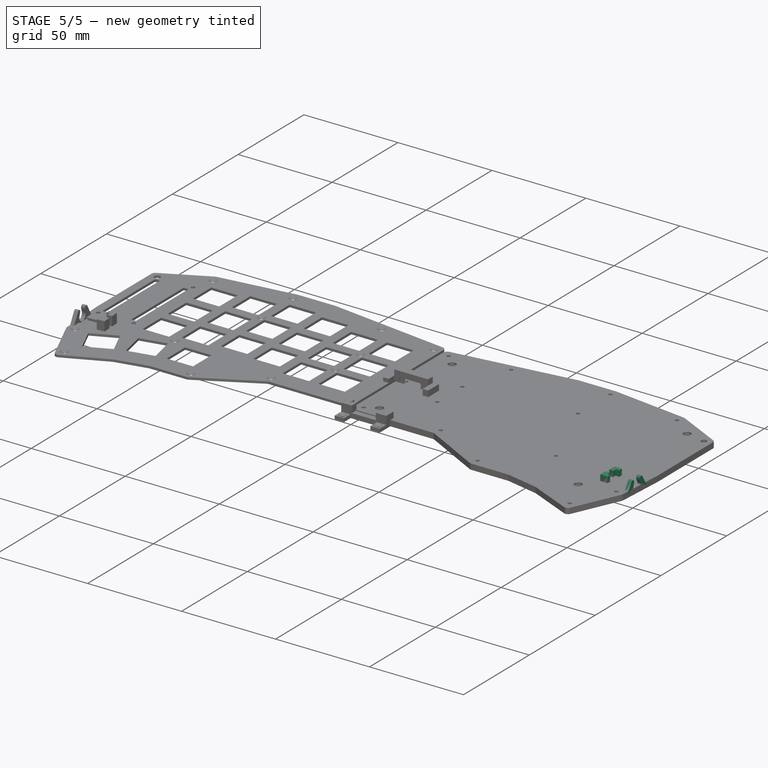
[diagram: stage 5 of 5 — iso view after this stage's code; geometry added in this stage tinted green]
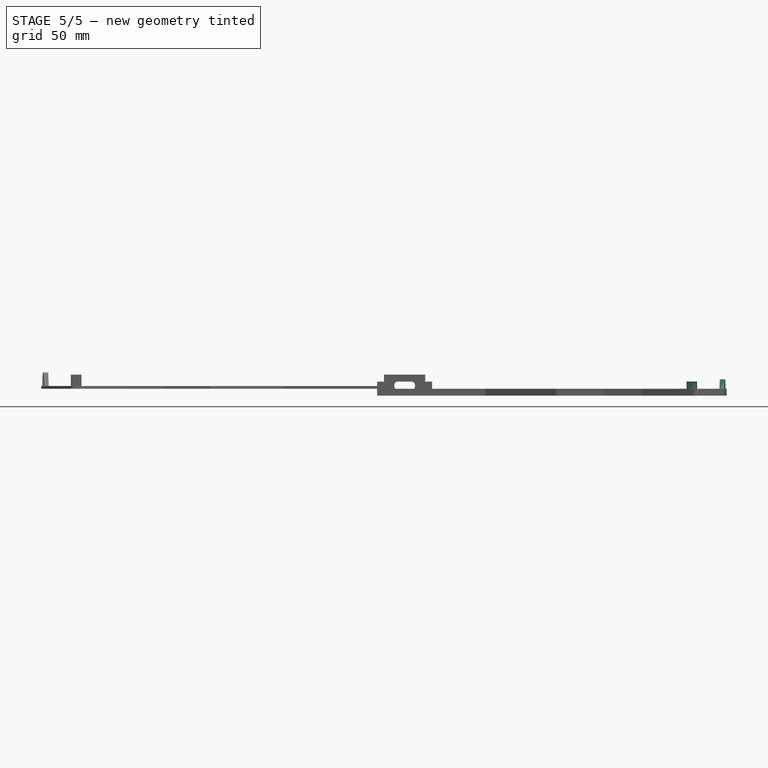
[diagram: stage 5 of 5 — front view after this stage's code; geometry added in this stage tinted green]
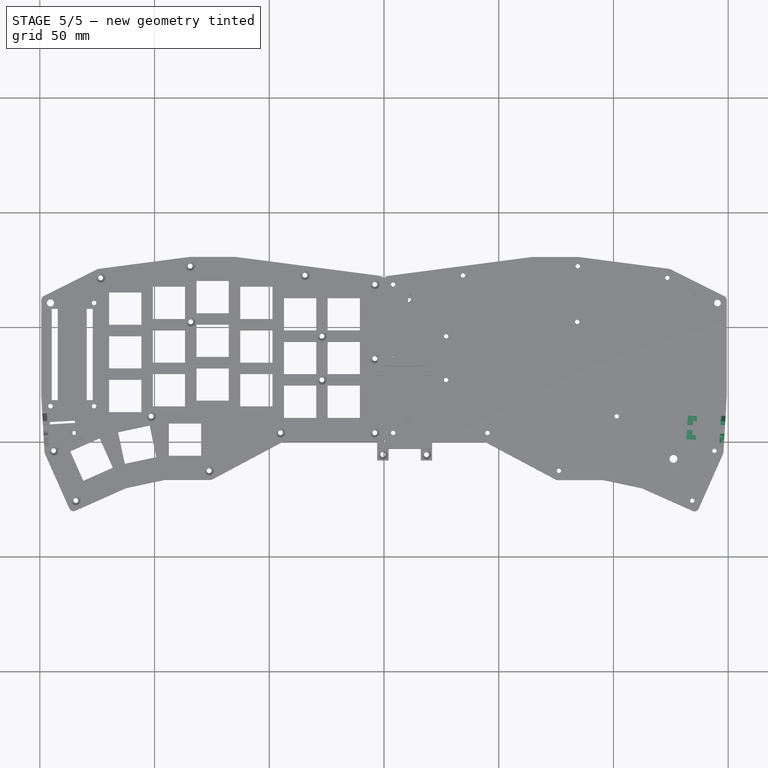
[diagram: stage 5 of 5 — top view after this stage's code; geometry added in this stage tinted green]
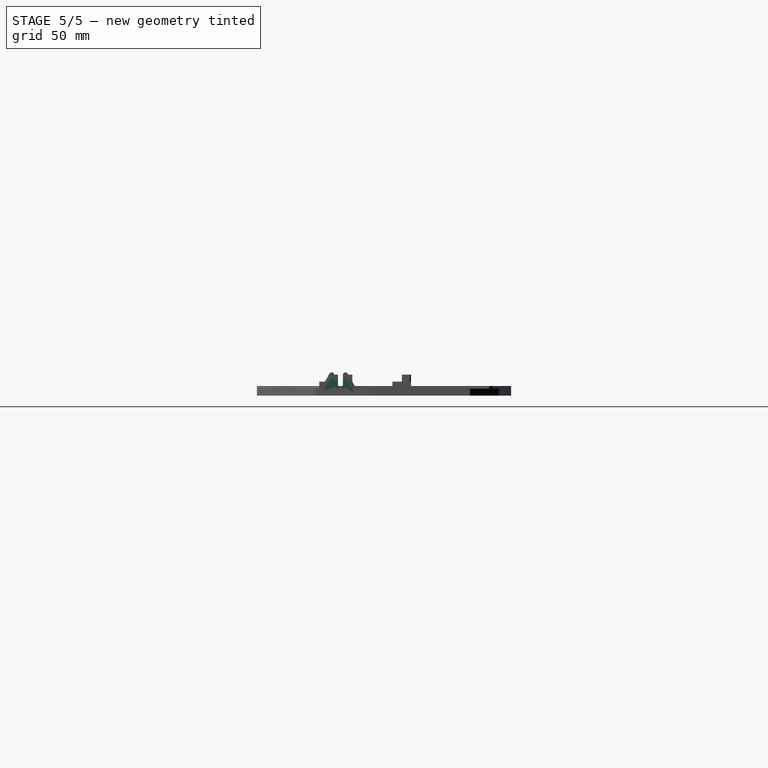
[diagram: stage 5 of 5 — right view after this stage's code; geometry added in this stage tinted green]
FEATURE [PartDesign::Chamfer] Chamfer
  Angle = 45
  Base = -> Pocket [Edge223,Edge224,Edge206,Edge196,Edge201,Edge154,Edge163,Edge172,Edge187,Edge177,Edge252,Edge241,Edge182,Edge246]
  BaseFeature = -> Pocket
  ChamferType = 0
  FlipDirection = false
  Refine = true
  Size = 1
  Size2 = 1
  SupportTransform = false
  Suppressed = false
  UseAllEdges = false
FEATURE [Sketcher::SketchObject] Sketch010
  ArcFitTolerance = 1e-06
  AttachmentSupport = -> [Chamfer]
  ExternalGeometry = -> [Chamfer]
  FullyConstrained = true
  MakeInternals = false
  MapMode = 5
  Placement = pos=(0,0,1.2) rot=(0,0,1;0rad)
  sketch-geometry (22):
    g0: LineSegment [constr] StartX=126.35 StartY=60.5971 StartZ=0 EndX=126.35 EndY=15.5971 EndZ=0
    g1: LineSegment [constr] StartX=126.35 StartY=15.5971 StartZ=0 EndX=145.35 EndY=15.5971 EndZ=0
    g2: LineSegment [constr] StartX=145.35 StartY=15.5971 StartZ=0 EndX=145.35 EndY=60.5971 EndZ=0
    g3: LineSegment [constr] StartX=145.35 StartY=60.5971 StartZ=0 EndX=126.35 EndY=60.5971 EndZ=0
    g4: Circle CenterX=126.35 CenterY=60.5971 CenterZ=0 NormalX=0 NormalY=0 NormalZ=1 AngleXU=0 Radius=0.975
    g5: Circle [constr] CenterX=145.35 CenterY=60.5971 CenterZ=0 NormalX=0 NormalY=0 NormalZ=1 AngleXU=0 Radius=0.975
    g6: Circle CenterX=145.35 CenterY=15.5971 CenterZ=0 NormalX=0 NormalY=0 NormalZ=1 AngleXU=0 Radius=0.975
    g7: Circle CenterX=126.35 CenterY=15.5971 CenterZ=0 NormalX=0 NormalY=0 NormalZ=1 AngleXU=0 Radius=0.975
    g8: LineSegment [constr] StartX=128.23 StartY=60.5971 StartZ=0 EndX=128.23 EndY=15.5971 EndZ=0
    g9: LineSegment [constr] StartX=143.47 StartY=15.5971 StartZ=0 EndX=143.47 EndY=60.5971 EndZ=0
    g10: LineSegment [constr] StartX=135.85 StartY=60.5971 StartZ=0 EndX=135.85 EndY=15.5971 EndZ=0
    g11: GeomPoint [constr] X=135.85 Y=60.5971 Z=0
    g12: LineSegment StartX=126.93 StartY=18.1971 StartZ=0 EndX=129.53 EndY=18.1971 EndZ=0
    g13: LineSegment StartX=129.53 StartY=18.1971 StartZ=0 EndX=129.53 EndY=57.9971 EndZ=0
    g14: LineSegment StartX=129.53 StartY=57.9971 StartZ=0 EndX=126.93 EndY=57.9971 EndZ=0
    g15: LineSegment StartX=126.93 StartY=57.9971 StartZ=0 EndX=126.93 EndY=18.1971 EndZ=0
    g16: GeomPoint [constr] X=128.23 Y=38.0971 Z=0
    g17: LineSegment StartX=144.77 StartY=18.1971 StartZ=0 EndX=144.77 EndY=57.9971 EndZ=0
    g18: LineSegment StartX=144.77 StartY=57.9971 StartZ=0 EndX=142.17 EndY=57.9971 EndZ=0
    g19: LineSegment StartX=142.17 StartY=57.9971 StartZ=0 EndX=142.17 EndY=18.1971 EndZ=0
    g20: LineSegment StartX=142.17 StartY=18.1971 StartZ=0 EndX=144.77 EndY=18.1971 EndZ=0
    g21: GeomPoint [constr] X=143.47 Y=38.0971 Z=0
  constraints (55):
    c: Coincident(g0,g1)
    c: Coincident(g1,g2)
    c: Coincident(g2,g3)
    c: Coincident(g3,g0)
    c: Vertical(g0)
    c: Vertical(g2)
    c: Horizontal(g1)
    c: Horizontal(g3)
    c: DistanceX(g3,g3) = 19
    c: DistanceY(g2,g2) = 45
    c: Coincident(g4,g0)
    c: Coincident(g5,g2)
    c: Coincident(g6,g1)
    c: Coincident(g7,g0)
    c: Diameter(g4) = 1.95
    c: Equal(g5,g4)
    c: Equal(g5,g6)
    c: Equal(g6,g7)
    c: Vertical(g8)
    c: Vertical(g9)
    c: DistanceX(g8,g9) = 15.24
    c: Symmetric(g3,g3,g10)
    c: Symmetric(g1,g1,g10)
    c: PointOnObject(g11,g10)
    c: Symmetric(g9,g8,g11)
    c: PointOnObject(g8,g3)
    c: PointOnObject(g9,g3)
    c: PointOnObject(g8,g1)
    c: PointOnObject(g9,g1)
    c: Coincident(g12,g13)
    c: Coincident(g13,g14)
    c: Coincident(g14,g15)
    c: Coincident(g15,g12)
    c: Horizontal(g12)
    c: Horizontal(g14)
    c: Vertical(g13)
    c: Vertical(g15)
    c: Symmetric(g14,g12,g16)
    c: PointOnObject(g16,g8)
    c: DistanceX(g12,g12) = 2.6
    c: DistanceY(g14,g0) = 2.6
    c: DistanceY(g0,g12) = 2.6
    c: Coincident(g17,g18)
    c: Coincident(g18,g19)
    c: Coincident(g19,g20)
    c: Coincident(g20,g17)
    c: Vertical(g17)
    c: Vertical(g19)
    c: Horizontal(g18)
    c: Horizontal(g20)
    c: Symmetric(g19,g17,g21)
    c: Symmetric(g9,g9,g21)
    c: Distance(g18,g18) = 2.6
    c: DistanceY(g18,g2) = 2.6
    c: Coincident(g2,g-5)
FEATURE [PartDesign::Pocket] Pocket003
  BaseFeature = -> Chamfer
  Direction = (0,0,-1)
  Length = 5
  Length2 = 5
  Profile = -> Sketch010
  ReferenceAxis = -> Sketch010 [N_Axis]
  Refine = true
  Suppressed = false
  Type = 0
FEATURE [Sketcher::SketchObject] Sketch011
  ArcFitTolerance = 1e-06
  AttachmentSupport = -> [Pocket003]
  ExternalGeometry = -> [Pocket003]
  FullyConstrained = false
  MakeInternals = false
  MapMode = 5
  Placement = pos=(0,0,1.2) rot=(0,0,1;0rad)
  sketch-geometry (4):
    g0: LineSegment StartX=148.701 StartY=8.49936 StartZ=0 EndX=134.325 EndY=9.32553 EndZ=0
    g1: LineSegment StartX=134.325 StartY=9.32553 StartZ=0 EndX=133.966 EndY=3.08582 EndZ=0
    g2: LineSegment StartX=133.966 StartY=3.08582 StartZ=0 EndX=148.342 EndY=2.25965 EndZ=0
    g3: LineSegment StartX=148.701 StartY=8.49936 StartZ=0 EndX=148.342 EndY=2.25965 EndZ=0
  constraints (11):
    c: Coincident(g1,g0)
    c: Coincident(g2,g1)
    c: PointOnObject(g2,g-3)
    c: Parallel(g0,g2)
    c: Perpendicular(g0,g1)
    c: Parallel(g1,g-3)
    c: Distance(g0,g0) = 14.4
    c: Distance(g1,g1) = 6.25
    c: PointOnObject(g0,g-3)
    c: Coincident(g3,g0)
    c: Coincident(g3,g2)
FEATURE [PartDesign::Pocket] Pocket004
  BaseFeature = -> Pocket003
  Direction = (0,0,-1)
  Length = 0.6
  Length2 = 5
  Profile = -> Sketch011
  ReferenceAxis = -> Sketch011 [N_Axis]
  Refine = true
  Suppressed = false
  Type = 0
FEATURE [Sketcher::SketchObject] Sketch012
  ArcFitTolerance = 1e-06
  AttachmentSupport = -> [Pocket004]
  ExternalGeometry = -> [Pocket004]
  FullyConstrained = true
  MakeInternals = false
  MapMode = 5
  Placement = pos=(0,0,0.6) rot=(0,0,1;0rad)
  sketch-geometry (8):
    g0: LineSegment StartX=134.325 StartY=9.32553 StartZ=0 EndX=136.022 EndY=9.22799 EndZ=0
    g1: LineSegment StartX=136.022 StartY=9.22799 StartZ=0 EndX=135.924 EndY=7.53079 EndZ=0
    g2: LineSegment StartX=135.924 StartY=7.53079 StartZ=0 EndX=134.227 EndY=7.62833 EndZ=0
    g3: LineSegment StartX=134.227 StartY=7.62833 StartZ=0 EndX=134.325 EndY=9.32553 EndZ=0
    g4: LineSegment StartX=133.966 StartY=3.08582 StartZ=0 EndX=145.347 EndY=2.43177 EndZ=0
    g5: LineSegment StartX=145.347 StartY=2.43177 StartZ=0 EndX=145.405 EndY=3.43012 EndZ=0
    g6: LineSegment StartX=145.405 StartY=3.43012 StartZ=0 EndX=134.023 EndY=4.08417 EndZ=0
    g7: LineSegment StartX=134.023 StartY=4.08417 StartZ=0 EndX=133.966 EndY=3.08582 EndZ=0
  constraints (23):
    c: Coincident(g0,g-4)
    c: PointOnObject(g0,g-3)
    c: Coincident(g1,g0)
    c: Coincident(g2,g1)
    c: PointOnObject(g2,g-4)
    c: Coincident(g3,g2)
    c: Coincident(g3,g0)
    c: Parallel(g2,g0)
    c: Parallel(g1,g3)
    c: Distance(g1,g1) = 1.7
    c: Distance(g2,g2) = 1.7
    c: Coincident(g5,g4)
    c: Coincident(g6,g5)
    c: Coincident(g7,g6)
    c: Coincident(g7,g4)
    c: Parallel(g7,g5)
    c: Parallel(g4,g6)
    c: Distance(g5,g5) = 1
    c: Parallel(g4,g-6)
    c: Parallel(g5,g-5)
    c: PointOnObject(g4,g-6)
    c: Distance(g4,g-6) = 3
    c: PointOnObject(g6,g-4)
FEATURE [PartDesign::Pocket] Pocket005
  BaseFeature = -> Pocket004
  Direction = (0,0,-1)
  Length = 5
  Length2 = 5
  Profile = -> Sketch012
  ReferenceAxis = -> Sketch012 [N_Axis]
  Refine = true
  Suppressed = false
  Type = 0
FEATURE [Sketcher::SketchObject] Sketch013
  ArcFitTolerance = 1e-06
  AttachmentSupport = -> [Pocket005]
  ExternalGeometry = -> [Pocket005]
  FullyConstrained = true
  MakeInternals = false
  MapMode = 5
  Placement = pos=(147.725,-8.48936,0) rot=(0.599441,0.565982,0.565982;2.06158rad)
  sketch-geometry (14):
    g0: ArcOfCircle CenterX=13.8917 CenterY=3.35 CenterZ=0 NormalX=0 NormalY=0 NormalZ=1 AngleXU=0 Radius=2.65 StartAngle=2.0944 EndAngle=7.33038
    g1: LineSegment StartX=16.7785 StartY=8.35 StartZ=0 EndX=20.9066 EndY=1.2 EndZ=0
    g2: LineSegment StartX=11.005 StartY=8.35 StartZ=0 EndX=6.87694 EndY=1.2 EndZ=0
    g3: LineSegment [constr] StartX=11.005 StartY=8.35 StartZ=0 EndX=13.8917 EndY=3.35 EndZ=0
    g4: LineSegment [constr] StartX=13.8917 StartY=3.35 StartZ=0 EndX=16.7785 EndY=8.35 EndZ=0
    g5: LineSegment [constr] StartX=13.8917 StartY=8.35 StartZ=0 EndX=13.8917 EndY=3.35 EndZ=0
    g6: LineSegment [constr] StartX=13.8917 StartY=3.35 StartZ=0 EndX=13.8917 EndY=0.6 EndZ=0
    g7: LineSegment StartX=6.87694 StartY=1.2 StartZ=0 EndX=6.87694 EndY=0 EndZ=0
    g8: LineSegment StartX=6.87694 StartY=0 StartZ=0 EndX=20.9066 EndY=0 EndZ=0
    g9: LineSegment StartX=20.9066 StartY=0 StartZ=0 EndX=20.9066 EndY=1.2 EndZ=0
    g10: LineSegment StartX=11.005 StartY=8.35 StartZ=0 EndX=12.5667 EndY=5.64497 EndZ=0
    g11: LineSegment StartX=16.7785 StartY=8.35 StartZ=0 EndX=15.2167 EndY=5.64497 EndZ=0
    g12: LineSegment [constr] StartX=11.005 StartY=8.35 StartZ=0 EndX=16.7785 EndY=8.35 EndZ=0
    g13: GeomPoint X=13.8917 Y=0.7 Z=0
  constraints (38):
    c: Diameter(g0) = 5.3
    c: PointOnObject(g2,g-4)
    c: PointOnObject(g1,g-5)
    c: Angle(g2,g1) = 1.0472
    c: Coincident(g3,g0)
    c: Coincident(g4,g3)
    c: Angle(g4,g3) = 1.0472
    c: Symmetric(g2,g1,g5)
    c: Coincident(g5,g0)
    c: Vertical(g5)
    c: Coincident(g6,g0)
    c: Vertical(g6)
    c: Symmetric(g-3,g-3,g6)
    c: DistanceY(g5,g5) = 5
    c: Parallel(g2,g4)
    c: Coincident(g7,g2)
    c: PointOnObject(g7,g-1)
    c: Vertical(g7)
    c: Coincident(g8,g7)
    c: PointOnObject(g8,g-1)
    c: Coincident(g9,g8)
    c: Coincident(g9,g1)
    c: Vertical(g9)
    c: Coincident(g10,g2)
    c: Coincident(g11,g1)
    c: PointOnObject(g11,g0)
    c: Parallel(g10,g3)
    c: Parallel(g11,g4)
    c: PointOnObject(g0,g4)
    c: Coincident(g0,g10)
    c: Coincident(g2,g3)
    c: Coincident(g4,g1)
    c: Coincident(g12,g2)
    c: Coincident(g12,g1)
    c: Horizontal(g12)
    c: PointOnObject(g13,g0)
    c: PointOnObject(g13,g6)
    c: DistanceY(g6,g13) = 0.1
FEATURE [PartDesign::Pad] Pad007
  BaseFeature = -> Pocket005
  Direction = (0.998353,-0.0573728,0)
  Length = 2
  Length2 = 10
  Profile = -> Sketch013
  ReferenceAxis = -> Sketch013 [N_Axis]
  Refine = true
  Reversed = true
  Suppressed = false
  Type = 0
FEATURE [PartDesign::Fillet] Fillet004
  Base = -> Pad007 [Edge438,Edge440]
  BaseFeature = -> Pad007
  Radius = 3
  Refine = true
  SupportTransform = false
  Suppressed = false
  UseAllEdges = false
FEATURE [PartDesign::Fillet] Fillet005
  Base = -> Fillet004 [Edge15,Edge169]
  BaseFeature = -> Fillet004
  Radius = 1
  Refine = true
  SupportTransform = false
  Suppressed = false
  UseAllEdges = false
FEATURE [Sketcher::SketchObject] Sketch014
  ArcFitTolerance = 1e-06
  AttachmentSupport = -> [Fillet005]
  ExternalGeometry = -> [Fillet005]
  FullyConstrained = true
  MakeInternals = false
  MapMode = 5
  Placement = pos=(0,0,1.2) rot=(0,0,1;0rad)
  sketch-geometry (12):
    g0: LineSegment StartX=134.325 StartY=9.32553 StartZ=0 EndX=136.325 EndY=9.21059 EndZ=0
    g1: LineSegment StartX=136.325 StartY=9.21059 StartZ=0 EndX=136.44 EndY=11.2106 EndZ=0
    g2: LineSegment StartX=136.44 StartY=11.2106 StartZ=0 EndX=132.44 EndY=11.4405 EndZ=0
    g3: LineSegment StartX=132.44 StartY=11.4405 StartZ=0 EndX=132.21 EndY=7.44046 EndZ=0
    g4: LineSegment StartX=132.21 StartY=7.44046 StartZ=0 EndX=134.21 EndY=7.32553 EndZ=0
    g5: LineSegment StartX=134.21 StartY=7.32553 StartZ=0 EndX=134.325 EndY=9.32553 EndZ=0
    g6: LineSegment StartX=133.966 StartY=3.08582 StartZ=0 EndX=134.081 EndY=5.08582 EndZ=0
    g7: LineSegment StartX=134.081 StartY=5.08582 StartZ=0 EndX=132.081 EndY=5.20076 EndZ=0
    g8: LineSegment StartX=132.081 StartY=5.20076 StartZ=0 EndX=131.851 EndY=1.20076 EndZ=0
    g9: LineSegment StartX=131.851 StartY=1.20076 StartZ=0 EndX=135.851 EndY=0.970885 EndZ=0
    g10: LineSegment StartX=135.851 StartY=0.970885 StartZ=0 EndX=135.966 EndY=2.97089 EndZ=0
    g11: LineSegment StartX=135.966 StartY=2.97089 StartZ=0 EndX=133.966 EndY=3.08582 EndZ=0
  constraints (34):
    c: Coincident(g0,g-5)
    c: PointOnObject(g0,g-3)
    c: Coincident(g1,g0)
    c: Coincident(g2,g1)
    c: Coincident(g3,g2)
    c: Coincident(g4,g3)
    c: PointOnObject(g4,g-5)
    c: Coincident(g5,g4)
    c: Coincident(g5,g0)
    c: Coincident(g6,g-5)
    c: PointOnObject(g6,g-5)
    c: Coincident(g7,g6)
    c: Coincident(g8,g7)
    c: Coincident(g9,g8)
    c: Coincident(g10,g9)
    c: PointOnObject(g10,g-4)
    c: Coincident(g11,g10)
    c: Coincident(g11,g6)
    c: Parallel(g6,g8)
    c: Parallel(g11,g9)
    c: Parallel(g10,g8)
    c: Parallel(g7,g9)
    c: Parallel(g4,g2)
    c: Parallel(g0,g2)
    c: Parallel(g1,g3)
    c: Parallel(g5,g3)
    c: DistanceX(g4,g4) = 2
    c: Equal(g4,g5)
    c: Equal(g5,g0)
    c: Equal(g0,g1)
    c: Equal(g7,g4)
    c: Equal(g7,g6)
    c: Equal(g6,g11)
    c: Equal(g11,g10)
FEATURE [PartDesign::Pad] Pad008
  BaseFeature = -> Fillet005
  Direction = (0,0,1)
  Length = 4.45
  Length2 = 10
  Profile = -> Sketch014
  ReferenceAxis = -> Sketch014 [N_Axis]
  Refine = true
  Suppressed = false
  Type = 0
FEATURE [Sketcher::SketchObject] Sketch015
  ArcFitTolerance = 1e-06
  AttachmentSupport = -> [Pad008]
  ExternalGeometry = -> [Pad008]
  FullyConstrained = true
  MakeInternals = false
  MapMode = 5
  Placement = pos=(0,0,5.65) rot=(0,0,1;0rad)
  sketch-geometry (12):
    g0: LineSegment StartX=132.081 StartY=5.20076 StartZ=0 EndX=131.851 EndY=1.20076 EndZ=0
    g1: LineSegment StartX=131.851 StartY=1.20076 StartZ=0 EndX=135.851 EndY=0.970885 EndZ=0
    g2: LineSegment StartX=135.851 StartY=0.970885 StartZ=0 EndX=135.966 EndY=2.97089 EndZ=0
    g3: LineSegment StartX=132.081 StartY=5.20076 StartZ=0 EndX=134.477 EndY=5.06306 EndZ=0
    g4: LineSegment StartX=134.477 StartY=5.06306 StartZ=0 EndX=134.362 EndY=3.06306 EndZ=0
    g5: LineSegment StartX=134.362 StartY=3.06306 StartZ=0 EndX=135.966 EndY=2.97089 EndZ=0
    g6: LineSegment StartX=132.21 StartY=7.44046 StartZ=0 EndX=134.606 EndY=7.30277 EndZ=0
    g7: LineSegment StartX=134.606 StartY=7.30277 StartZ=0 EndX=134.721 EndY=9.30277 EndZ=0
    g8: LineSegment StartX=134.721 StartY=9.30277 StartZ=0 EndX=136.325 EndY=9.21059 EndZ=0
    g9: LineSegment StartX=136.325 StartY=9.21059 StartZ=0 EndX=136.44 EndY=11.2106 EndZ=0
    g10: LineSegment StartX=136.44 StartY=11.2106 StartZ=0 EndX=132.44 EndY=11.4405 EndZ=0
    g11: LineSegment StartX=132.44 StartY=11.4405 StartZ=0 EndX=132.21 EndY=7.44046 EndZ=0
  constraints (28):
    c: Coincident(g0,g-9)
    c: Coincident(g0,g-10)
    c: Coincident(g1,g-10)
    c: Coincident(g1,g-10)
    c: Coincident(g2,g-10)
    c: Coincident(g2,g-3)
    c: Coincident(g3,g0)
    c: Coincident(g4,g3)
    c: PointOnObject(g4,g-3)
    c: Coincident(g5,g4)
    c: Coincident(g5,g2)
    c: PointOnObject(g-4,g3)
    c: Parallel(g4,g-4)
    c: Coincident(g6,g-7)
    c: Coincident(g7,g6)
    c: PointOnObject(g7,g-6)
    c: Coincident(g8,g7)
    c: Coincident(g8,g-6)
    c: Coincident(g9,g8)
    c: Coincident(g9,g-8)
    c: Coincident(g10,g9)
    c: Coincident(g10,g-8)
    c: Coincident(g11,g10)
    c: Coincident(g11,g6)
    c: Parallel(g7,g-5)
    c: PointOnObject(g-5,g6)
    c: Equal(g6,g3)
    c: Distance(g3,g3) = 2.4
FEATURE [PartDesign::Pad] Pad009
  BaseFeature = -> Pad008
  Direction = (0,0,1)
  Length = 0.5
  Length2 = 10
  Profile = -> Sketch015
  ReferenceAxis = -> Sketch015 [N_Axis]
  Refine = true
  Suppressed = false
  Type = 0
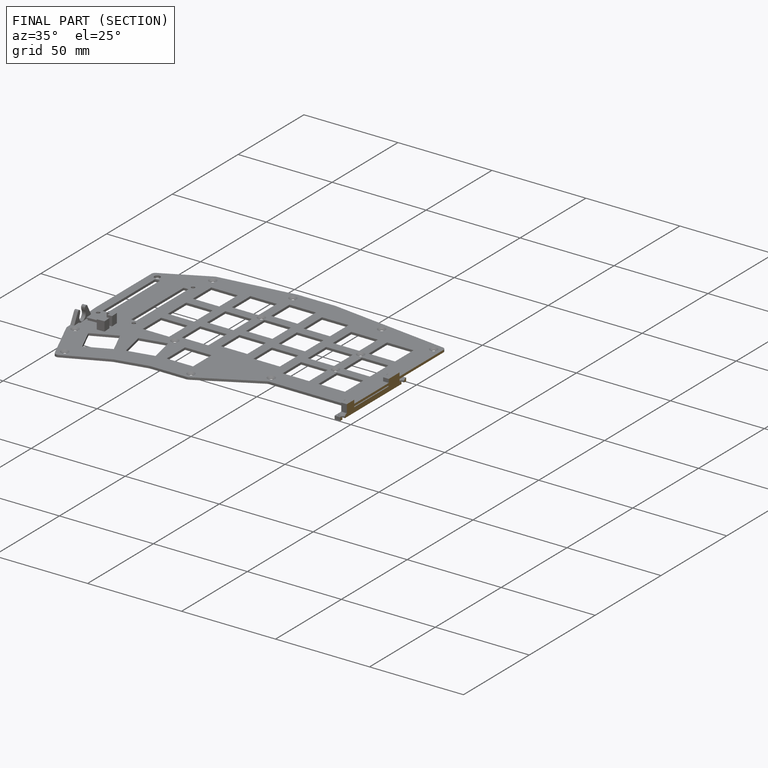
[diagram: finished part — half-section view (interior)]
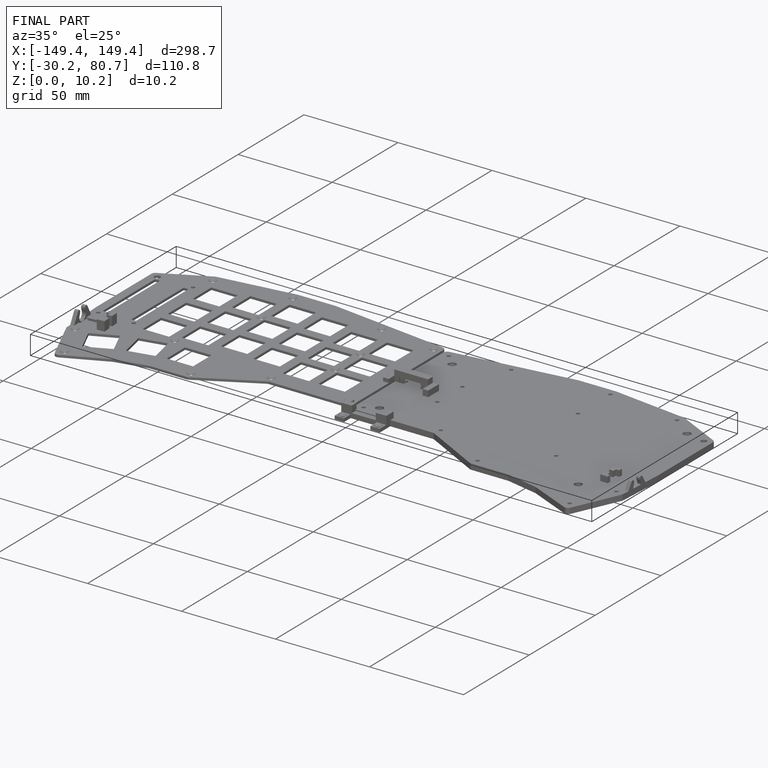
[diagram: finished part — iso view with bounding-box wireframe]
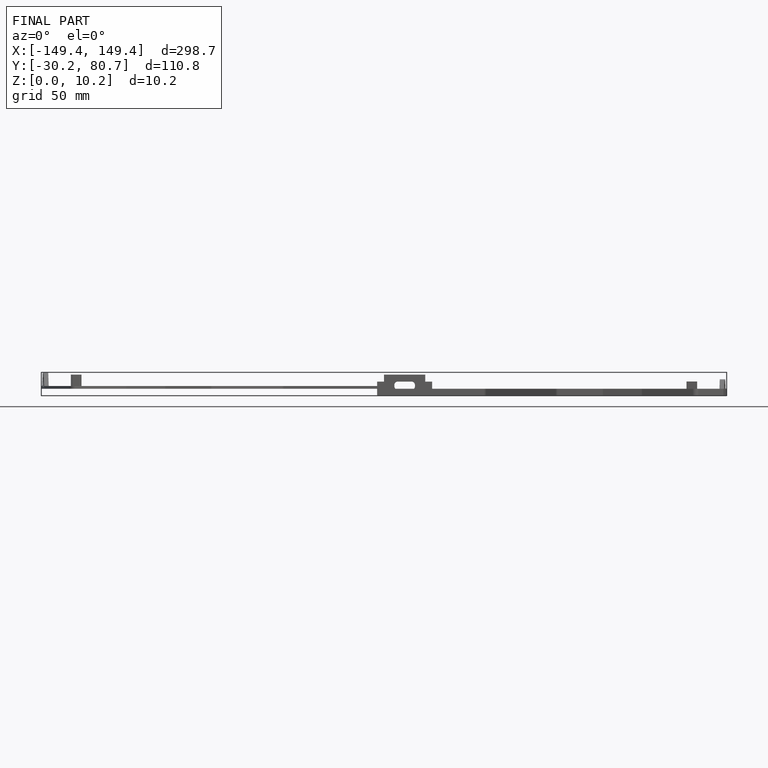
[diagram: finished part — front view with bounding-box wireframe]
